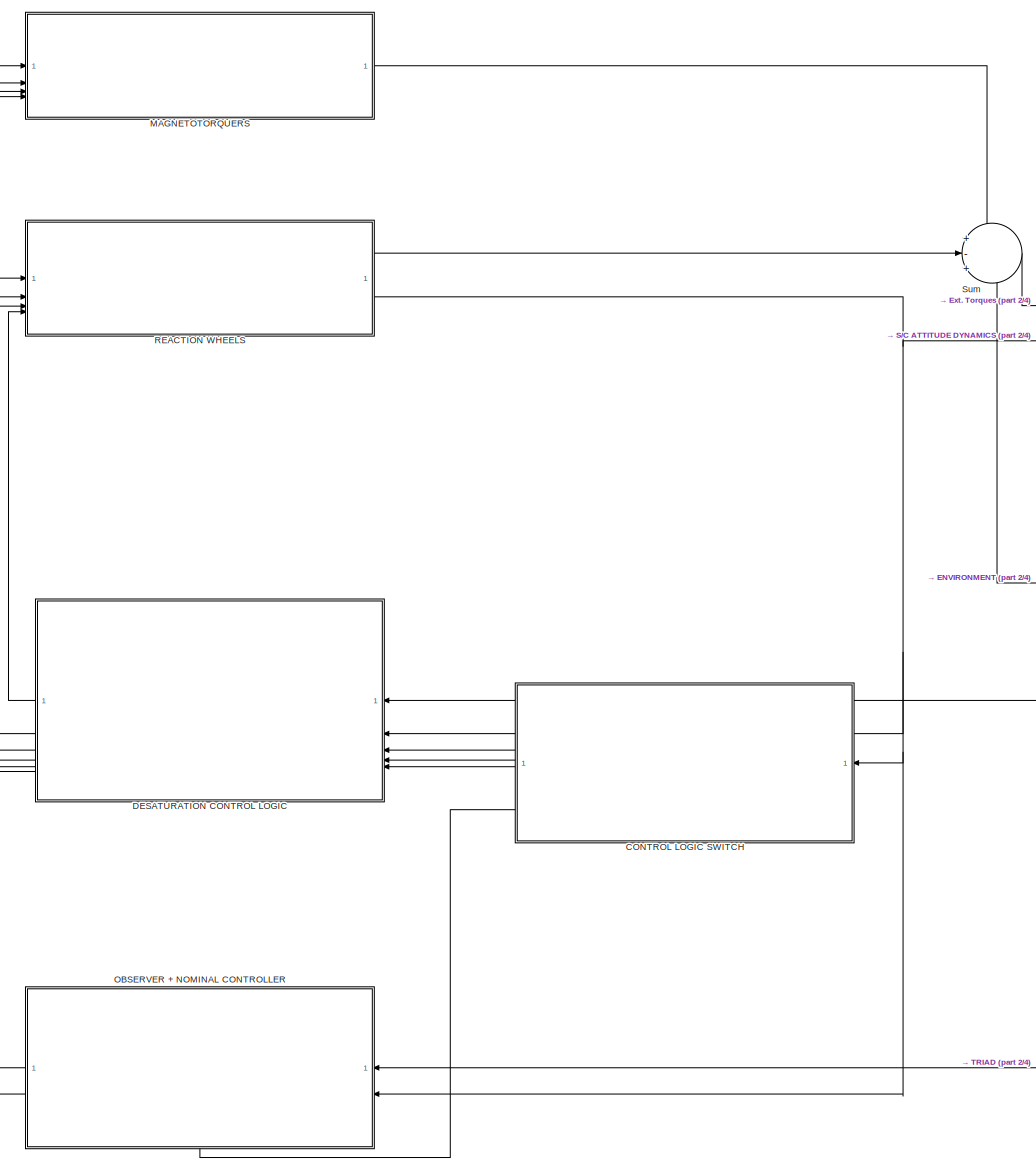
[diagram: root canvas - part 1/4, left side, full height]
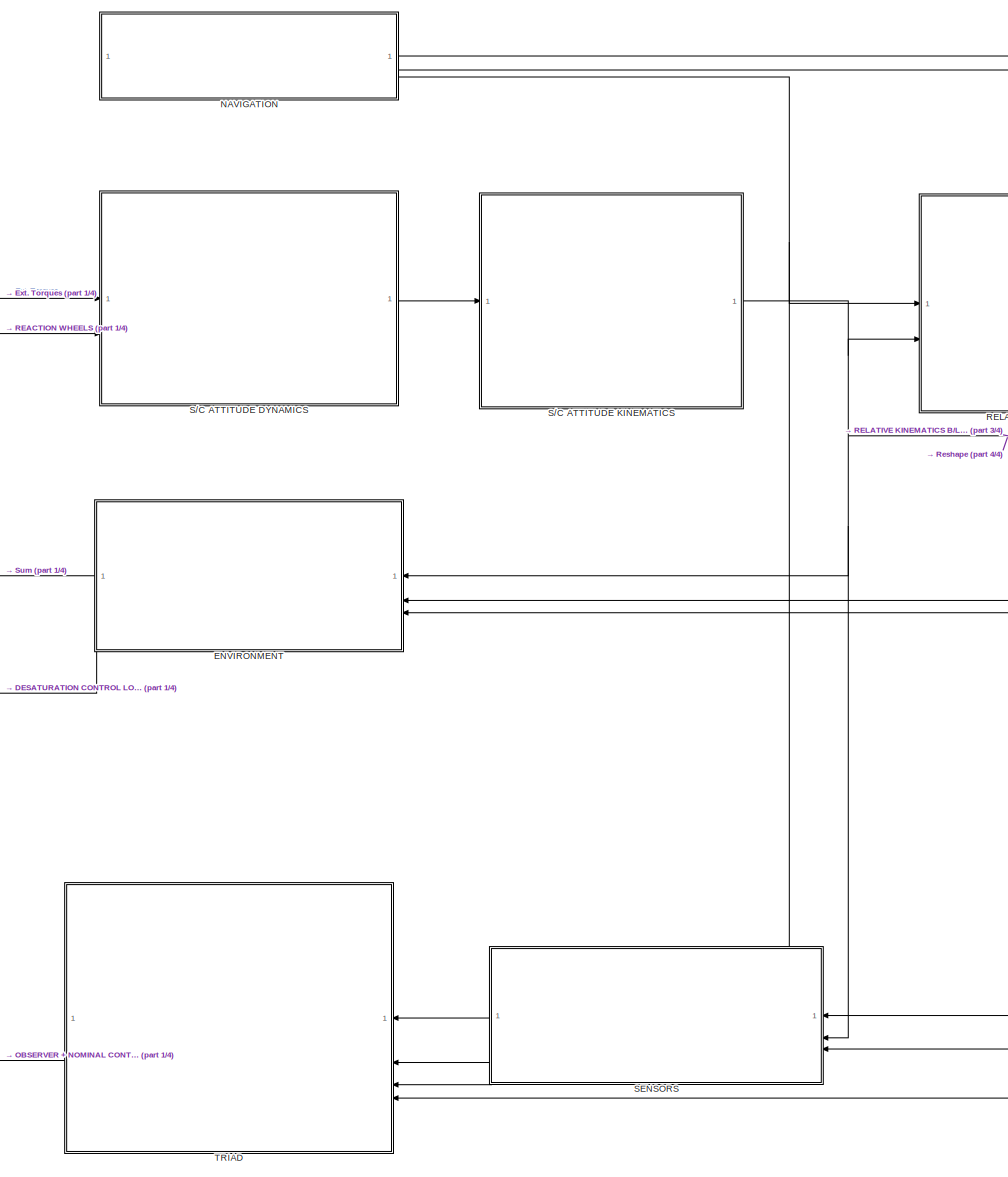
[diagram: root canvas - part 2/4, center side, full height]
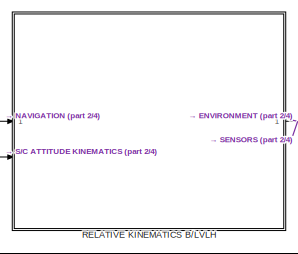
[diagram: root canvas - part 3/4, top right region]
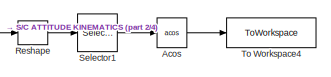
[diagram: root canvas - part 4/4, middle right region]
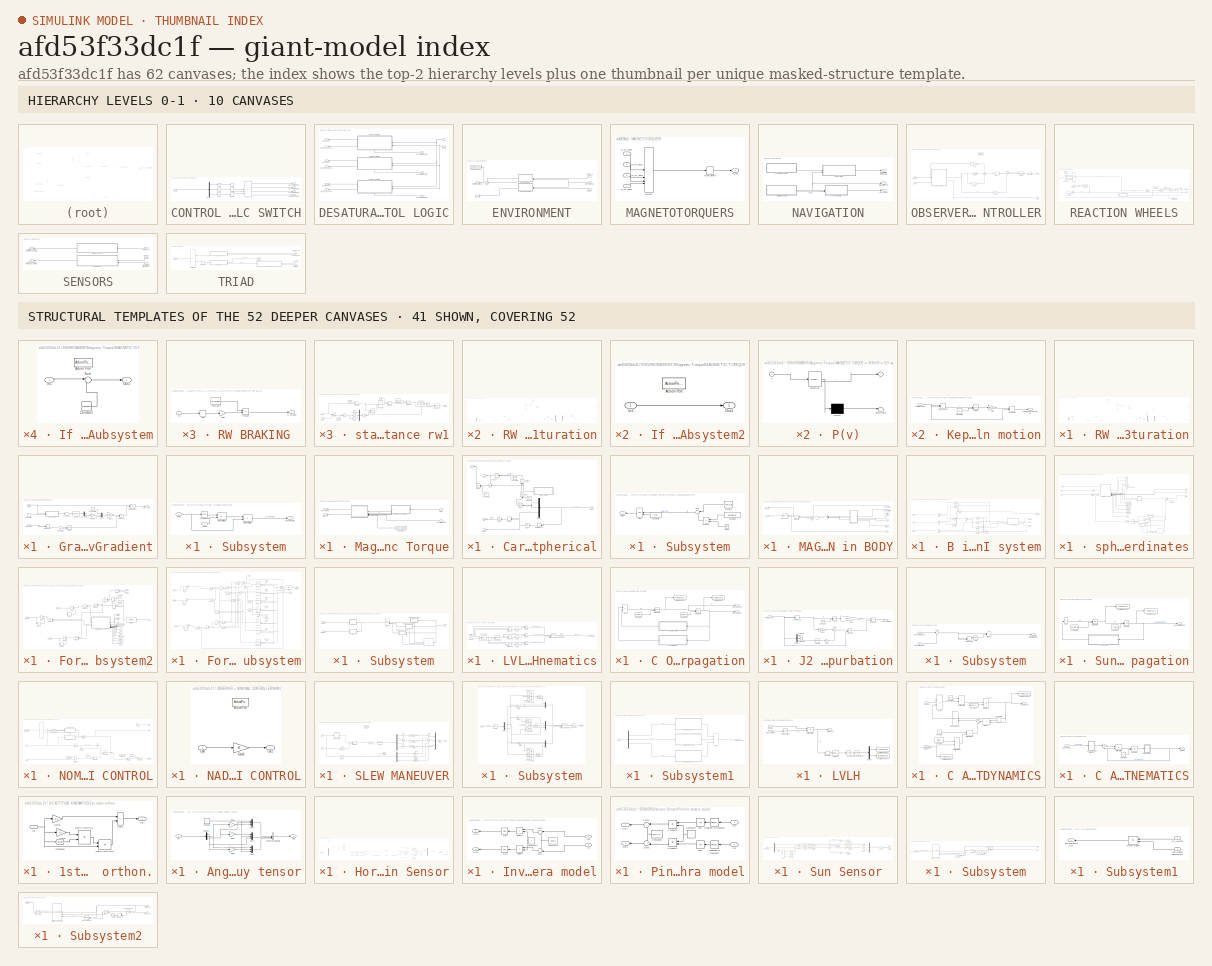
[diagram: thumbnail index - top-2 hierarchy levels (10 canvases) + 41 structural-template representatives of the remaining 52 canvases]
MODEL slx_afd53f33dc1f
KIND model
CONFIG AbsTol = auto
CONFIG EnableMultiTasking = off
CONFIG FixedStep = 0.1
CONFIG MaxStep = auto
CONFIG MinStep = auto
CONFIG RelTol = 1e-3
CONFIG SampleTimeConstraint = Unconstrained
CONFIG SolverName = ode4
CONFIG StartTime = 0.0
CONFIG StopTime = 50
BLOCK [Trigonometry] Acos
  Operator = acos
BLOCK [SubSystem] CONTROL LOGIC SWITCH
BLOCK [Abs] CONTROL LOGIC SWITCH/Abs
  SaturateOnIntegerOverflow = off
BLOCK [Abs] CONTROL LOGIC SWITCH/Abs1
  SaturateOnIntegerOverflow = off
BLOCK [Abs] CONTROL LOGIC SWITCH/Abs2
  SaturateOnIntegerOverflow = off
BLOCK [Outport] CONTROL LOGIC SWITCH/Activate Observer
  Port = 4
BLOCK [Demux] CONTROL LOGIC SWITCH/Demux
  Outputs = 3
BLOCK [Outport] CONTROL LOGIC SWITCH/Desaturation RW 1
BLOCK [Outport] CONTROL LOGIC SWITCH/Desaturation RW 2
  Port = 2
BLOCK [Outport] CONTROL LOGIC SWITCH/Desaturation RW 3
  Port = 3
BLOCK [If] CONTROL LOGIC SWITCH/If
  ElseIfExpressions = u2== 1,u3==1
  IfExpression = u1 == 1
  NumInputs = 3
BLOCK [Relay] CONTROL LOGIC SWITCH/Relay
  OffSwitchValue = 100
  OnSwitchValue = 500
BLOCK [Relay] CONTROL LOGIC SWITCH/Relay1
  OffSwitchValue = 100
  OnSwitchValue = 500
BLOCK [Relay] CONTROL LOGIC SWITCH/Relay2
  OffSwitchValue = 100
  OnSwitchValue = 500
BLOCK [Inport] CONTROL LOGIC SWITCH/om_rw
BLOCK [SubSystem] DESATURATION CONTROL LOGIC
  NameLocation = top
BLOCK [Inport] DESATURATION CONTROL LOGIC/B
  NameLocation = top
BLOCK [Inport] DESATURATION CONTROL LOGIC/Desaturation RW 1
  NameLocation = top
  Port = 3
BLOCK [Inport] DESATURATION CONTROL LOGIC/Desaturation RW 2
  NameLocation = top
  Port = 4
BLOCK [Inport] DESATURATION CONTROL LOGIC/Desaturation RW 3
  NameLocation = top
  Port = 5
BLOCK [Outport] DESATURATION CONTROL LOGIC/M_mt_des1
  NameLocation = top
  Port = 6
BLOCK [Outport] DESATURATION CONTROL LOGIC/M_mt_des2
  NameLocation = top
  Port = 5
BLOCK [Outport] DESATURATION CONTROL LOGIC/M_mt_des3
  NameLocation = top
  Port = 4
BLOCK [SubSystem] DESATURATION CONTROL LOGIC/RW 1 Desaturation
  NameLocation = top
BLOCK [ActionPort] DESATURATION CONTROL LOGIC/RW 1 Desaturation/Action Port
  ActionPortLabel = if(u1 == 1)
BLOCK [Inport] DESATURATION CONTROL LOGIC/RW 1 Desaturation/B
BLOCK [Constant] DESATURATION CONTROL LOGIC/RW 1 Desaturation/Constant1
  Value = [1/I_r;1/I_r;1/I_r]
BLOCK [Constant] DESATURATION CONTROL LOGIC/RW 1 Desaturation/Constant3
  Value = pinv_R_yz
BLOCK [Constant] DESATURATION CONTROL LOGIC/RW 1 Desaturation/Constant4
  Value = R_x
BLOCK [Reference] DESATURATION CONTROL LOGIC/RW 1 Desaturation/Cross Product1  REF=matrix_library/Cross Product
  LibrarySourceBlock = simulink/Matrix\nOperations/Cross Product
  SourceBlock = matrix_library/Cross Product
  SourceType = CrossProduct
BLOCK [Reference] DESATURATION CONTROL LOGIC/RW 1 Desaturation/Cross Product2  REF=matrix_library/Cross Product
  LibrarySourceBlock = simulink/Matrix\nOperations/Cross Product
  SourceBlock = matrix_library/Cross Product
  SourceType = CrossProduct
BLOCK [Demux] DESATURATION CONTROL LOGIC/RW 1 Desaturation/Demux
  Outputs = 3
BLOCK [Demux] DESATURATION CONTROL LOGIC/RW 1 Desaturation/Demux1
  Outputs = 2
BLOCK [Product] DESATURATION CONTROL LOGIC/RW 1 Desaturation/Divide
  Inputs = */
BLOCK [DotProduct] DESATURATION CONTROL LOGIC/RW 1 Desaturation/Dot Product
  OutDataTypeStr = Inherit: Inherit via internal rule
BLOCK [Gain] DESATURATION CONTROL LOGIC/RW 1 Desaturation/Gain
  Gain = -1
BLOCK [Outport] DESATURATION CONTROL LOGIC/RW 1 Desaturation/M_mt
BLOCK [Product] DESATURATION CONTROL LOGIC/RW 1 Desaturation/Matrix Multiply
  Multiplication = Matrix(*)
BLOCK [Product] DESATURATION CONTROL LOGIC/RW 1 Desaturation/Matrix Multiply1
  Multiplication = Matrix(*)
BLOCK [Mux] DESATURATION CONTROL LOGIC/RW 1 Desaturation/Mux
  DisplayOption = bar
  Inputs = 3
BLOCK [Product] DESATURATION CONTROL LOGIC/RW 1 Desaturation/Product
BLOCK [SubSystem] DESATURATION CONTROL LOGIC/RW 1 Desaturation/RW BRAKING
BLOCK [Constant] DESATURATION CONTROL LOGIC/RW 1 Desaturation/RW BRAKING/Constant8
  Value = M_brake
BLOCK [Gain] DESATURATION CONTROL LOGIC/RW 1 Desaturation/RW BRAKING/Gain1
  Gain = -1
BLOCK [Inport] DESATURATION CONTROL LOGIC/RW 1 Desaturation/RW BRAKING/In1
BLOCK [Outport] DESATURATION CONTROL LOGIC/RW 1 Desaturation/RW BRAKING/M_braking
BLOCK [Product] DESATURATION CONTROL LOGIC/RW 1 Desaturation/RW BRAKING/Product
BLOCK [Signum] DESATURATION CONTROL LOGIC/RW 1 Desaturation/RW BRAKING/Sign
BLOCK [Sum] DESATURATION CONTROL LOGIC/RW 1 Desaturation/Sum2
  Inputs = ++|
BLOCK [Terminator] DESATURATION CONTROL LOGIC/RW 1 Desaturation/Terminator
BLOCK [Terminator] DESATURATION CONTROL LOGIC/RW 1 Desaturation/Terminator1
BLOCK [Inport] DESATURATION CONTROL LOGIC/RW 1 Desaturation/om_rw
  Port = 2
BLOCK [Outport] DESATURATION CONTROL LOGIC/RW 1 Desaturation/om_rw_dot
  Port = 2
BLOCK [SubSystem] DESATURATION CONTROL LOGIC/RW 2 Desaturation
  NameLocation = top
BLOCK [ActionPort] DESATURATION CONTROL LOGIC/RW 2 Desaturation/Action Port
  ActionPortLabel = elseif(u2== 1)
BLOCK [Inport] DESATURATION CONTROL LOGIC/RW 2 Desaturation/B
BLOCK [Constant] DESATURATION CONTROL LOGIC/RW 2 Desaturation/Constant1
  Value = [1/I_r;1/I_r;1/I_r]
BLOCK [Constant] DESATURATION CONTROL LOGIC/RW 2 Desaturation/Constant3
  Value = pinv_R_xz
BLOCK [Constant] DESATURATION CONTROL LOGIC/RW 2 Desaturation/Constant4
  Value = R_y
BLOCK [Reference] DESATURATION CONTROL LOGIC/RW 2 Desaturation/Cross Product1  REF=matrix_library/Cross Product
  LibrarySourceBlock = simulink/Matrix\nOperations/Cross Product
  SourceBlock = matrix_library/Cross Product
  SourceType = CrossProduct
BLOCK [Reference] DESATURATION CONTROL LOGIC/RW 2 Desaturation/Cross Product2  REF=matrix_library/Cross Product
  LibrarySourceBlock = simulink/Matrix\nOperations/Cross Product
  SourceBlock = matrix_library/Cross Product
  SourceType = CrossProduct
BLOCK [Demux] DESATURATION CONTROL LOGIC/RW 2 Desaturation/Demux
  Outputs = 3
BLOCK [Demux] DESATURATION CONTROL LOGIC/RW 2 Desaturation/Demux1
  Outputs = 2
BLOCK [Product] DESATURATION CONTROL LOGIC/RW 2 Desaturation/Divide
  Inputs = */
BLOCK [DotProduct] DESATURATION CONTROL LOGIC/RW 2 Desaturation/Dot Product
  OutDataTypeStr = Inherit: Inherit via internal rule
BLOCK [Gain] DESATURATION CONTROL LOGIC/RW 2 Desaturation/Gain
  Gain = -1
BLOCK [Outport] DESATURATION CONTROL LOGIC/RW 2 Desaturation/M_mt
BLOCK [Product] DESATURATION CONTROL LOGIC/RW 2 Desaturation/Matrix Multiply
  Multiplication = Matrix(*)
BLOCK [Product] DESATURATION CONTROL LOGIC/RW 2 Desaturation/Matrix Multiply1
  Multiplication = Matrix(*)
BLOCK [Mux] DESATURATION CONTROL LOGIC/RW 2 Desaturation/Mux
  DisplayOption = bar
  Inputs = 3
BLOCK [Product] DESATURATION CONTROL LOGIC/RW 2 Desaturation/Product
BLOCK [SubSystem] DESATURATION CONTROL LOGIC/RW 2 Desaturation/RW BRAKING
BLOCK [Constant] DESATURATION CONTROL LOGIC/RW 2 Desaturation/RW BRAKING/Constant8
  Value = M_brake
BLOCK [Gain] DESATURATION CONTROL LOGIC/RW 2 Desaturation/RW BRAKING/Gain1
  Gain = -1
BLOCK [Inport] DESATURATION CONTROL LOGIC/RW 2 Desaturation/RW BRAKING/In1
BLOCK [Outport] DESATURATION CONTROL LOGIC/RW 2 Desaturation/RW BRAKING/M_braking
BLOCK [Product] DESATURATION CONTROL LOGIC/RW 2 Desaturation/RW BRAKING/Product
BLOCK [Signum] DESATURATION CONTROL LOGIC/RW 2 Desaturation/RW BRAKING/Sign
BLOCK [Sum] DESATURATION CONTROL LOGIC/RW 2 Desaturation/Sum2
  Inputs = ++|
BLOCK [Terminator] DESATURATION CONTROL LOGIC/RW 2 Desaturation/Terminator
BLOCK [Terminator] DESATURATION CONTROL LOGIC/RW 2 Desaturation/Terminator1
BLOCK [Inport] DESATURATION CONTROL LOGIC/RW 2 Desaturation/om_rw
  Port = 2
BLOCK [Outport] DESATURATION CONTROL LOGIC/RW 2 Desaturation/om_rw_dot
  Port = 2
BLOCK [SubSystem] DESATURATION CONTROL LOGIC/RW 3 Desaturation
  NameLocation = top
BLOCK [ActionPort] DESATURATION CONTROL LOGIC/RW 3 Desaturation/Action Port
  ActionPortLabel = elseif(u3==1)
BLOCK [Inport] DESATURATION CONTROL LOGIC/RW 3 Desaturation/B
BLOCK [Constant] DESATURATION CONTROL LOGIC/RW 3 Desaturation/Constant1
  Value = [1/I_r;1/I_r;1/I_r]
BLOCK [Constant] DESATURATION CONTROL LOGIC/RW 3 Desaturation/Constant3
  Value = pinv_R_xy
BLOCK [Constant] DESATURATION CONTROL LOGIC/RW 3 Desaturation/Constant4
  Value = R_z
BLOCK [Reference] DESATURATION CONTROL LOGIC/RW 3 Desaturation/Cross Product1  REF=matrix_library/Cross Product
  LibrarySourceBlock = simulink/Matrix\nOperations/Cross Product
  SourceBlock = matrix_library/Cross Product
  SourceType = CrossProduct
BLOCK [Reference] DESATURATION CONTROL LOGIC/RW 3 Desaturation/Cross Product2  REF=matrix_library/Cross Product
  LibrarySourceBlock = simulink/Matrix\nOperations/Cross Product
  SourceBlock = matrix_library/Cross Product
  SourceType = CrossProduct
BLOCK [Demux] DESATURATION CONTROL LOGIC/RW 3 Desaturation/Demux
  Outputs = 3
BLOCK [Demux] DESATURATION CONTROL LOGIC/RW 3 Desaturation/Demux1
  Outputs = 2
BLOCK [Product] DESATURATION CONTROL LOGIC/RW 3 Desaturation/Divide
  Inputs = */
BLOCK [DotProduct] DESATURATION CONTROL LOGIC/RW 3 Desaturation/Dot Product
  OutDataTypeStr = Inherit: Inherit via internal rule
BLOCK [Gain] DESATURATION CONTROL LOGIC/RW 3 Desaturation/Gain
  Gain = -1
BLOCK [Outport] DESATURATION CONTROL LOGIC/RW 3 Desaturation/M_mt
BLOCK [Product] DESATURATION CONTROL LOGIC/RW 3 Desaturation/Matrix Multiply
  Multiplication = Matrix(*)
BLOCK [Product] DESATURATION CONTROL LOGIC/RW 3 Desaturation/Matrix Multiply1
  Multiplication = Matrix(*)
BLOCK [Mux] DESATURATION CONTROL LOGIC/RW 3 Desaturation/Mux
  DisplayOption = bar
  Inputs = 3
BLOCK [Product] DESATURATION CONTROL LOGIC/RW 3 Desaturation/Product
BLOCK [SubSystem] DESATURATION CONTROL LOGIC/RW 3 Desaturation/RW BRAKING
BLOCK [Constant] DESATURATION CONTROL LOGIC/RW 3 Desaturation/RW BRAKING/Constant8
  Value = M_brake
BLOCK [Gain] DESATURATION CONTROL LOGIC/RW 3 Desaturation/RW BRAKING/Gain1
  Gain = -1
BLOCK [Inport] DESATURATION CONTROL LOGIC/RW 3 Desaturation/RW BRAKING/In1
BLOCK [Outport] DESATURATION CONTROL LOGIC/RW 3 Desaturation/RW BRAKING/M_braking
BLOCK [Product] DESATURATION CONTROL LOGIC/RW 3 Desaturation/RW BRAKING/Product
BLOCK [Signum] DESATURATION CONTROL LOGIC/RW 3 Desaturation/RW BRAKING/Sign
BLOCK [Scope] DESATURATION CONTROL LOGIC/RW 3 Desaturation/Scope
  Floating = off
  NumInputPorts = 1
  ScopeSpecificationString = Simulink.scopes.TimeScopeBlockCfg('CurrentConfiguration', extmgr.ConfigurationSet(extmgr.Configuration('Core','General UI',true),extmgr.Configuration('Core','Source UI',true),extmgr.Configuration('Sources','WiredSimulink',true,'DataLoggingVariableName','ScopeData2'),extmgr.Configuration('Visuals','Time Domain',true,'SerializedDisplays',{struct('MinYLimReal','-0.00014','MaxYLimReal','0.00024','YLab...<+1383ch>
BLOCK [Scope] DESATURATION CONTROL LOGIC/RW 3 Desaturation/Scope1
  Floating = off
  NumInputPorts = 1
  ScopeSpecificationString = Simulink.scopes.TimeScopeBlockCfg('CurrentConfiguration', extmgr.ConfigurationSet(extmgr.Configuration('Core','General UI',true),extmgr.Configuration('Core','Source UI',true),extmgr.Configuration('Sources','WiredSimulink',true,'DataLoggingVariableName','ScopeData3'),extmgr.Configuration('Visuals','Time Domain',true,'SerializedDisplays',{struct('MinYLimReal','-0.00022','MaxYLimReal','0.00021','YLab...<+1510ch>
BLOCK [Scope] DESATURATION CONTROL LOGIC/RW 3 Desaturation/Scope2
  Floating = off
  NumInputPorts = 1
  ScopeSpecificationString = Simulink.scopes.TimeScopeBlockCfg('CurrentConfiguration', extmgr.ConfigurationSet(extmgr.Configuration('Core','General UI',true),extmgr.Configuration('Core','Source UI',true),extmgr.Configuration('Sources','WiredSimulink',true,'DataLoggingVariableName','ScopeData4'),extmgr.Configuration('Visuals','Time Domain',true,'SerializedDisplays',{struct('MinYLimReal','-0.00012','MaxYLimReal','0.00012','YLab...<+1398ch>
BLOCK [Sum] DESATURATION CONTROL LOGIC/RW 3 Desaturation/Sum2
  Inputs = ++|
BLOCK [Terminator] DESATURATION CONTROL LOGIC/RW 3 Desaturation/Terminator
BLOCK [Terminator] DESATURATION CONTROL LOGIC/RW 3 Desaturation/Terminator1
BLOCK [Inport] DESATURATION CONTROL LOGIC/RW 3 Desaturation/om_rw
  Port = 2
BLOCK [Outport] DESATURATION CONTROL LOGIC/RW 3 Desaturation/om_rw_dot
  Port = 2
BLOCK [Inport] DESATURATION CONTROL LOGIC/om_rw
  NameLocation = top
  Port = 2
BLOCK [Outport] DESATURATION CONTROL LOGIC/om_rw_dot_des1
  NameLocation = top
  Port = 3
BLOCK [Outport] DESATURATION CONTROL LOGIC/om_rw_dot_des2
  NameLocation = top
  Port = 2
BLOCK [Outport] DESATURATION CONTROL LOGIC/om_rw_dot_des3
  NameLocation = top
BLOCK [SubSystem] ENVIRONMENT
BLOCK [Inport] ENVIRONMENT/Att_B\ECI
  NameLocation = top
BLOCK [Inport] ENVIRONMENT/Att_B\LVLH
  Port = 2
BLOCK [SubSystem] ENVIRONMENT/Gravity Gradient
  NameLocation = top
BLOCK [Inport] ENVIRONMENT/Gravity Gradient/Att_B\L
BLOCK [Constant] ENVIRONMENT/Gravity Gradient/Constant
  Value = -1.5
BLOCK [Constant] ENVIRONMENT/Gravity Gradient/Constant7
  Value = I
BLOCK [Constant] ENVIRONMENT/Gravity Gradient/Constant8
  Value = 0
BLOCK [Demux] ENVIRONMENT/Gravity Gradient/Demux
  Outputs = 2
BLOCK [DotProduct] ENVIRONMENT/Gravity Gradient/Dot Product
  OutDataTypeStr = Inherit: Inherit via internal rule
BLOCK [Outport] ENVIRONMENT/Gravity Gradient/GG_Torque
BLOCK [Gain] ENVIRONMENT/Gravity Gradient/Gain2
  Gain = 3*mu_E
BLOCK [Gain] ENVIRONMENT/Gravity Gradient/Gain3
  Gain = -1
BLOCK [Product] ENVIRONMENT/Gravity Gradient/Matrix Multiply5
  Multiplication = Matrix(*)
BLOCK [Mux] ENVIRONMENT/Gravity Gradient/Mux4
  DisplayOption = bar
  Inputs = 3
BLOCK [Math] ENVIRONMENT/Gravity Gradient/Power
  Operator = pow
BLOCK [Product] ENVIRONMENT/Gravity Gradient/Product
BLOCK [Reshape] ENVIRONMENT/Gravity Gradient/Reshape
BLOCK [Inport] ENVIRONMENT/Gravity Gradient/S//C Position
  Port = 2
BLOCK [Selector] ENVIRONMENT/Gravity Gradient/Selector
  IndexOptions = Index vector (dialog)
  Indices = [2,3]
  InputPortWidth = 9
  OutputSizes = 1
BLOCK [SubSystem] ENVIRONMENT/Gravity Gradient/Subsystem
BLOCK [Inport] ENVIRONMENT/Gravity Gradient/Subsystem/Att_B\L
BLOCK [Outport] ENVIRONMENT/Gravity Gradient/Subsystem/I LVLH FRAME
BLOCK [Inport] ENVIRONMENT/Gravity Gradient/Subsystem/I_Body
  Port = 2
BLOCK [Product] ENVIRONMENT/Gravity Gradient/Subsystem/Matrix Multiply3
  Multiplication = Matrix(*)
BLOCK [Product] ENVIRONMENT/Gravity Gradient/Subsystem/Matrix Multiply4
  Multiplication = Matrix(*)
BLOCK [Math] ENVIRONMENT/Gravity Gradient/Subsystem/Transpose2
  Operator = transpose
BLOCK [Outport] ENVIRONMENT/Mag_fld
  NameLocation = top
  Port = 2
BLOCK [SubSystem] ENVIRONMENT/Magnetic Torque
  NameLocation = top
BLOCK [SubSystem] ENVIRONMENT/Magnetic Torque/Cartesian 2 spherical
BLOCK [Trigonometry] ENVIRONMENT/Magnetic Torque/Cartesian 2 spherical/Asin
  NameLocation = top
  Operator = asin
BLOCK [Trigonometry] ENVIRONMENT/Magnetic Torque/Cartesian 2 spherical/Atan2
  NameLocation = top
  Operator = atan2
BLOCK [Constant] ENVIRONMENT/Magnetic Torque/Cartesian 2 spherical/Constant
  NameLocation = top
  Value = 2*pi
BLOCK [Constant] ENVIRONMENT/Magnetic Torque/Cartesian 2 spherical/Constant1
  NameLocation = top
  Value = 2*pi
BLOCK [Constant] ENVIRONMENT/Magnetic Torque/Cartesian 2 spherical/Constant2
  NameLocation = top
  Value = 2*pi
BLOCK [Demux] ENVIRONMENT/Magnetic Torque/Cartesian 2 spherical/Demux
  NameLocation = top
  Outputs = 3
BLOCK [Product] ENVIRONMENT/Magnetic Torque/Cartesian 2 spherical/Divide
  Inputs = */
  NameLocation = top
BLOCK [DotProduct] ENVIRONMENT/Magnetic Torque/Cartesian 2 spherical/Dot Product
  NameLocation = top
  OutDataTypeStr = Inherit: Inherit via internal rule
BLOCK [Outport] ENVIRONMENT/Magnetic Torque/Cartesian 2 spherical/LST
  NameLocation = top
BLOCK [Outport] ENVIRONMENT/Magnetic Torque/Cartesian 2 spherical/Long
  NameLocation = top
  Port = 2
BLOCK [Math] ENVIRONMENT/Magnetic Torque/Cartesian 2 spherical/Mod
  NameLocation = right
  Operator = mod
BLOCK [Math] ENVIRONMENT/Magnetic Torque/Cartesian 2 spherical/Mod1
  NameLocation = top
  Operator = mod
BLOCK [Math] ENVIRONMENT/Magnetic Torque/Cartesian 2 spherical/Mod2
  NameLocation = top
  Operator = mod
BLOCK [Sqrt] ENVIRONMENT/Magnetic Torque/Cartesian 2 spherical/Sqrt
  NameLocation = top
BLOCK [SubSystem] ENVIRONMENT/Magnetic Torque/Cartesian 2 spherical/Subsystem
  NameLocation = top
BLOCK [Clock] ENVIRONMENT/Magnetic Torque/Cartesian 2 spherical/Subsystem/Clock
  NameLocation = top
BLOCK [Constant] ENVIRONMENT/Magnetic Torque/Cartesian 2 spherical/Subsystem/Constant
  NameLocation = top
  Value = theta_G0
BLOCK [Constant] ENVIRONMENT/Magnetic Torque/Cartesian 2 spherical/Subsystem/Constant1
  NameLocation = top
  Value = omega_E
BLOCK [Constant] ENVIRONMENT/Magnetic Torque/Cartesian 2 spherical/Subsystem/Constant2
  NameLocation = top
  Value = 2*pi
BLOCK [Math] ENVIRONMENT/Magnetic Torque/Cartesian 2 spherical/Subsystem/Mod
  NameLocation = top
  Operator = mod
BLOCK [Outport] ENVIRONMENT/Magnetic Torque/Cartesian 2 spherical/Subsystem/Output
  NameLocation = top
BLOCK [Product] ENVIRONMENT/Magnetic Torque/Cartesian 2 spherical/Subsystem/Product
  NameLocation = top
BLOCK [Sum] ENVIRONMENT/Magnetic Torque/Cartesian 2 spherical/Subsystem/Sum
  Inputs = |++
  NameLocation = top
BLOCK [Sum] ENVIRONMENT/Magnetic Torque/Cartesian 2 spherical/Subtract
  IconShape = rectangular
  Inputs = +-
  NameLocation = right
BLOCK [Sum] ENVIRONMENT/Magnetic Torque/Cartesian 2 spherical/Sum
  Inputs = ++|
  NameLocation = top
BLOCK [Inport] ENVIRONMENT/Magnetic Torque/Cartesian 2 spherical/[km]
  NameLocation = top
BLOCK [Outport] ENVIRONMENT/Magnetic Torque/Cartesian 2 spherical/lat
  NameLocation = top
  Port = 4
BLOCK [Outport] ENVIRONMENT/Magnetic Torque/Cartesian 2 spherical/radius
  NameLocation = top
  Port = 3
BLOCK [Constant] ENVIRONMENT/Magnetic Torque/Constant1
  NameLocation = top
  Value = m_sc_body
BLOCK [SubSystem] ENVIRONMENT/Magnetic Torque/MAGNETIC TORQUE in BODY
  NameLocation = top
BLOCK [Concatenate] ENVIRONMENT/Magnetic Torque/MAGNETIC TORQUE in BODY/B
  NameLocation = top
  NumInputs = 3
BLOCK [SubSystem] ENVIRONMENT/Magnetic Torque/MAGNETIC TORQUE in BODY/B in ECI system
  NameLocation = top
BLOCK [Product] ENVIRONMENT/Magnetic Torque/MAGNETIC TORQUE in BODY/B in ECI system/Bphi cos
  NameLocation = top
BLOCK [Product] ENVIRONMENT/Magnetic Torque/MAGNETIC TORQUE in BODY/B in ECI system/Bphi sin
  NameLocation = top
BLOCK [Product] ENVIRONMENT/Magnetic Torque/MAGNETIC TORQUE in BODY/B in ECI system/Br cos
  NameLocation = top
BLOCK [Product] ENVIRONMENT/Magnetic Torque/MAGNETIC TORQUE in BODY/B in ECI system/Br sin
  NameLocation = top
BLOCK [Product] ENVIRONMENT/Magnetic Torque/MAGNETIC TORQUE in BODY/B in ECI system/Btheta cos
  NameLocation = top
BLOCK [Product] ENVIRONMENT/Magnetic Torque/MAGNETIC TORQUE in BODY/B in ECI system/Btheta sin
  NameLocation = top
BLOCK [Outport] ENVIRONMENT/Magnetic Torque/MAGNETIC TORQUE in BODY/B in ECI system/Out1
BLOCK [Outport] ENVIRONMENT/Magnetic Torque/MAGNETIC TORQUE in BODY/B in ECI system/Out2
  Port = 2
BLOCK [Outport] ENVIRONMENT/Magnetic Torque/MAGNETIC TORQUE in BODY/B in ECI system/Out3
  Port = 3
BLOCK [Product] ENVIRONMENT/Magnetic Torque/MAGNETIC TORQUE in BODY/B in ECI system/Product
  NameLocation = top
BLOCK [Product] ENVIRONMENT/Magnetic Torque/MAGNETIC TORQUE in BODY/B in ECI system/Product1
  NameLocation = top
BLOCK [Trigonometry] ENVIRONMENT/Magnetic Torque/MAGNETIC TORQUE in BODY/B in ECI system/SinCos
  NameLocation = top
  Operator = sincos
BLOCK [Trigonometry] ENVIRONMENT/Magnetic Torque/MAGNETIC TORQUE in BODY/B in ECI system/SinCos1
  NameLocation = top
  Operator = sincos
BLOCK [Sum] ENVIRONMENT/Magnetic Torque/MAGNETIC TORQUE in BODY/B in ECI system/Sum
  IconShape = rectangular
  Inputs = |++
  NameLocation = top
BLOCK [Sum] ENVIRONMENT/Magnetic Torque/MAGNETIC TORQUE in BODY/B in ECI system/Sum1
  IconShape = rectangular
  Inputs = |-+
  NameLocation = top
BLOCK [Sum] ENVIRONMENT/Magnetic Torque/MAGNETIC TORQUE in BODY/B in ECI system/Sum2
  IconShape = rectangular
  Inputs = |++
  NameLocation = top
BLOCK [Sum] ENVIRONMENT/Magnetic Torque/MAGNETIC TORQUE in BODY/B in ECI system/Sum3
  IconShape = rectangular
  Inputs = |++
  NameLocation = top
BLOCK [Inport] ENVIRONMENT/Magnetic Torque/MAGNETIC TORQUE in BODY/B in ECI system/latitude
  Port = 4
BLOCK [Inport] ENVIRONMENT/Magnetic Torque/MAGNETIC TORQUE in BODY/B in ECI system/local siderial time
BLOCK [Inport] ENVIRONMENT/Magnetic Torque/MAGNETIC TORQUE in BODY/B in ECI system/longitude
  Port = 2
BLOCK [Inport] ENVIRONMENT/Magnetic Torque/MAGNETIC TORQUE in BODY/B in ECI system/r
  Port = 3
BLOCK [SubSystem] ENVIRONMENT/Magnetic Torque/MAGNETIC TORQUE in BODY/B in ECI system/spherical coordinates
  NameLocation = top
BLOCK [Constant] ENVIRONMENT/Magnetic Torque/MAGNETIC TORQUE in BODY/B in ECI system/spherical coordinates/ (nxm)
  NameLocation = top
  Value = g_nm
BLOCK [Constant] ENVIRONMENT/Magnetic Torque/MAGNETIC TORQUE in BODY/B in ECI system/spherical coordinates/(nxm)
  NameLocation = top
  Value = h_nm
BLOCK [Outport] ENVIRONMENT/Magnetic Torque/MAGNETIC TORQUE in BODY/B in ECI system/spherical coordinates/B_p
  Port = 3
BLOCK [Outport] ENVIRONMENT/Magnetic Torque/MAGNETIC TORQUE in BODY/B in ECI system/spherical coordinates/B_r
BLOCK [Outport] ENVIRONMENT/Magnetic Torque/MAGNETIC TORQUE in BODY/B in ECI system/spherical coordinates/B_t
  Port = 2
BLOCK [Constant] ENVIRONMENT/Magnetic Torque/MAGNETIC TORQUE in BODY/B in ECI system/spherical coordinates/Constant11
  NameLocation = top
  Value = pi/2
BLOCK [Constant] ENVIRONMENT/Magnetic Torque/MAGNETIC TORQUE in BODY/B in ECI system/spherical coordinates/Constant12
  NameLocation = top
  Value = smith_norm
BLOCK [Constant] ENVIRONMENT/Magnetic Torque/MAGNETIC TORQUE in BODY/B in ECI system/spherical coordinates/Constant13
  NameLocation = top
  Value = correct_h
BLOCK [Constant] ENVIRONMENT/Magnetic Torque/MAGNETIC TORQUE in BODY/B in ECI system/spherical coordinates/Constant14
  NameLocation = top
  Value = correct_g
BLOCK [Product] ENVIRONMENT/Magnetic Torque/MAGNETIC TORQUE in BODY/B in ECI system/spherical coordinates/Divide
  Inputs = */
  NameLocation = top
BLOCK [Constant] ENVIRONMENT/Magnetic Torque/MAGNETIC TORQUE in BODY/B in ECI system/spherical coordinates/Earth's Radius [km]
  NameLocation = top
  Value = 6371.2
BLOCK [SubSystem] ENVIRONMENT/Magnetic Torque/MAGNETIC TORQUE in BODY/B in ECI system/spherical coordinates/For Iterator Subsystem2
  NameLocation = top
  TreatAsAtomicUnit = on
BLOCK [Outport] ENVIRONMENT/Magnetic Torque/MAGNETIC TORQUE in BODY/B in ECI system/spherical coordinates/For Iterator Subsystem2/B_phi
  NameLocation = top
  Port = 3
BLOCK [Outport] ENVIRONMENT/Magnetic Torque/MAGNETIC TORQUE in BODY/B in ECI system/spherical coordinates/For Iterator Subsystem2/B_r
  NameLocation = top
BLOCK [Outport] ENVIRONMENT/Magnetic Torque/MAGNETIC TORQUE in BODY/B in ECI system/spherical coordinates/For Iterator Subsystem2/B_theta
  NameLocation = top
  Port = 2
BLOCK [Constant] ENVIRONMENT/Magnetic Torque/MAGNETIC TORQUE in BODY/B in ECI system/spherical coordinates/For Iterator Subsystem2/Constant
  NameLocation = top
BLOCK [Constant] ENVIRONMENT/Magnetic Torque/MAGNETIC TORQUE in BODY/B in ECI system/spherical coordinates/For Iterator Subsystem2/Constant1
  NameLocation = top
  Value = 2
BLOCK [Delay] ENVIRONMENT/Magnetic Torque/MAGNETIC TORQUE in BODY/B in ECI system/spherical coordinates/For Iterator Subsystem2/Delay
  DelayLength = 1
  InitialCondition = 0
  InputPortMap = u0
BLOCK [Delay] ENVIRONMENT/Magnetic Torque/MAGNETIC TORQUE in BODY/B in ECI system/spherical coordinates/For Iterator Subsystem2/Delay1
  DelayLength = 1
  InitialCondition = 0
  InputPortMap = u0
BLOCK [Delay] ENVIRONMENT/Magnetic Torque/MAGNETIC TORQUE in BODY/B in ECI system/spherical coordinates/For Iterator Subsystem2/Delay2
  DelayLength = 1
  InitialCondition = 0
  InputPortMap = u0
BLOCK [Product] ENVIRONMENT/Magnetic Torque/MAGNETIC TORQUE in BODY/B in ECI system/spherical coordinates/For Iterator Subsystem2/Divide
  Inputs = */
  NameLocation = top
BLOCK [ForIterator] ENVIRONMENT/Magnetic Torque/MAGNETIC TORQUE in BODY/B in ECI system/spherical coordinates/For Iterator Subsystem2/For Iterator
  IterationSource = external
  NameLocation = top
  ResetStates = reset
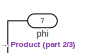
[diagram: ENVIRONMENT/Magnetic Torque/MAGNETIC TORQUE in BODY/B in ECI system/spherical coordinates/For Iterator Subsystem2/For Iterator Subsystem - part 1/3, top center region]
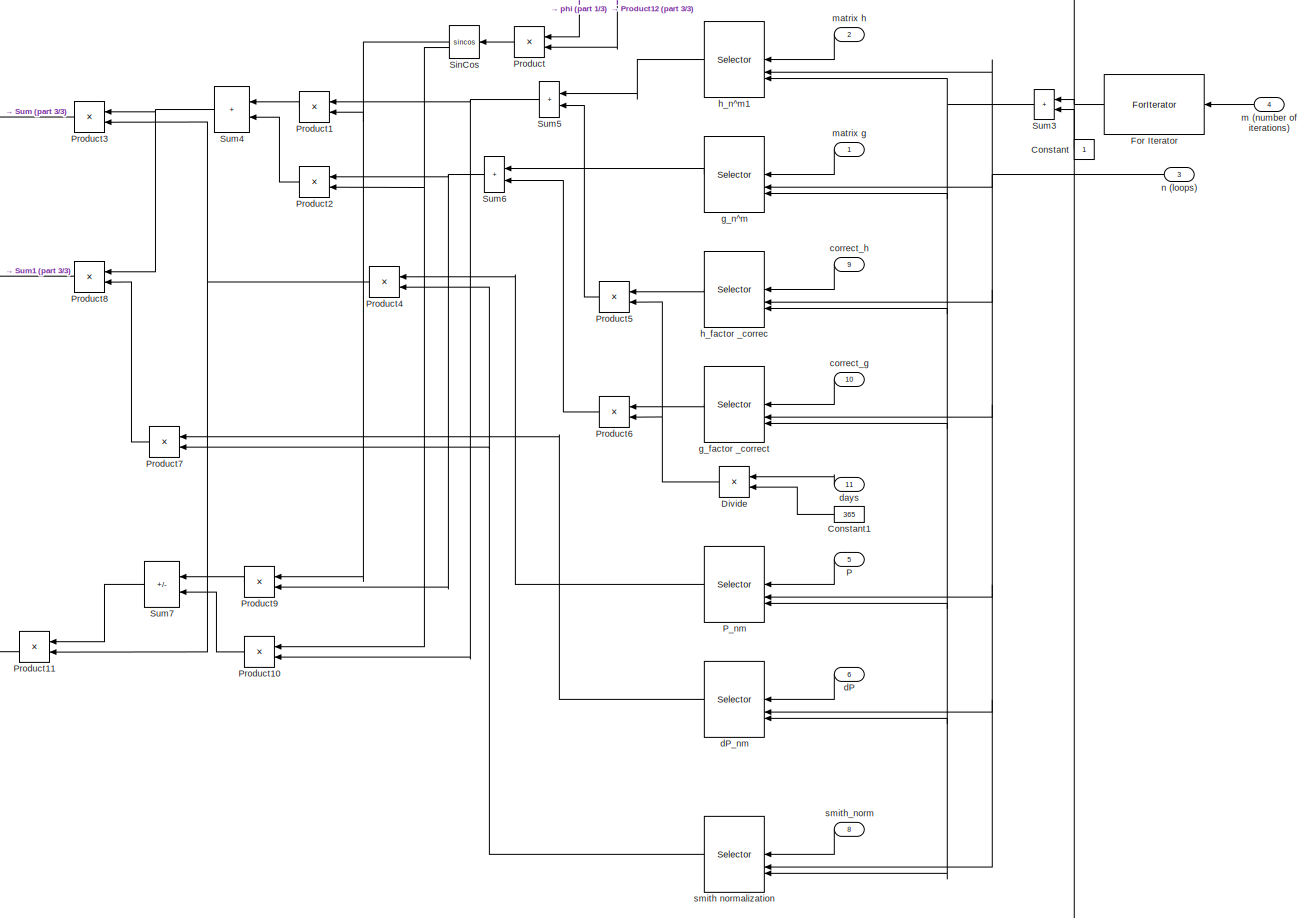
[diagram: ENVIRONMENT/Magnetic Torque/MAGNETIC TORQUE in BODY/B in ECI system/spherical coordinates/For Iterator Subsystem2/For Iterator Subsystem - part 2/3, most of the canvas]
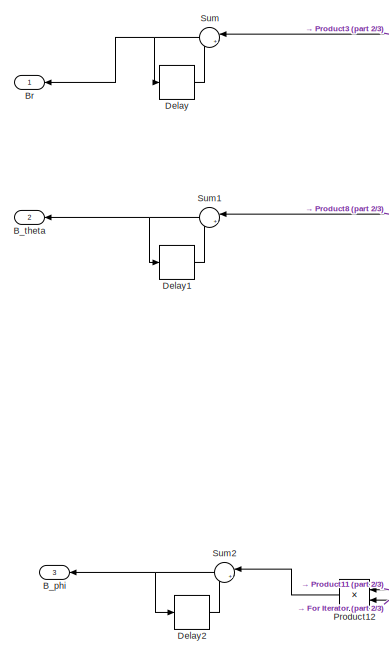
[diagram: ENVIRONMENT/Magnetic Torque/MAGNETIC TORQUE in BODY/B in ECI system/spherical coordinates/For Iterator Subsystem2/For Iterator Subsystem - part 3/3, middle left region]
BLOCK [SubSystem] ENVIRONMENT/Magnetic Torque/MAGNETIC TORQUE in BODY/B in ECI system/spherical coordinates/For Iterator Subsystem2/For Iterator Subsystem
  NameLocation = top
  TreatAsAtomicUnit = on
BLOCK [Outport] ENVIRONMENT/Magnetic Torque/MAGNETIC TORQUE in BODY/B in ECI system/spherical coordinates/For Iterator Subsystem2/For Iterator Subsystem/B_phi
  NameLocation = top
  Port = 3
BLOCK [Outport] ENVIRONMENT/Magnetic Torque/MAGNETIC TORQUE in BODY/B in ECI system/spherical coordinates/For Iterator Subsystem2/For Iterator Subsystem/B_theta
  NameLocation = top
  Port = 2
BLOCK [Outport] ENVIRONMENT/Magnetic Torque/MAGNETIC TORQUE in BODY/B in ECI system/spherical coordinates/For Iterator Subsystem2/For Iterator Subsystem/Br
  NameLocation = top
BLOCK [Constant] ENVIRONMENT/Magnetic Torque/MAGNETIC TORQUE in BODY/B in ECI system/spherical coordinates/For Iterator Subsystem2/For Iterator Subsystem/Constant
  NameLocation = top
BLOCK [Constant] ENVIRONMENT/Magnetic Torque/MAGNETIC TORQUE in BODY/B in ECI system/spherical coordinates/For Iterator Subsystem2/For Iterator Subsystem/Constant1
  NameLocation = top
  Value = 365
BLOCK [Delay] ENVIRONMENT/Magnetic Torque/MAGNETIC TORQUE in BODY/B in ECI system/spherical coordinates/For Iterator Subsystem2/For Iterator Subsystem/Delay
  DelayLength = 1
  InitialCondition = 0
  InputPortMap = u0
BLOCK [Delay] ENVIRONMENT/Magnetic Torque/MAGNETIC TORQUE in BODY/B in ECI system/spherical coordinates/For Iterator Subsystem2/For Iterator Subsystem/Delay1
  DelayLength = 1
  InitialCondition = 0
  InputPortMap = u0
BLOCK [Delay] ENVIRONMENT/Magnetic Torque/MAGNETIC TORQUE in BODY/B in ECI system/spherical coordinates/For Iterator Subsystem2/For Iterator Subsystem/Delay2
  DelayLength = 1
  InitialCondition = 0
  InputPortMap = u0
BLOCK [Product] ENVIRONMENT/Magnetic Torque/MAGNETIC TORQUE in BODY/B in ECI system/spherical coordinates/For Iterator Subsystem2/For Iterator Subsystem/Divide
  Inputs = */
  NameLocation = top
BLOCK [ForIterator] ENVIRONMENT/Magnetic Torque/MAGNETIC TORQUE in BODY/B in ECI system/spherical coordinates/For Iterator Subsystem2/For Iterator Subsystem/For Iterator
  IndexMode = Zero-based
  IterationSource = external
  NameLocation = top
  ResetStates = reset
BLOCK [Inport] ENVIRONMENT/Magnetic Torque/MAGNETIC TORQUE in BODY/B in ECI system/spherical coordinates/For Iterator Subsystem2/For Iterator Subsystem/P
  NameLocation = top
  Port = 5
BLOCK [Selector] ENVIRONMENT/Magnetic Torque/MAGNETIC TORQUE in BODY/B in ECI system/spherical coordinates/For Iterator Subsystem2/For Iterator Subsystem/P_nm
  IndexOptions = Starting index (port),Starting index (port)
  Indices = [1 3],1
  InputPortWidth = 6
  NameLocation = top
  NumberOfDimensions = 2
  OutputSizes = 1,1
BLOCK [Product] ENVIRONMENT/Magnetic Torque/MAGNETIC TORQUE in BODY/B in ECI system/spherical coordinates/For Iterator Subsystem2/For Iterator Subsystem/Product
  NameLocation = top
BLOCK [Product] ENVIRONMENT/Magnetic Torque/MAGNETIC TORQUE in BODY/B in ECI system/spherical coordinates/For Iterator Subsystem2/For Iterator Subsystem/Product1
  NameLocation = top
BLOCK [Product] ENVIRONMENT/Magnetic Torque/MAGNETIC TORQUE in BODY/B in ECI system/spherical coordinates/For Iterator Subsystem2/For Iterator Subsystem/Product10
  NameLocation = top
BLOCK [Product] ENVIRONMENT/Magnetic Torque/MAGNETIC TORQUE in BODY/B in ECI system/spherical coordinates/For Iterator Subsystem2/For Iterator Subsystem/Product11
  NameLocation = top
BLOCK [Product] ENVIRONMENT/Magnetic Torque/MAGNETIC TORQUE in BODY/B in ECI system/spherical coordinates/For Iterator Subsystem2/For Iterator Subsystem/Product12
  NameLocation = top
BLOCK [Product] ENVIRONMENT/Magnetic Torque/MAGNETIC TORQUE in BODY/B in ECI system/spherical coordinates/For Iterator Subsystem2/For Iterator Subsystem/Product2
  NameLocation = top
BLOCK [Product] ENVIRONMENT/Magnetic Torque/MAGNETIC TORQUE in BODY/B in ECI system/spherical coordinates/For Iterator Subsystem2/For Iterator Subsystem/Product3
  NameLocation = top
BLOCK [Product] ENVIRONMENT/Magnetic Torque/MAGNETIC TORQUE in BODY/B in ECI system/spherical coordinates/For Iterator Subsystem2/For Iterator Subsystem/Product4
  NameLocation = top
BLOCK [Product] ENVIRONMENT/Magnetic Torque/MAGNETIC TORQUE in BODY/B in ECI system/spherical coordinates/For Iterator Subsystem2/For Iterator Subsystem/Product5
  NameLocation = top
BLOCK [Product] ENVIRONMENT/Magnetic Torque/MAGNETIC TORQUE in BODY/B in ECI system/spherical coordinates/For Iterator Subsystem2/For Iterator Subsystem/Product6
  NameLocation = top
BLOCK [Product] ENVIRONMENT/Magnetic Torque/MAGNETIC TORQUE in BODY/B in ECI system/spherical coordinates/For Iterator Subsystem2/For Iterator Subsystem/Product7
  NameLocation = top
BLOCK [Product] ENVIRONMENT/Magnetic Torque/MAGNETIC TORQUE in BODY/B in ECI system/spherical coordinates/For Iterator Subsystem2/For Iterator Subsystem/Product8
  NameLocation = top
BLOCK [Product] ENVIRONMENT/Magnetic Torque/MAGNETIC TORQUE in BODY/B in ECI system/spherical coordinates/For Iterator Subsystem2/For Iterator Subsystem/Product9
  NameLocation = top
BLOCK [Trigonometry] ENVIRONMENT/Magnetic Torque/MAGNETIC TORQUE in BODY/B in ECI system/spherical coordinates/For Iterator Subsystem2/For Iterator Subsystem/SinCos
  NameLocation = top
  Operator = sincos
BLOCK [Sum] ENVIRONMENT/Magnetic Torque/MAGNETIC TORQUE in BODY/B in ECI system/spherical coordinates/For Iterator Subsystem2/For Iterator Subsystem/Sum
  Inputs = |++
  NameLocation = top
BLOCK [Sum] ENVIRONMENT/Magnetic Torque/MAGNETIC TORQUE in BODY/B in ECI system/spherical coordinates/For Iterator Subsystem2/For Iterator Subsystem/Sum1
  Inputs = |++
  NameLocation = top
BLOCK [Sum] ENVIRONMENT/Magnetic Torque/MAGNETIC TORQUE in BODY/B in ECI system/spherical coordinates/For Iterator Subsystem2/For Iterator Subsystem/Sum2
  Inputs = |++
  NameLocation = top
BLOCK [Sum] ENVIRONMENT/Magnetic Torque/MAGNETIC TORQUE in BODY/B in ECI system/spherical coordinates/For Iterator Subsystem2/For Iterator Subsystem/Sum3
  IconShape = rectangular
  Inputs = |++
  NameLocation = top
BLOCK [Sum] ENVIRONMENT/Magnetic Torque/MAGNETIC TORQUE in BODY/B in ECI system/spherical coordinates/For Iterator Subsystem2/For Iterator Subsystem/Sum4
  IconShape = rectangular
  Inputs = |++
  NameLocation = top
BLOCK [Sum] ENVIRONMENT/Magnetic Torque/MAGNETIC TORQUE in BODY/B in ECI system/spherical coordinates/For Iterator Subsystem2/For Iterator Subsystem/Sum5
  IconShape = rectangular
  Inputs = |++
  NameLocation = top
BLOCK [Sum] ENVIRONMENT/Magnetic Torque/MAGNETIC TORQUE in BODY/B in ECI system/spherical coordinates/For Iterator Subsystem2/For Iterator Subsystem/Sum6
  IconShape = rectangular
  Inputs = |++
  NameLocation = top
BLOCK [Sum] ENVIRONMENT/Magnetic Torque/MAGNETIC TORQUE in BODY/B in ECI system/spherical coordinates/For Iterator Subsystem2/For Iterator Subsystem/Sum7
  IconShape = rectangular
  Inputs = |-+
  NameLocation = top
BLOCK [Inport] ENVIRONMENT/Magnetic Torque/MAGNETIC TORQUE in BODY/B in ECI system/spherical coordinates/For Iterator Subsystem2/For Iterator Subsystem/correct_g
  NameLocation = top
  Port = 10
BLOCK [Inport] ENVIRONMENT/Magnetic Torque/MAGNETIC TORQUE in BODY/B in ECI system/spherical coordinates/For Iterator Subsystem2/For Iterator Subsystem/correct_h 
  NameLocation = top
  Port = 9
BLOCK [Inport] ENVIRONMENT/Magnetic Torque/MAGNETIC TORQUE in BODY/B in ECI system/spherical coordinates/For Iterator Subsystem2/For Iterator Subsystem/dP
  NameLocation = top
  Port = 6
BLOCK [Selector] ENVIRONMENT/Magnetic Torque/MAGNETIC TORQUE in BODY/B in ECI system/spherical coordinates/For Iterator Subsystem2/For Iterator Subsystem/dP_nm
  IndexOptions = Starting index (port),Starting index (port)
  Indices = [1 3],1
  InputPortWidth = 6
  NameLocation = top
  NumberOfDimensions = 2
  OutputSizes = 1,1
BLOCK [Inport] ENVIRONMENT/Magnetic Torque/MAGNETIC TORQUE in BODY/B in ECI system/spherical coordinates/For Iterator Subsystem2/For Iterator Subsystem/days
  NameLocation = top
  Port = 11
BLOCK [Selector] ENVIRONMENT/Magnetic Torque/MAGNETIC TORQUE in BODY/B in ECI system/spherical coordinates/For Iterator Subsystem2/For Iterator Subsystem/g_factor _correct
  IndexOptions = Starting index (port),Starting index (port)
  Indices = [1 3],1
  InputPortWidth = 6
  NameLocation = top
  NumberOfDimensions = 2
  OutputSizes = 1,1
BLOCK [Selector] ENVIRONMENT/Magnetic Torque/MAGNETIC TORQUE in BODY/B in ECI system/spherical coordinates/For Iterator Subsystem2/For Iterator Subsystem/g_n^m
  IndexOptions = Starting index (port),Starting index (port)
  Indices = [1 3],1
  InputPortWidth = 6
  NameLocation = top
  NumberOfDimensions = 2
  OutputSizes = 1,1
BLOCK [Selector] ENVIRONMENT/Magnetic Torque/MAGNETIC TORQUE in BODY/B in ECI system/spherical coordinates/For Iterator Subsystem2/For Iterator Subsystem/h_factor _correc
  IndexOptions = Starting index (port),Starting index (port)
  Indices = [1 3],1
  InputPortWidth = 6
  NameLocation = top
  NumberOfDimensions = 2
  OutputSizes = 1,1
BLOCK [Selector] ENVIRONMENT/Magnetic Torque/MAGNETIC TORQUE in BODY/B in ECI system/spherical coordinates/For Iterator Subsystem2/For Iterator Subsystem/h_n^m1
  IndexOptions = Starting index (port),Starting index (port)
  Indices = [1 3],1
  InputPortWidth = 6
  NameLocation = top
  NumberOfDimensions = 2
  OutputSizes = 1,1
BLOCK [Inport] ENVIRONMENT/Magnetic Torque/MAGNETIC TORQUE in BODY/B in ECI system/spherical coordinates/For Iterator Subsystem2/For Iterator Subsystem/m (number of iterations)
  NameLocation = top
  Port = 4
BLOCK [Inport] ENVIRONMENT/Magnetic Torque/MAGNETIC TORQUE in BODY/B in ECI system/spherical coordinates/For Iterator Subsystem2/For Iterator Subsystem/matrix g
  NameLocation = top
BLOCK [Inport] ENVIRONMENT/Magnetic Torque/MAGNETIC TORQUE in BODY/B in ECI system/spherical coordinates/For Iterator Subsystem2/For Iterator Subsystem/matrix h
  NameLocation = top
  Port = 2
BLOCK [Inport] ENVIRONMENT/Magnetic Torque/MAGNETIC TORQUE in BODY/B in ECI system/spherical coordinates/For Iterator Subsystem2/For Iterator Subsystem/n (loops)
  NameLocation = top
  Port = 3
BLOCK [Inport] ENVIRONMENT/Magnetic Torque/MAGNETIC TORQUE in BODY/B in ECI system/spherical coordinates/For Iterator Subsystem2/For Iterator Subsystem/phi
  NameLocation = top
  Port = 7
BLOCK [Selector] ENVIRONMENT/Magnetic Torque/MAGNETIC TORQUE in BODY/B in ECI system/spherical coordinates/For Iterator Subsystem2/For Iterator Subsystem/smith normalization
  IndexOptions = Starting index (port),Starting index (port)
  Indices = [1 3],1
  InputPortWidth = 6
  NameLocation = top
  NumberOfDimensions = 2
  OutputSizes = 1,1
BLOCK [Inport] ENVIRONMENT/Magnetic Torque/MAGNETIC TORQUE in BODY/B in ECI system/spherical coordinates/For Iterator Subsystem2/For Iterator Subsystem/smith_norm
  NameLocation = top
  Port = 8
BLOCK [Inport] ENVIRONMENT/Magnetic Torque/MAGNETIC TORQUE in BODY/B in ECI system/spherical coordinates/For Iterator Subsystem2/P
  NameLocation = top
  Port = 5
BLOCK [Math] ENVIRONMENT/Magnetic Torque/MAGNETIC TORQUE in BODY/B in ECI system/spherical coordinates/For Iterator Subsystem2/Power
  NameLocation = top
  Operator = pow
  OutputSignalType = real
BLOCK [Product] ENVIRONMENT/Magnetic Torque/MAGNETIC TORQUE in BODY/B in ECI system/spherical coordinates/For Iterator Subsystem2/Product
  NameLocation = top
BLOCK [Product] ENVIRONMENT/Magnetic Torque/MAGNETIC TORQUE in BODY/B in ECI system/spherical coordinates/For Iterator Subsystem2/Product1
  NameLocation = top
BLOCK [Product] ENVIRONMENT/Magnetic Torque/MAGNETIC TORQUE in BODY/B in ECI system/spherical coordinates/For Iterator Subsystem2/Product2
  NameLocation = top
BLOCK [Product] ENVIRONMENT/Magnetic Torque/MAGNETIC TORQUE in BODY/B in ECI system/spherical coordinates/For Iterator Subsystem2/Product3
  NameLocation = top
BLOCK [Inport] ENVIRONMENT/Magnetic Torque/MAGNETIC TORQUE in BODY/B in ECI system/spherical coordinates/For Iterator Subsystem2/R
  NameLocation = top
  Port = 9
BLOCK [Sum] ENVIRONMENT/Magnetic Torque/MAGNETIC TORQUE in BODY/B in ECI system/spherical coordinates/For Iterator Subsystem2/Sum
  IconShape = rectangular
  Inputs = |++
  NameLocation = top
BLOCK [Sum] ENVIRONMENT/Magnetic Torque/MAGNETIC TORQUE in BODY/B in ECI system/spherical coordinates/For Iterator Subsystem2/Sum1
  IconShape = rectangular
  Inputs = |++
  NameLocation = top
BLOCK [Sum] ENVIRONMENT/Magnetic Torque/MAGNETIC TORQUE in BODY/B in ECI system/spherical coordinates/For Iterator Subsystem2/Sum2
  IconShape = rectangular
  Inputs = |++
  NameLocation = top
BLOCK [Sum] ENVIRONMENT/Magnetic Torque/MAGNETIC TORQUE in BODY/B in ECI system/spherical coordinates/For Iterator Subsystem2/Sum3
  IconShape = rectangular
  Inputs = |++
  NameLocation = top
  OutDataTypeStr = double
BLOCK [Sum] ENVIRONMENT/Magnetic Torque/MAGNETIC TORQUE in BODY/B in ECI system/spherical coordinates/For Iterator Subsystem2/Sum4
  IconShape = rectangular
  Inputs = |++
  NameLocation = top
  OutDataTypeStr = double
BLOCK [Inport] ENVIRONMENT/Magnetic Torque/MAGNETIC TORQUE in BODY/B in ECI system/spherical coordinates/For Iterator Subsystem2/correct_g
  NameLocation = top
  Port = 12
BLOCK [Inport] ENVIRONMENT/Magnetic Torque/MAGNETIC TORQUE in BODY/B in ECI system/spherical coordinates/For Iterator Subsystem2/correct_h 
  NameLocation = top
  Port = 11
BLOCK [Inport] ENVIRONMENT/Magnetic Torque/MAGNETIC TORQUE in BODY/B in ECI system/spherical coordinates/For Iterator Subsystem2/dP
  NameLocation = top
  Port = 6
BLOCK [Inport] ENVIRONMENT/Magnetic Torque/MAGNETIC TORQUE in BODY/B in ECI system/spherical coordinates/For Iterator Subsystem2/days
  NameLocation = top
  Port = 13
BLOCK [Inport] ENVIRONMENT/Magnetic Torque/MAGNETIC TORQUE in BODY/B in ECI system/spherical coordinates/For Iterator Subsystem2/m_ max value
  NameLocation = top
  Port = 4
BLOCK [Inport] ENVIRONMENT/Magnetic Torque/MAGNETIC TORQUE in BODY/B in ECI system/spherical coordinates/For Iterator Subsystem2/matrix g
  NameLocation = top
BLOCK [Inport] ENVIRONMENT/Magnetic Torque/MAGNETIC TORQUE in BODY/B in ECI system/spherical coordinates/For Iterator Subsystem2/matrix h
  NameLocation = top
  Port = 2
BLOCK [Inport] ENVIRONMENT/Magnetic Torque/MAGNETIC TORQUE in BODY/B in ECI system/spherical coordinates/For Iterator Subsystem2/n
  NameLocation = top
  Port = 3
BLOCK [Inport] ENVIRONMENT/Magnetic Torque/MAGNETIC TORQUE in BODY/B in ECI system/spherical coordinates/For Iterator Subsystem2/phi
  NameLocation = top
  Port = 7
BLOCK [Inport] ENVIRONMENT/Magnetic Torque/MAGNETIC TORQUE in BODY/B in ECI system/spherical coordinates/For Iterator Subsystem2/r
  NameLocation = top
  Port = 8
BLOCK [Inport] ENVIRONMENT/Magnetic Torque/MAGNETIC TORQUE in BODY/B in ECI system/spherical coordinates/For Iterator Subsystem2/smith_norm
  NameLocation = top
  Port = 10
BLOCK [Gain] ENVIRONMENT/Magnetic Torque/MAGNETIC TORQUE in BODY/B in ECI system/spherical coordinates/Gain
  Gain = -1
  NameLocation = top
BLOCK [Gain] ENVIRONMENT/Magnetic Torque/MAGNETIC TORQUE in BODY/B in ECI system/spherical coordinates/Gain1
  Gain = -1
  NameLocation = top
BLOCK [If] ENVIRONMENT/Magnetic Torque/MAGNETIC TORQUE in BODY/B in ECI system/spherical coordinates/If
  ElseIfExpressions = u1==pi
  IfExpression = u1 ==0
  NameLocation = top
BLOCK [SubSystem] ENVIRONMENT/Magnetic Torque/MAGNETIC TORQUE in BODY/B in ECI system/spherical coordinates/If Action Subsystem
  NameLocation = top
  TreatAsAtomicUnit = on
BLOCK [ActionPort] ENVIRONMENT/Magnetic Torque/MAGNETIC TORQUE in BODY/B in ECI system/spherical coordinates/If Action Subsystem/Action Port
  ActionPortLabel = if(u1 ==0)
BLOCK [Constant] ENVIRONMENT/Magnetic Torque/MAGNETIC TORQUE in BODY/B in ECI system/spherical coordinates/If Action Subsystem/Constant
  Value = 0.0000001
BLOCK [Inport] ENVIRONMENT/Magnetic Torque/MAGNETIC TORQUE in BODY/B in ECI system/spherical coordinates/If Action Subsystem/In1
BLOCK [Outport] ENVIRONMENT/Magnetic Torque/MAGNETIC TORQUE in BODY/B in ECI system/spherical coordinates/If Action Subsystem/Out1
BLOCK [Sum] ENVIRONMENT/Magnetic Torque/MAGNETIC TORQUE in BODY/B in ECI system/spherical coordinates/If Action Subsystem/Sum
  Inputs = |++
BLOCK [SubSystem] ENVIRONMENT/Magnetic Torque/MAGNETIC TORQUE in BODY/B in ECI system/spherical coordinates/If Action Subsystem1
  NameLocation = top
  TreatAsAtomicUnit = on
BLOCK [ActionPort] ENVIRONMENT/Magnetic Torque/MAGNETIC TORQUE in BODY/B in ECI system/spherical coordinates/If Action Subsystem1/Action Port
  ActionPortLabel = elseif(u1==pi)
BLOCK [Constant] ENVIRONMENT/Magnetic Torque/MAGNETIC TORQUE in BODY/B in ECI system/spherical coordinates/If Action Subsystem1/Constant
  Value = 0.0000001
BLOCK [Inport] ENVIRONMENT/Magnetic Torque/MAGNETIC TORQUE in BODY/B in ECI system/spherical coordinates/If Action Subsystem1/In1
BLOCK [Outport] ENVIRONMENT/Magnetic Torque/MAGNETIC TORQUE in BODY/B in ECI system/spherical coordinates/If Action Subsystem1/Out1
BLOCK [Sum] ENVIRONMENT/Magnetic Torque/MAGNETIC TORQUE in BODY/B in ECI system/spherical coordinates/If Action Subsystem1/Sum
  Inputs = |++
BLOCK [SubSystem] ENVIRONMENT/Magnetic Torque/MAGNETIC TORQUE in BODY/B in ECI system/spherical coordinates/If Action Subsystem2
  NameLocation = top
  TreatAsAtomicUnit = on
BLOCK [ActionPort] ENVIRONMENT/Magnetic Torque/MAGNETIC TORQUE in BODY/B in ECI system/spherical coordinates/If Action Subsystem2/Action Port
  ActionPortLabel = else
BLOCK [Inport] ENVIRONMENT/Magnetic Torque/MAGNETIC TORQUE in BODY/B in ECI system/spherical coordinates/If Action Subsystem2/In1
BLOCK [Outport] ENVIRONMENT/Magnetic Torque/MAGNETIC TORQUE in BODY/B in ECI system/spherical coordinates/If Action Subsystem2/Out1
BLOCK [Merge] ENVIRONMENT/Magnetic Torque/MAGNETIC TORQUE in BODY/B in ECI system/spherical coordinates/Merge
  Inputs = 3
  NameLocation = top
BLOCK [Trigonometry] ENVIRONMENT/Magnetic Torque/MAGNETIC TORQUE in BODY/B in ECI system/spherical coordinates/Sin
  NameLocation = top
BLOCK [SubSystem] ENVIRONMENT/Magnetic Torque/MAGNETIC TORQUE in BODY/B in ECI system/spherical coordinates/Subsystem
  NameLocation = top
BLOCK [If] ENVIRONMENT/Magnetic Torque/MAGNETIC TORQUE in BODY/B in ECI system/spherical coordinates/Subsystem/If
  ElseIfExpressions = u1==pi
  IfExpression = u1 ==0
  NameLocation = top
BLOCK [SubSystem] ENVIRONMENT/Magnetic Torque/MAGNETIC TORQUE in BODY/B in ECI system/spherical coordinates/Subsystem/If Action Subsystem
  NameLocation = top
  TreatAsAtomicUnit = on
BLOCK [ActionPort] ENVIRONMENT/Magnetic Torque/MAGNETIC TORQUE in BODY/B in ECI system/spherical coordinates/Subsystem/If Action Subsystem/Action Port
  ActionPortLabel = if(u1 ==0)
BLOCK [Constant] ENVIRONMENT/Magnetic Torque/MAGNETIC TORQUE in BODY/B in ECI system/spherical coordinates/Subsystem/If Action Subsystem/Constant
  Value = 0.0000001
BLOCK [Inport] ENVIRONMENT/Magnetic Torque/MAGNETIC TORQUE in BODY/B in ECI system/spherical coordinates/Subsystem/If Action Subsystem/In1
BLOCK [Outport] ENVIRONMENT/Magnetic Torque/MAGNETIC TORQUE in BODY/B in ECI system/spherical coordinates/Subsystem/If Action Subsystem/Out1
BLOCK [Sum] ENVIRONMENT/Magnetic Torque/MAGNETIC TORQUE in BODY/B in ECI system/spherical coordinates/Subsystem/If Action Subsystem/Sum
  Inputs = |++
BLOCK [SubSystem] ENVIRONMENT/Magnetic Torque/MAGNETIC TORQUE in BODY/B in ECI system/spherical coordinates/Subsystem/If Action Subsystem1
  NameLocation = top
  TreatAsAtomicUnit = on
BLOCK [ActionPort] ENVIRONMENT/Magnetic Torque/MAGNETIC TORQUE in BODY/B in ECI system/spherical coordinates/Subsystem/If Action Subsystem1/Action Port
  ActionPortLabel = elseif(u1==pi)
BLOCK [Constant] ENVIRONMENT/Magnetic Torque/MAGNETIC TORQUE in BODY/B in ECI system/spherical coordinates/Subsystem/If Action Subsystem1/Constant
  Value = 0.0000001
BLOCK [Inport] ENVIRONMENT/Magnetic Torque/MAGNETIC TORQUE in BODY/B in ECI system/spherical coordinates/Subsystem/If Action Subsystem1/In1
BLOCK [Outport] ENVIRONMENT/Magnetic Torque/MAGNETIC TORQUE in BODY/B in ECI system/spherical coordinates/Subsystem/If Action Subsystem1/Out1
BLOCK [Sum] ENVIRONMENT/Magnetic Torque/MAGNETIC TORQUE in BODY/B in ECI system/spherical coordinates/Subsystem/If Action Subsystem1/Sum
  Inputs = |++
BLOCK [SubSystem] ENVIRONMENT/Magnetic Torque/MAGNETIC TORQUE in BODY/B in ECI system/spherical coordinates/Subsystem/If Action Subsystem2
  NameLocation = top
  TreatAsAtomicUnit = on
BLOCK [ActionPort] ENVIRONMENT/Magnetic Torque/MAGNETIC TORQUE in BODY/B in ECI system/spherical coordinates/Subsystem/If Action Subsystem2/Action Port
  ActionPortLabel = else
BLOCK [Inport] ENVIRONMENT/Magnetic Torque/MAGNETIC TORQUE in BODY/B in ECI system/spherical coordinates/Subsystem/If Action Subsystem2/In1
BLOCK [Outport] ENVIRONMENT/Magnetic Torque/MAGNETIC TORQUE in BODY/B in ECI system/spherical coordinates/Subsystem/If Action Subsystem2/Out1
BLOCK [Inport] ENVIRONMENT/Magnetic Torque/MAGNETIC TORQUE in BODY/B in ECI system/spherical coordinates/Subsystem/In1
BLOCK [Merge] ENVIRONMENT/Magnetic Torque/MAGNETIC TORQUE in BODY/B in ECI system/spherical coordinates/Subsystem/Merge
  Inputs = 3
  NameLocation = top
BLOCK [Outport] ENVIRONMENT/Magnetic Torque/MAGNETIC TORQUE in BODY/B in ECI system/spherical coordinates/Subsystem/P(theta)
BLOCK [SubSystem] ENVIRONMENT/Magnetic Torque/MAGNETIC TORQUE in BODY/B in ECI system/spherical coordinates/Subsystem/P(v)
  ErrorFcn = Stateflow.Translate.translate
  NameLocation = top
  PermitHierarchicalResolution = ExplicitOnly
  SFBlockType = MATLAB Function
  TreatAsAtomicUnit = on
BLOCK [Demux] ENVIRONMENT/Magnetic Torque/MAGNETIC TORQUE in BODY/B in ECI system/spherical coordinates/Subsystem/P(v)/ Demux 
  Outputs = 1
BLOCK [S-Function] ENVIRONMENT/Magnetic Torque/MAGNETIC TORQUE in BODY/B in ECI system/spherical coordinates/Subsystem/P(v)/ SFunction 
  EnableBusSupport = on
  FunctionName = sf_sfun
  PortCounts = [1 2]
  SFcnIsStateOwnerBlock = off
  SFunctionDeploymentMode = off
  Tag = Stateflow S-Function 2
BLOCK [Terminator] ENVIRONMENT/Magnetic Torque/MAGNETIC TORQUE in BODY/B in ECI system/spherical coordinates/Subsystem/P(v)/ Terminator 
BLOCK [Inport] ENVIRONMENT/Magnetic Torque/MAGNETIC TORQUE in BODY/B in ECI system/spherical coordinates/Subsystem/P(v)/u
BLOCK [Outport] ENVIRONMENT/Magnetic Torque/MAGNETIC TORQUE in BODY/B in ECI system/spherical coordinates/Subsystem/P(v)/y
BLOCK [Outport] ENVIRONMENT/Magnetic Torque/MAGNETIC TORQUE in BODY/B in ECI system/spherical coordinates/Subsystem/dP(theta)
  Port = 2
BLOCK [SubSystem] ENVIRONMENT/Magnetic Torque/MAGNETIC TORQUE in BODY/B in ECI system/spherical coordinates/Subsystem/dP(v)
  ErrorFcn = Stateflow.Translate.translate
  NameLocation = top
  PermitHierarchicalResolution = ExplicitOnly
  SFBlockType = MATLAB Function
  TreatAsAtomicUnit = on
BLOCK [Demux] ENVIRONMENT/Magnetic Torque/MAGNETIC TORQUE in BODY/B in ECI system/spherical coordinates/Subsystem/dP(v)/ Demux 
  Outputs = 1
BLOCK [S-Function] ENVIRONMENT/Magnetic Torque/MAGNETIC TORQUE in BODY/B in ECI system/spherical coordinates/Subsystem/dP(v)/ SFunction 
  EnableBusSupport = on
  FunctionName = sf_sfun
  PortCounts = [1 2]
  SFcnIsStateOwnerBlock = off
  SFunctionDeploymentMode = off
  Tag = Stateflow S-Function 1
BLOCK [Terminator] ENVIRONMENT/Magnetic Torque/MAGNETIC TORQUE in BODY/B in ECI system/spherical coordinates/Subsystem/dP(v)/ Terminator 
BLOCK [Inport] ENVIRONMENT/Magnetic Torque/MAGNETIC TORQUE in BODY/B in ECI system/spherical coordinates/Subsystem/dP(v)/u
BLOCK [Outport] ENVIRONMENT/Magnetic Torque/MAGNETIC TORQUE in BODY/B in ECI system/spherical coordinates/Subsystem/dP(v)/y
BLOCK [Sum] ENVIRONMENT/Magnetic Torque/MAGNETIC TORQUE in BODY/B in ECI system/spherical coordinates/Sum
  IconShape = rectangular
  Inputs = |-+
  NameLocation = top
BLOCK [Constant] ENVIRONMENT/Magnetic Torque/MAGNETIC TORQUE in BODY/B in ECI system/spherical coordinates/days
  NameLocation = top
  Value = 1451
BLOCK [Inport] ENVIRONMENT/Magnetic Torque/MAGNETIC TORQUE in BODY/B in ECI system/spherical coordinates/latitude
  Port = 3
BLOCK [Inport] ENVIRONMENT/Magnetic Torque/MAGNETIC TORQUE in BODY/B in ECI system/spherical coordinates/longitude
BLOCK [Constant] ENVIRONMENT/Magnetic Torque/MAGNETIC TORQUE in BODY/B in ECI system/spherical coordinates/m_max value (n+1)
  NameLocation = top
  Value = 5
BLOCK [Constant] ENVIRONMENT/Magnetic Torque/MAGNETIC TORQUE in BODY/B in ECI system/spherical coordinates/n_max value
  NameLocation = top
  OutDataTypeStr = int32
  Value = 4
BLOCK [Inport] ENVIRONMENT/Magnetic Torque/MAGNETIC TORQUE in BODY/B in ECI system/spherical coordinates/r
  Port = 2
BLOCK [Reference] ENVIRONMENT/Magnetic Torque/MAGNETIC TORQUE in BODY/Cross Product  REF=matrix_library/Cross Product
  LibrarySourceBlock = simulink/Matrix\nOperations/Cross Product
  NameLocation = top
  SourceBlock = matrix_library/Cross Product
  SourceType = CrossProduct
BLOCK [Gain] ENVIRONMENT/Magnetic Torque/MAGNETIC TORQUE in BODY/Gain
  Gain = 1e-9
  NameLocation = top
BLOCK [Outport] ENVIRONMENT/Magnetic Torque/MAGNETIC TORQUE in BODY/M
BLOCK [Outport] ENVIRONMENT/Magnetic Torque/MAGNETIC TORQUE in BODY/Mag_fld
  NameLocation = top
  Port = 2
BLOCK [Product] ENVIRONMENT/Magnetic Torque/MAGNETIC TORQUE in BODY/Matrix Multiply
  Multiplication = Matrix(*)
  NameLocation = top
BLOCK [Inport] ENVIRONMENT/Magnetic Torque/MAGNETIC TORQUE in BODY/True_Att_B\N
  NameLocation = top
  Port = 5
BLOCK [Inport] ENVIRONMENT/Magnetic Torque/MAGNETIC TORQUE in BODY/a
  Port = 6
BLOCK [Inport] ENVIRONMENT/Magnetic Torque/MAGNETIC TORQUE in BODY/latitude
  Port = 4
BLOCK [Inport] ENVIRONMENT/Magnetic Torque/MAGNETIC TORQUE in BODY/local siderial time
BLOCK [Inport] ENVIRONMENT/Magnetic Torque/MAGNETIC TORQUE in BODY/longitude
  Port = 2
BLOCK [Inport] ENVIRONMENT/Magnetic Torque/MAGNETIC TORQUE in BODY/r
  Port = 3
BLOCK [Outport] ENVIRONMENT/Magnetic Torque/MF_Torque
  NameLocation = top
BLOCK [Outport] ENVIRONMENT/Magnetic Torque/Mag_fld
  NameLocation = top
  Port = 2
BLOCK [Inport] ENVIRONMENT/Magnetic Torque/True Attitude B\N
  Port = 2
BLOCK [Inport] ENVIRONMENT/Magnetic Torque/[km]
  NameLocation = top
BLOCK [Outport] ENVIRONMENT/Perturbing torques
  NameLocation = top
BLOCK [Inport] ENVIRONMENT/S//C Position ECI
  NameLocation = top
  Port = 3
BLOCK [Sum] ENVIRONMENT/Sum
  Inputs = +|+
  NameLocation = top
BLOCK [ToWorkspace] ENVIRONMENT/To Workspace1
  FixptAsFi = on
  MaxDataPoints = inf
  NameLocation = top
  SampleTime = -1
  VariableName = ext_perturbations
BLOCK [SubSystem] MAGNETOTORQUERS
BLOCK [Outport] MAGNETOTORQUERS/M_mt
BLOCK [Inport] MAGNETOTORQUERS/M_mt_des1
  Port = 2
BLOCK [Inport] MAGNETOTORQUERS/M_mt_des2
  Port = 3
BLOCK [Inport] MAGNETOTORQUERS/M_mt_des3
  Port = 4
BLOCK [Inport] MAGNETOTORQUERS/M_mt_none
BLOCK [Merge] MAGNETOTORQUERS/Merge1
  Inputs = 4
BLOCK [RateLimiter] MAGNETOTORQUERS/Rate Limiter
  FallingSlewLimit = -0.001
  RisingSlewLimit = 0.001
BLOCK [SubSystem] NAVIGATION
BLOCK [Outport] NAVIGATION/Att_LVLH\ECI
  Port = 3
BLOCK [SubSystem] NAVIGATION/LVLH Kinematics
BLOCK [Outport] NAVIGATION/LVLH Kinematics/Att_LVLH\ECI
BLOCK [Reference] NAVIGATION/LVLH Kinematics/Cross Product  REF=matrix_library/Cross Product
  LibrarySourceBlock = simulink/Matrix\nOperations/Cross Product
  SourceBlock = matrix_library/Cross Product
  SourceType = CrossProduct
BLOCK [Reference] NAVIGATION/LVLH Kinematics/Cross Product1  REF=matrix_library/Cross Product
  LibrarySourceBlock = simulink/Matrix\nOperations/Cross Product
  SourceBlock = matrix_library/Cross Product
  SourceType = CrossProduct
BLOCK [Product] NAVIGATION/LVLH Kinematics/Divide
  Inputs = */
BLOCK [Product] NAVIGATION/LVLH Kinematics/Divide1
  Inputs = */
BLOCK [Product] NAVIGATION/LVLH Kinematics/Divide2
  Inputs = */
BLOCK [DotProduct] NAVIGATION/LVLH Kinematics/Dot Product
  OutDataTypeStr = Inherit: Inherit via internal rule
BLOCK [DotProduct] NAVIGATION/LVLH Kinematics/Dot Product1
  OutDataTypeStr = Inherit: Inherit via internal rule
BLOCK [DotProduct] NAVIGATION/LVLH Kinematics/Dot Product2
  OutDataTypeStr = Inherit: Inherit via internal rule
BLOCK [Concatenate] NAVIGATION/LVLH Kinematics/Matrix Concatenate
  ConcatenateDimension = 2
  Mode = Multidimensional array
  NumInputs = 3
BLOCK [Sqrt] NAVIGATION/LVLH Kinematics/Sqrt
BLOCK [Sqrt] NAVIGATION/LVLH Kinematics/Sqrt1
BLOCK [Sqrt] NAVIGATION/LVLH Kinematics/Sqrt2
BLOCK [Math] NAVIGATION/LVLH Kinematics/Transpose
  Operator = transpose
BLOCK [Inport] NAVIGATION/LVLH Kinematics/position
BLOCK [Inport] NAVIGATION/LVLH Kinematics/velocity
  Port = 2
BLOCK [SubSystem] NAVIGATION/S//C Orbit propagation
BLOCK [Constant] NAVIGATION/S//C Orbit propagation/Constant5
  Value = vv_Esc_0
BLOCK [Constant] NAVIGATION/S//C Orbit propagation/Constant6
  Value = rr_Esc_0
BLOCK [Integrator] NAVIGATION/S//C Orbit propagation/Integrator2
  InitialConditionSource = external
BLOCK [Integrator] NAVIGATION/S//C Orbit propagation/Integrator3
  InitialConditionSource = external
BLOCK [SubSystem] NAVIGATION/S//C Orbit propagation/J2 perturbation
  NameLocation = top
BLOCK [Constant] NAVIGATION/S//C Orbit propagation/J2 perturbation/Constant7
  Value = -3.5
BLOCK [Demux] NAVIGATION/S//C Orbit propagation/J2 perturbation/Demux
  Outputs = 3
BLOCK [DotProduct] NAVIGATION/S//C Orbit propagation/J2 perturbation/Dot Product1
  OutDataTypeStr = Inherit: Inherit via internal rule
BLOCK [Gain] NAVIGATION/S//C Orbit propagation/J2 perturbation/Gain1
  Gain = [1;1;3]
BLOCK [Gain] NAVIGATION/S//C Orbit propagation/J2 perturbation/Gain2
  Gain = 1.5*J2*mu_E*R_E_eqtr^2
BLOCK [Gain] NAVIGATION/S//C Orbit propagation/J2 perturbation/Gain3
  Gain = 5
BLOCK [Outport] NAVIGATION/S//C Orbit propagation/J2 perturbation/J2 acceleration
BLOCK [Inport] NAVIGATION/S//C Orbit propagation/J2 perturbation/Position vector
BLOCK [Math] NAVIGATION/S//C Orbit propagation/J2 perturbation/Power2
  Operator = pow
BLOCK [Math] NAVIGATION/S//C Orbit propagation/J2 perturbation/Power3
  Operator = square
BLOCK [Product] NAVIGATION/S//C Orbit propagation/J2 perturbation/Product2
BLOCK [Product] NAVIGATION/S//C Orbit propagation/J2 perturbation/Product4
BLOCK [Sum] NAVIGATION/S//C Orbit propagation/J2 perturbation/Sum1
  Inputs = |-+
BLOCK [Terminator] NAVIGATION/S//C Orbit propagation/J2 perturbation/Terminator
BLOCK [Terminator] NAVIGATION/S//C Orbit propagation/J2 perturbation/Terminator1
BLOCK [SubSystem] NAVIGATION/S//C Orbit propagation/Keplerian motion
  NameLocation = top
BLOCK [Constant] NAVIGATION/S//C Orbit propagation/Keplerian motion/Constant
  Value = -1.5
BLOCK [DotProduct] NAVIGATION/S//C Orbit propagation/Keplerian motion/Dot Product2
  OutDataTypeStr = Inherit: Inherit via internal rule
BLOCK [Gain] NAVIGATION/S//C Orbit propagation/Keplerian motion/Gain1
  Gain = mu_E
BLOCK [Outport] NAVIGATION/S//C Orbit propagation/Keplerian motion/Keplerian acceleration
BLOCK [Inport] NAVIGATION/S//C Orbit propagation/Keplerian motion/Position vector
BLOCK [Math] NAVIGATION/S//C Orbit propagation/Keplerian motion/Power
  Operator = pow
BLOCK [Product] NAVIGATION/S//C Orbit propagation/Keplerian motion/Product1
BLOCK [Outport] NAVIGATION/S//C Orbit propagation/S//C Posiion ECI
BLOCK [Outport] NAVIGATION/S//C Orbit propagation/S//C Velocity ECI
  Port = 2
BLOCK [Sum] NAVIGATION/S//C Orbit propagation/Sum
  IconShape = rectangular
  Inputs = |+-
BLOCK [ToWorkspace] NAVIGATION/S//C Orbit propagation/To Workspace
  FixptAsFi = on
  MaxDataPoints = inf
  SampleTime = -1
  VariableName = RR_Esc
BLOCK [ToWorkspace] NAVIGATION/S//C Orbit propagation/To Workspace1
  FixptAsFi = on
  MaxDataPoints = inf
  SampleTime = -1
  VariableName = VV_Esc
BLOCK [Outport] NAVIGATION/S//C position ECI
  NameLocation = top
  Port = 2
BLOCK [SubSystem] NAVIGATION/Subsystem
BLOCK [Product] NAVIGATION/Subsystem/Divide2
  Inputs = */
BLOCK [DotProduct] NAVIGATION/Subsystem/Dot Product2
  OutDataTypeStr = Inherit: Inherit via internal rule
BLOCK [Inport] NAVIGATION/Subsystem/S//C position in ECI
  Port = 2
BLOCK [Sqrt] NAVIGATION/Subsystem/Sqrt2
BLOCK [Sum] NAVIGATION/Subsystem/Sum1
  Inputs = |+-
BLOCK [Inport] NAVIGATION/Subsystem/Sun position in ECI
BLOCK [Outport] NAVIGATION/Subsystem/Sun relative direction in ECI
BLOCK [SubSystem] NAVIGATION/Sun orbit propagation
BLOCK [Constant] NAVIGATION/Sun orbit propagation/Constant5
  Value = vv_ES_0
BLOCK [Constant] NAVIGATION/Sun orbit propagation/Constant6
  Value = rr_ES_0
BLOCK [Integrator] NAVIGATION/Sun orbit propagation/Integrator2
  InitialConditionSource = external
BLOCK [Integrator] NAVIGATION/Sun orbit propagation/Integrator3
  InitialConditionSource = external
BLOCK [SubSystem] NAVIGATION/Sun orbit propagation/Keplerian motion
  NameLocation = top
BLOCK [Constant] NAVIGATION/Sun orbit propagation/Keplerian motion/Constant4
  Value = -1.5
BLOCK [DotProduct] NAVIGATION/Sun orbit propagation/Keplerian motion/Dot Product2
  OutDataTypeStr = Inherit: Inherit via internal rule
BLOCK [Gain] NAVIGATION/Sun orbit propagation/Keplerian motion/Gain
  Gain = mu_S
BLOCK [Outport] NAVIGATION/Sun orbit propagation/Keplerian motion/Keplerian acceleration
BLOCK [Inport] NAVIGATION/Sun orbit propagation/Keplerian motion/Position vector
BLOCK [Math] NAVIGATION/Sun orbit propagation/Keplerian motion/Power
  Operator = pow
BLOCK [Product] NAVIGATION/Sun orbit propagation/Keplerian motion/Product1
BLOCK [Sum] NAVIGATION/Sun orbit propagation/Sum2
  IconShape = rectangular
  Inputs = |+-
BLOCK [Outport] NAVIGATION/Sun orbit propagation/Sun position in ECI
BLOCK [ToWorkspace] NAVIGATION/Sun orbit propagation/To Workspace
  FixptAsFi = on
  MaxDataPoints = inf
  SampleTime = -1
  VariableName = RR_ES
BLOCK [ToWorkspace] NAVIGATION/Sun orbit propagation/To Workspace1
  FixptAsFi = on
  MaxDataPoints = inf
  SampleTime = -1
  VariableName = VV_ES
BLOCK [Outport] NAVIGATION/Sun relative direction ECI
BLOCK [SubSystem] OBSERVER + NOMINAL CONTROLLER
  NameLocation = top
  TreatAsAtomicUnit = on
BLOCK [Inport] OBSERVER + NOMINAL CONTROLLER/A_TRIAD
BLOCK [ActionPort] OBSERVER + NOMINAL CONTROLLER/Action Port
  ActionPortLabel = else
BLOCK [Gain] OBSERVER + NOMINAL CONTROLLER/Gain
  Gain = A
  Multiplication = Matrix(K*u) (u vector)
BLOCK [Gain] OBSERVER + NOMINAL CONTROLLER/Gain1
  Gain = B
  Multiplication = Matrix(K*u) (u vector)
BLOCK [Gain] OBSERVER + NOMINAL CONTROLLER/Gain2
  Gain = C
  Multiplication = Matrix(K*u) (u vector)
BLOCK [Gain] OBSERVER + NOMINAL CONTROLLER/Gain3
  Gain = L
  Multiplication = Matrix(K*u) (u vector)
  NameLocation = top
BLOCK [Integrator] OBSERVER + NOMINAL CONTROLLER/Integrator
  NameLocation = top
BLOCK [Outport] OBSERVER + NOMINAL CONTROLLER/M_mt
  NameLocation = top
  Port = 2
BLOCK [SubSystem] OBSERVER + NOMINAL CONTROLLER/NOMINAL CONTROL
  NameLocation = top
BLOCK [Constant] OBSERVER + NOMINAL CONTROLLER/NOMINAL CONTROL/Constant
  Value = R
BLOCK [Constant] OBSERVER + NOMINAL CONTROLLER/NOMINAL CONTROL/Constant1
  Value = [0;0;0]
BLOCK [Constant] OBSERVER + NOMINAL CONTROLLER/NOMINAL CONTROL/Constant2
  Value = inv_R
BLOCK [Constant] OBSERVER + NOMINAL CONTROLLER/NOMINAL CONTROL/Constant3
  Value = [1/I_r;1/I_r;1/I_r]
BLOCK [Constant] OBSERVER + NOMINAL CONTROLLER/NOMINAL CONTROL/Constant4
  Value = [I_r;I_r;I_r]
BLOCK [Constant] OBSERVER + NOMINAL CONTROLLER/NOMINAL CONTROL/Constant5
  Value = maneuver
BLOCK [Constant] OBSERVER + NOMINAL CONTROLLER/NOMINAL CONTROL/Constant6
  Value = [0;0;n]
BLOCK [Constant] OBSERVER + NOMINAL CONTROLLER/NOMINAL CONTROL/Constant7
  Value = A_slew_B_LVLH
BLOCK [Reference] OBSERVER + NOMINAL CONTROLLER/NOMINAL CONTROL/Cross Product  REF=matrix_library/Cross Product
  LibrarySourceBlock = simulink/Matrix\nOperations/Cross Product
  SourceBlock = matrix_library/Cross Product
  SourceType = CrossProduct
BLOCK [If] OBSERVER + NOMINAL CONTROLLER/NOMINAL CONTROL/If
  IfExpression = u1 == 3
BLOCK [Outport] OBSERVER + NOMINAL CONTROLLER/NOMINAL CONTROL/M_mt
  Port = 3
BLOCK [Product] OBSERVER + NOMINAL CONTROLLER/NOMINAL CONTROL/Matrix Multiply1
  Multiplication = Matrix(*)
BLOCK [Product] OBSERVER + NOMINAL CONTROLLER/NOMINAL CONTROL/Matrix Multiply3
BLOCK [Product] OBSERVER + NOMINAL CONTROLLER/NOMINAL CONTROL/Matrix Multiply6
  Multiplication = Matrix(*)
BLOCK [Merge] OBSERVER + NOMINAL CONTROLLER/NOMINAL CONTROL/Merge
BLOCK [SubSystem] OBSERVER + NOMINAL CONTROLLER/NOMINAL CONTROL/NADIR POINTING CONTROL
  TreatAsAtomicUnit = on
BLOCK [ActionPort] OBSERVER + NOMINAL CONTROLLER/NOMINAL CONTROL/NADIR POINTING CONTROL/Action Port
  ActionPortLabel = else
BLOCK [Gain] OBSERVER + NOMINAL CONTROLLER/NOMINAL CONTROL/NADIR POINTING CONTROL/Gain4
  Gain = K
  Multiplication = Matrix(K*u) (u vector)
BLOCK [Outport] OBSERVER + NOMINAL CONTROLLER/NOMINAL CONTROL/NADIR POINTING CONTROL/Out1
BLOCK [Inport] OBSERVER + NOMINAL CONTROLLER/NOMINAL CONTROL/NADIR POINTING CONTROL/x_hat
BLOCK [Product] OBSERVER + NOMINAL CONTROLLER/NOMINAL CONTROL/Product
BLOCK [SubSystem] OBSERVER + NOMINAL CONTROLLER/NOMINAL CONTROL/SLEW MANEUVER
  TreatAsAtomicUnit = on
BLOCK [Inport] OBSERVER + NOMINAL CONTROLLER/NOMINAL CONTROL/SLEW MANEUVER/A_ref
  Port = 2
BLOCK [ActionPort] OBSERVER + NOMINAL CONTROLLER/NOMINAL CONTROL/SLEW MANEUVER/Action Port
  ActionPortLabel = if(u1 == 3)
BLOCK [Demux] OBSERVER + NOMINAL CONTROLLER/NOMINAL CONTROL/SLEW MANEUVER/Demux
  Outputs = 6
BLOCK [Demux] OBSERVER + NOMINAL CONTROLLER/NOMINAL CONTROL/SLEW MANEUVER/Demux1
  Outputs = 3
BLOCK [Gain] OBSERVER + NOMINAL CONTROLLER/NOMINAL CONTROL/SLEW MANEUVER/Gain
  Gain = 0.5*K(1,4)
BLOCK [Gain] OBSERVER + NOMINAL CONTROLLER/NOMINAL CONTROL/SLEW MANEUVER/Gain1
  Gain = 0.5*K(2,5)
BLOCK [Gain] OBSERVER + NOMINAL CONTROLLER/NOMINAL CONTROL/SLEW MANEUVER/Gain2
  Gain = 0.5*K(3,6)
BLOCK [Gain] OBSERVER + NOMINAL CONTROLLER/NOMINAL CONTROL/SLEW MANEUVER/Gain3
  Gain = K(1,1)
BLOCK [Gain] OBSERVER + NOMINAL CONTROLLER/NOMINAL CONTROL/SLEW MANEUVER/Gain4
  Gain = K(2,2)
BLOCK [Gain] OBSERVER + NOMINAL CONTROLLER/NOMINAL CONTROL/SLEW MANEUVER/Gain5
  Gain = K(3,3)
BLOCK [Gain] OBSERVER + NOMINAL CONTROLLER/NOMINAL CONTROL/SLEW MANEUVER/Gain6
BLOCK [Product] OBSERVER + NOMINAL CONTROLLER/NOMINAL CONTROL/SLEW MANEUVER/Matrix Multiply
  Multiplication = Matrix(*)
BLOCK [Mux] OBSERVER + NOMINAL CONTROLLER/NOMINAL CONTROL/SLEW MANEUVER/Mux
  DisplayOption = bar
  Inputs = 3
BLOCK [Reshape] OBSERVER + NOMINAL CONTROLLER/NOMINAL CONTROL/SLEW MANEUVER/Reshape1
BLOCK [Scope] OBSERVER + NOMINAL CONTROLLER/NOMINAL CONTROL/SLEW MANEUVER/Scope2
  Floating = off
  NumInputPorts = 1
  ScopeSpecificationString = Simulink.scopes.TimeScopeBlockCfg('CurrentConfiguration', extmgr.ConfigurationSet(extmgr.Configuration('Core','General UI',true),extmgr.Configuration('Core','Source UI',true),extmgr.Configuration('Sources','WiredSimulink',true,'DataLoggingVariableName','ScopeData2'),extmgr.Configuration('Visuals','Time Domain',true),extmgr.Configuration('Tools','Plot Navigation',true),extmgr.Configuration('Tools',...<+40ch>
BLOCK [Selector] OBSERVER + NOMINAL CONTROLLER/NOMINAL CONTROL/SLEW MANEUVER/Selector
  IndexOptions = Index vector (dialog)
  Indices = [1 2 3]
  InputPortWidth = 6
  OutputSizes = 1
BLOCK [Selector] OBSERVER + NOMINAL CONTROLLER/NOMINAL CONTROL/SLEW MANEUVER/Selector1
  IndexOptions = Index vector (dialog)
  Indices = [8 6 3 7 4 2]
  InputPortWidth = 9
  OutputSizes = 1
BLOCK [SubSystem] OBSERVER + NOMINAL CONTROLLER/NOMINAL CONTROL/SLEW MANEUVER/Subsystem
BLOCK [Constant] OBSERVER + NOMINAL CONTROLLER/NOMINAL CONTROL/SLEW MANEUVER/Subsystem/Constant
BLOCK [Constant] OBSERVER + NOMINAL CONTROLLER/NOMINAL CONTROL/SLEW MANEUVER/Subsystem/Constant1
BLOCK [Constant] OBSERVER + NOMINAL CONTROLLER/NOMINAL CONTROL/SLEW MANEUVER/Subsystem/Constant2
BLOCK [Demux] OBSERVER + NOMINAL CONTROLLER/NOMINAL CONTROL/SLEW MANEUVER/Subsystem/Demux
  Outputs = 3
BLOCK [Gain] OBSERVER + NOMINAL CONTROLLER/NOMINAL CONTROL/SLEW MANEUVER/Subsystem/Gain
  Gain = -1
BLOCK [Gain] OBSERVER + NOMINAL CONTROLLER/NOMINAL CONTROL/SLEW MANEUVER/Subsystem/Gain1
  Gain = -1
BLOCK [Gain] OBSERVER + NOMINAL CONTROLLER/NOMINAL CONTROL/SLEW MANEUVER/Subsystem/Gain2
  Gain = -1
BLOCK [Inport] OBSERVER + NOMINAL CONTROLLER/NOMINAL CONTROL/SLEW MANEUVER/Subsystem/In1
BLOCK [Concatenate] OBSERVER + NOMINAL CONTROLLER/NOMINAL CONTROL/SLEW MANEUVER/Subsystem/Matrix Concatenate
  ConcatenateDimension = 2
  Mode = Multidimensional array
  NumInputs = 3
BLOCK [Mux] OBSERVER + NOMINAL CONTROLLER/NOMINAL CONTROL/SLEW MANEUVER/Subsystem/Mux
  DisplayOption = bar
  Inputs = 3
BLOCK [Mux] OBSERVER + NOMINAL CONTROLLER/NOMINAL CONTROL/SLEW MANEUVER/Subsystem/Mux1
  DisplayOption = bar
  Inputs = 3
BLOCK [Mux] OBSERVER + NOMINAL CONTROLLER/NOMINAL CONTROL/SLEW MANEUVER/Subsystem/Mux2
  DisplayOption = bar
  Inputs = 3
BLOCK [Outport] OBSERVER + NOMINAL CONTROLLER/NOMINAL CONTROL/SLEW MANEUVER/Subsystem/Out1
BLOCK [Selector] OBSERVER + NOMINAL CONTROLLER/NOMINAL CONTROL/SLEW MANEUVER/Subsystem/Selector
  IndexOptions = Index vector (dialog)
  Indices = [4 5 6]
  InputPortWidth = 6
  OutputSizes = 1
BLOCK [Math] OBSERVER + NOMINAL CONTROLLER/NOMINAL CONTROL/SLEW MANEUVER/Subsystem/Square
  Operator = square
BLOCK [Sqrt] OBSERVER + NOMINAL CONTROLLER/NOMINAL CONTROL/SLEW MANEUVER/Subsystem/Square Root
BLOCK [Sqrt] OBSERVER + NOMINAL CONTROLLER/NOMINAL CONTROL/SLEW MANEUVER/Subsystem/Square Root1
BLOCK [Sqrt] OBSERVER + NOMINAL CONTROLLER/NOMINAL CONTROL/SLEW MANEUVER/Subsystem/Square Root2
BLOCK [Math] OBSERVER + NOMINAL CONTROLLER/NOMINAL CONTROL/SLEW MANEUVER/Subsystem/Square1
  Operator = square
BLOCK [Math] OBSERVER + NOMINAL CONTROLLER/NOMINAL CONTROL/SLEW MANEUVER/Subsystem/Square2
  Operator = square
BLOCK [Math] OBSERVER + NOMINAL CONTROLLER/NOMINAL CONTROL/SLEW MANEUVER/Subsystem/Square3
  Operator = square
BLOCK [Math] OBSERVER + NOMINAL CONTROLLER/NOMINAL CONTROL/SLEW MANEUVER/Subsystem/Square4
  Operator = square
BLOCK [Math] OBSERVER + NOMINAL CONTROLLER/NOMINAL CONTROL/SLEW MANEUVER/Subsystem/Square5
  Operator = square
BLOCK [Sum] OBSERVER + NOMINAL CONTROLLER/NOMINAL CONTROL/SLEW MANEUVER/Subsystem/Sum
  IconShape = rectangular
  Inputs = +--
BLOCK [Sum] OBSERVER + NOMINAL CONTROLLER/NOMINAL CONTROL/SLEW MANEUVER/Subsystem/Sum1
  IconShape = rectangular
  Inputs = -+-
BLOCK [Sum] OBSERVER + NOMINAL CONTROLLER/NOMINAL CONTROL/SLEW MANEUVER/Subsystem/Sum2
  IconShape = rectangular
  Inputs = --+
BLOCK [Math] OBSERVER + NOMINAL CONTROLLER/NOMINAL CONTROL/SLEW MANEUVER/Subsystem/Transpose
  Operator = transpose
BLOCK [Sum] OBSERVER + NOMINAL CONTROLLER/NOMINAL CONTROL/SLEW MANEUVER/Sum
  Inputs = |+-
BLOCK [Sum] OBSERVER + NOMINAL CONTROLLER/NOMINAL CONTROL/SLEW MANEUVER/Sum1
  Inputs = |+-
BLOCK [Sum] OBSERVER + NOMINAL CONTROLLER/NOMINAL CONTROL/SLEW MANEUVER/Sum2
  Inputs = |+-
BLOCK [Sum] OBSERVER + NOMINAL CONTROLLER/NOMINAL CONTROL/SLEW MANEUVER/Sum3
  Inputs = |++
BLOCK [Sum] OBSERVER + NOMINAL CONTROLLER/NOMINAL CONTROL/SLEW MANEUVER/Sum4
  Inputs = |++
BLOCK [Sum] OBSERVER + NOMINAL CONTROLLER/NOMINAL CONTROL/SLEW MANEUVER/Sum5
  Inputs = |++
BLOCK [Math] OBSERVER + NOMINAL CONTROLLER/NOMINAL CONTROL/SLEW MANEUVER/Transpose
  Operator = transpose
BLOCK [Outport] OBSERVER + NOMINAL CONTROLLER/NOMINAL CONTROL/SLEW MANEUVER/u
BLOCK [Inport] OBSERVER + NOMINAL CONTROLLER/NOMINAL CONTROL/SLEW MANEUVER/x_hat
BLOCK [Selector] OBSERVER + NOMINAL CONTROLLER/NOMINAL CONTROL/Selector
  IndexOptions = Index vector (dialog)
  Indices = [1 2 3]
  InputPortWidth = 6
  OutputSizes = 1
BLOCK [Sum] OBSERVER + NOMINAL CONTROLLER/NOMINAL CONTROL/Sum
  Inputs = --|
BLOCK [Sum] OBSERVER + NOMINAL CONTROLLER/NOMINAL CONTROL/Sum1
  Inputs = |++
BLOCK [Inport] OBSERVER + NOMINAL CONTROLLER/NOMINAL CONTROL/om_rw
  Port = 2
BLOCK [Outport] OBSERVER + NOMINAL CONTROLLER/NOMINAL CONTROL/om_rw_dot
  Port = 2
BLOCK [Outport] OBSERVER + NOMINAL CONTROLLER/NOMINAL CONTROL/u
BLOCK [Inport] OBSERVER + NOMINAL CONTROLLER/NOMINAL CONTROL/x_hat
BLOCK [Reshape] OBSERVER + NOMINAL CONTROLLER/Reshape1
  NameLocation = top
BLOCK [Selector] OBSERVER + NOMINAL CONTROLLER/Selector1
  IndexOptions = Index vector (dialog)
  Indices = [8,3,4]
  InputPortWidth = 9
  NameLocation = top
  OutputSizes = 1
BLOCK [Sum] OBSERVER + NOMINAL CONTROLLER/Sum2
  Inputs = |+-
  NameLocation = top
BLOCK [Sum] OBSERVER + NOMINAL CONTROLLER/Sum4
  Inputs = +++
  NameLocation = top
BLOCK [Inport] OBSERVER + NOMINAL CONTROLLER/om_rw
  NameLocation = top
  Port = 2
BLOCK [Outport] OBSERVER + NOMINAL CONTROLLER/om_rw_dot
  NameLocation = top
BLOCK [SubSystem] REACTION WHEELS
BLOCK [Reference] REACTION WHEELS/Band-Limited White Noise  REF=simulink/Sources/Band-Limited
White Noise
  SourceBlock = simulink/Sources/Band-Limited\nWhite Noise
  SourceType = Band-Limited White Noise.
BLOCK [Constant] REACTION WHEELS/Constant1
  Value = om_rw_0
BLOCK [Constant] REACTION WHEELS/Constant5
  Value = [I_r;I_r;I_r]
BLOCK [Constant] REACTION WHEELS/Constant7
  Value = R
BLOCK [Gain] REACTION WHEELS/Gain
  Gain = 1.74
BLOCK [Integrator] REACTION WHEELS/Integrator
  InitialConditionSource = external
BLOCK [Product] REACTION WHEELS/Matrix Multiply4
BLOCK [Product] REACTION WHEELS/Matrix Multiply7
  Multiplication = Matrix(*)
BLOCK [Merge] REACTION WHEELS/Merge
  Inputs = 4
BLOCK [RateLimiter] REACTION WHEELS/Rate Limiter1
  FallingSlewLimit = -0.001
  RisingSlewLimit = 0.001
  SampleTimeMode = inherited
BLOCK [Saturate] REACTION WHEELS/Saturation
  LowerLimit = -125
  UpperLimit = 125
BLOCK [SubSystem] REACTION WHEELS/Subsystem1
BLOCK [Demux] REACTION WHEELS/Subsystem1/Demux
  Outputs = 3
BLOCK [Sum] REACTION WHEELS/Subsystem1/Sum
  IconShape = rectangular
  Inputs = +++
BLOCK [Outport] REACTION WHEELS/Subsystem1/disturbance torque
BLOCK [Inport] REACTION WHEELS/Subsystem1/om_rw
BLOCK [SubSystem] REACTION WHEELS/Subsystem1/static unbalance rw1
BLOCK [Constant] REACTION WHEELS/Subsystem1/static unbalance rw1/Constant
  Value = 0
BLOCK [Constant] REACTION WHEELS/Subsystem1/static unbalance rw1/Constant1
  Value = M_rw
BLOCK [Constant] REACTION WHEELS/Subsystem1/static unbalance rw1/Constant2
  Value = RR_x
BLOCK [Constant] REACTION WHEELS/Subsystem1/static unbalance rw1/Constant3
  Value = 2*pi
BLOCK [Constant] REACTION WHEELS/Subsystem1/static unbalance rw1/Constant4
  Value = [d_cmsc_rw;0;0]
BLOCK [Constant] REACTION WHEELS/Subsystem1/static unbalance rw1/Constant6
  Value = [1;0;0]
BLOCK [Constant] REACTION WHEELS/Subsystem1/static unbalance rw1/Constant7
  Value = 0
BLOCK [Trigonometry] REACTION WHEELS/Subsystem1/static unbalance rw1/Cos
  Operator = cos
BLOCK [Reference] REACTION WHEELS/Subsystem1/static unbalance rw1/Cross Product  REF=matrix_library/Cross Product
  LibrarySourceBlock = simulink/Matrix\nOperations/Cross Product
  SourceBlock = matrix_library/Cross Product
  SourceType = CrossProduct
BLOCK [Reference] REACTION WHEELS/Subsystem1/static unbalance rw1/Cross Product1  REF=matrix_library/Cross Product
  LibrarySourceBlock = simulink/Matrix\nOperations/Cross Product
  SourceBlock = matrix_library/Cross Product
  SourceType = CrossProduct
BLOCK [Reference] REACTION WHEELS/Subsystem1/static unbalance rw1/Cross Product2  REF=matrix_library/Cross Product
  LibrarySourceBlock = simulink/Matrix\nOperations/Cross Product
  SourceBlock = matrix_library/Cross Product
  SourceType = CrossProduct
BLOCK [Gain] REACTION WHEELS/Subsystem1/static unbalance rw1/Gain
  Gain = d_cm_rw
BLOCK [Integrator] REACTION WHEELS/Subsystem1/static unbalance rw1/Integrator
  InitialConditionSource = external
BLOCK [Product] REACTION WHEELS/Subsystem1/static unbalance rw1/Matrix Multiply
  Multiplication = Matrix(*)
BLOCK [Product] REACTION WHEELS/Subsystem1/static unbalance rw1/Matrix Multiply1
BLOCK [Product] REACTION WHEELS/Subsystem1/static unbalance rw1/Matrix Multiply2
  Multiplication = Matrix(*)
BLOCK [Math] REACTION WHEELS/Subsystem1/static unbalance rw1/Mod
  Operator = mod
BLOCK [Mux] REACTION WHEELS/Subsystem1/static unbalance rw1/Mux
  DisplayOption = bar
  Inputs = 3
BLOCK [Outport] REACTION WHEELS/Subsystem1/static unbalance rw1/Output
BLOCK [Trigonometry] REACTION WHEELS/Subsystem1/static unbalance rw1/Sin
BLOCK [Sum] REACTION WHEELS/Subsystem1/static unbalance rw1/Sum
  IconShape = rectangular
BLOCK [Inport] REACTION WHEELS/Subsystem1/static unbalance rw1/om_rw_1
BLOCK [SubSystem] REACTION WHEELS/Subsystem1/static unbalance rw2
BLOCK [Constant] REACTION WHEELS/Subsystem1/static unbalance rw2/Constant
  Value = 0
BLOCK [Constant] REACTION WHEELS/Subsystem1/static unbalance rw2/Constant1
  Value = M_rw
BLOCK [Constant] REACTION WHEELS/Subsystem1/static unbalance rw2/Constant2
  Value = RR_y
BLOCK [Constant] REACTION WHEELS/Subsystem1/static unbalance rw2/Constant3
  Value = 2*pi
BLOCK [Constant] REACTION WHEELS/Subsystem1/static unbalance rw2/Constant4
  Value = [0;d_cmsc_rw;0]
BLOCK [Constant] REACTION WHEELS/Subsystem1/static unbalance rw2/Constant6
  Value = [1;0;0]
BLOCK [Constant] REACTION WHEELS/Subsystem1/static unbalance rw2/Constant7
  Value = 0
BLOCK [Trigonometry] REACTION WHEELS/Subsystem1/static unbalance rw2/Cos
  Operator = cos
BLOCK [Reference] REACTION WHEELS/Subsystem1/static unbalance rw2/Cross Product  REF=matrix_library/Cross Product
  LibrarySourceBlock = simulink/Matrix\nOperations/Cross Product
  SourceBlock = matrix_library/Cross Product
  SourceType = CrossProduct
BLOCK [Reference] REACTION WHEELS/Subsystem1/static unbalance rw2/Cross Product1  REF=matrix_library/Cross Product
  LibrarySourceBlock = simulink/Matrix\nOperations/Cross Product
  SourceBlock = matrix_library/Cross Product
  SourceType = CrossProduct
BLOCK [Reference] REACTION WHEELS/Subsystem1/static unbalance rw2/Cross Product2  REF=matrix_library/Cross Product
  LibrarySourceBlock = simulink/Matrix\nOperations/Cross Product
  SourceBlock = matrix_library/Cross Product
  SourceType = CrossProduct
BLOCK [Gain] REACTION WHEELS/Subsystem1/static unbalance rw2/Gain
  Gain = d_cm_rw
BLOCK [Integrator] REACTION WHEELS/Subsystem1/static unbalance rw2/Integrator
  InitialConditionSource = external
BLOCK [Product] REACTION WHEELS/Subsystem1/static unbalance rw2/Matrix Multiply
  Multiplication = Matrix(*)
BLOCK [Product] REACTION WHEELS/Subsystem1/static unbalance rw2/Matrix Multiply1
BLOCK [Product] REACTION WHEELS/Subsystem1/static unbalance rw2/Matrix Multiply2
  Multiplication = Matrix(*)
BLOCK [Math] REACTION WHEELS/Subsystem1/static unbalance rw2/Mod
  Operator = mod
BLOCK [Mux] REACTION WHEELS/Subsystem1/static unbalance rw2/Mux
  DisplayOption = bar
  Inputs = 3
BLOCK [Outport] REACTION WHEELS/Subsystem1/static unbalance rw2/Output
BLOCK [Trigonometry] REACTION WHEELS/Subsystem1/static unbalance rw2/Sin
BLOCK [Sum] REACTION WHEELS/Subsystem1/static unbalance rw2/Sum
  IconShape = rectangular
BLOCK [Inport] REACTION WHEELS/Subsystem1/static unbalance rw2/om_rw_2
BLOCK [SubSystem] REACTION WHEELS/Subsystem1/static unbalance rw3
BLOCK [Constant] REACTION WHEELS/Subsystem1/static unbalance rw3/Constant
  Value = 0
BLOCK [Constant] REACTION WHEELS/Subsystem1/static unbalance rw3/Constant1
  Value = M_rw
BLOCK [Constant] REACTION WHEELS/Subsystem1/static unbalance rw3/Constant2
  Value = RR_z
BLOCK [Constant] REACTION WHEELS/Subsystem1/static unbalance rw3/Constant3
  Value = 2*pi
BLOCK [Constant] REACTION WHEELS/Subsystem1/static unbalance rw3/Constant4
  Value = [0;0;d_cmsc_rw]
BLOCK [Constant] REACTION WHEELS/Subsystem1/static unbalance rw3/Constant6
  Value = [1;0;0]
BLOCK [Constant] REACTION WHEELS/Subsystem1/static unbalance rw3/Constant7
  Value = 0
BLOCK [Trigonometry] REACTION WHEELS/Subsystem1/static unbalance rw3/Cos
  Operator = cos
BLOCK [Reference] REACTION WHEELS/Subsystem1/static unbalance rw3/Cross Product  REF=matrix_library/Cross Product
  LibrarySourceBlock = simulink/Matrix\nOperations/Cross Product
  SourceBlock = matrix_library/Cross Product
  SourceType = CrossProduct
BLOCK [Reference] REACTION WHEELS/Subsystem1/static unbalance rw3/Cross Product1  REF=matrix_library/Cross Product
  LibrarySourceBlock = simulink/Matrix\nOperations/Cross Product
  SourceBlock = matrix_library/Cross Product
  SourceType = CrossProduct
BLOCK [Reference] REACTION WHEELS/Subsystem1/static unbalance rw3/Cross Product2  REF=matrix_library/Cross Product
  LibrarySourceBlock = simulink/Matrix\nOperations/Cross Product
  SourceBlock = matrix_library/Cross Product
  SourceType = CrossProduct
BLOCK [Gain] REACTION WHEELS/Subsystem1/static unbalance rw3/Gain
  Gain = d_cm_rw
BLOCK [Integrator] REACTION WHEELS/Subsystem1/static unbalance rw3/Integrator
  InitialConditionSource = external
BLOCK [Product] REACTION WHEELS/Subsystem1/static unbalance rw3/Matrix Multiply
BLOCK [Product] REACTION WHEELS/Subsystem1/static unbalance rw3/Matrix Multiply1
BLOCK [Product] REACTION WHEELS/Subsystem1/static unbalance rw3/Matrix Multiply2
  Multiplication = Matrix(*)
BLOCK [Math] REACTION WHEELS/Subsystem1/static unbalance rw3/Mod
  Operator = mod
BLOCK [Mux] REACTION WHEELS/Subsystem1/static unbalance rw3/Mux
  DisplayOption = bar
  Inputs = 3
BLOCK [Outport] REACTION WHEELS/Subsystem1/static unbalance rw3/Output
BLOCK [Trigonometry] REACTION WHEELS/Subsystem1/static unbalance rw3/Sin
BLOCK [Sum] REACTION WHEELS/Subsystem1/static unbalance rw3/Sum
  IconShape = rectangular
BLOCK [Inport] REACTION WHEELS/Subsystem1/static unbalance rw3/om_rw_1
BLOCK [Sum] REACTION WHEELS/Sum
  Inputs = ++|
BLOCK [Sum] REACTION WHEELS/Sum1
  Inputs = |+-
BLOCK [ToWorkspace] REACTION WHEELS/To Workspace
  FixptAsFi = on
  MaxDataPoints = inf
  SampleTime = -1
  SaveFormat = Timeseries
  VariableName = rw_perturbations
BLOCK [TransferFcn] REACTION WHEELS/Transfer Fcn
  Denominator = [10 1]
BLOCK [Outport] REACTION WHEELS/h_dot_rw
BLOCK [Outport] REACTION WHEELS/om_rw
  Port = 2
BLOCK [Inport] REACTION WHEELS/om_rw_dot_des1
  Port = 2
BLOCK [Inport] REACTION WHEELS/om_rw_dot_des2
  Port = 3
BLOCK [Inport] REACTION WHEELS/om_rw_dot_des3
  Port = 4
BLOCK [Inport] REACTION WHEELS/om_rw_dot_nominal
BLOCK [SubSystem] RELATIVE KINEMATICS B//LVLH
BLOCK [Trigonometry] RELATIVE KINEMATICS B//LVLH/Acos
  Operator = acos
BLOCK [Inport] RELATIVE KINEMATICS B//LVLH/Att_B\ECI
  Port = 2
BLOCK [Outport] RELATIVE KINEMATICS B//LVLH/Att_B\LVLH
BLOCK [Inport] RELATIVE KINEMATICS B//LVLH/Att_LVLH\ECI
BLOCK [Demux] RELATIVE KINEMATICS B//LVLH/Demux
  Outputs = 2
BLOCK [Product] RELATIVE KINEMATICS B//LVLH/Matrix Multiply1
  Multiplication = Matrix(*)
BLOCK [Reference] RELATIVE KINEMATICS B//LVLH/Radians to Degrees  REF=simulink_extras/Transformations/Radians
to Degrees
  SourceBlock = simulink_extras/Transformations/Radians\nto Degrees
  SourceType = RadiansToDegrees
BLOCK [Reshape] RELATIVE KINEMATICS B//LVLH/Reshape
BLOCK [Selector] RELATIVE KINEMATICS B//LVLH/Selector
  IndexOptions = Index vector (dialog)
  Indices = [1,9]
  InputPortWidth = 9
  OutputSizes = 1
BLOCK [ToWorkspace] RELATIVE KINEMATICS B//LVLH/To Workspace2
  FixptAsFi = on
  MaxDataPoints = inf
  SampleTime = -1
  Save2DSignal = 2-D array (concatenate along first dimension)
  VariableName = alpha_x
BLOCK [ToWorkspace] RELATIVE KINEMATICS B//LVLH/To Workspace3
  FixptAsFi = on
  MaxDataPoints = inf
  SampleTime = -1
  Save2DSignal = 2-D array (concatenate along first dimension)
  VariableName = alpha_z
BLOCK [Math] RELATIVE KINEMATICS B//LVLH/Transpose1
  Operator = transpose
BLOCK [Reshape] Reshape
BLOCK [SubSystem] S//C ATTITUDE DYNAMICS
BLOCK [Inport] S//C ATTITUDE DYNAMICS/Angular velocity wheel
  Port = 2
BLOCK [Constant] S//C ATTITUDE DYNAMICS/Constant
  Value = omega_sc_0
BLOCK [Constant] S//C ATTITUDE DYNAMICS/Constant1
  NameLocation = top
  Value = I
  VectorParams1D = off
BLOCK [Constant] S//C ATTITUDE DYNAMICS/Constant2
  Value = R
BLOCK [Constant] S//C ATTITUDE DYNAMICS/Constant3
  Value = Inv_I
  VectorParams1D = off
BLOCK [Constant] S//C ATTITUDE DYNAMICS/Constant4
  Value = [I_r;I_r;I_r]
BLOCK [Reference] S//C ATTITUDE DYNAMICS/Cross Product  REF=matrix_library/Cross Product
  LibrarySourceBlock = simulink/Matrix\nOperations/Cross Product
  NameLocation = top
  SourceBlock = matrix_library/Cross Product
  SourceType = CrossProduct
BLOCK [Integrator] S//C ATTITUDE DYNAMICS/Integrator
  InitialCondition = omega_0
  InitialConditionSource = external
BLOCK [Product] S//C ATTITUDE DYNAMICS/Matrix Multiply
  Multiplication = Matrix(*)
BLOCK [Product] S//C ATTITUDE DYNAMICS/Matrix Multiply1
BLOCK [Product] S//C ATTITUDE DYNAMICS/Matrix Multiply2
  Multiplication = Matrix(*)
BLOCK [Product] S//C ATTITUDE DYNAMICS/Product
  Multiplication = Matrix(*)
  NameLocation = top
BLOCK [Outport] S//C ATTITUDE DYNAMICS/S//C omega B
BLOCK [Sum] S//C ATTITUDE DYNAMICS/Sum
  IconShape = rectangular
  Inputs = |+-
BLOCK [Sum] S//C ATTITUDE DYNAMICS/Sum1
  Inputs = |++
  NameLocation = top
BLOCK [ToWorkspace] S//C ATTITUDE DYNAMICS/To Workspace
  FixptAsFi = on
  MaxDataPoints = inf
  SampleTime = -1
  VariableName = omega_rw
BLOCK [ToWorkspace] S//C ATTITUDE DYNAMICS/To Workspace4
  FixptAsFi = on
  MaxDataPoints = inf
  SampleTime = -1
  VariableName = omega_sc
BLOCK [Inport] S//C ATTITUDE DYNAMICS/Torques
  NameLocation = top
BLOCK [SubSystem] S//C ATTITUDE KINEMATICS
BLOCK [SubSystem] S//C ATTITUDE KINEMATICS/1st order orthon.
BLOCK [Gain] S//C ATTITUDE KINEMATICS/1st order orthon./Gain1
  Gain = 3/2
BLOCK [Gain] S//C ATTITUDE KINEMATICS/1st order orthon./Gain2
  Gain = 1/2
BLOCK [Inport] S//C ATTITUDE KINEMATICS/1st order orthon./In1
BLOCK [Product] S//C ATTITUDE KINEMATICS/1st order orthon./Matrix Multiply1
  Multiplication = Matrix(*)
BLOCK [Product] S//C ATTITUDE KINEMATICS/1st order orthon./Matrix Multiply2
  Multiplication = Matrix(*)
BLOCK [Outport] S//C ATTITUDE KINEMATICS/1st order orthon./Out1
BLOCK [Sum] S//C ATTITUDE KINEMATICS/1st order orthon./Sum1
  IconShape = rectangular
  Inputs = |+-
BLOCK [Math] S//C ATTITUDE KINEMATICS/1st order orthon./Transpose
  Operator = transpose
BLOCK [SubSystem] S//C ATTITUDE KINEMATICS/Angular velocity tensor
BLOCK [Constant] S//C ATTITUDE KINEMATICS/Angular velocity tensor/Constant
  Value = 0
BLOCK [Demux] S//C ATTITUDE KINEMATICS/Angular velocity tensor/Demux1
  Outputs = 3
BLOCK [Gain] S//C ATTITUDE KINEMATICS/Angular velocity tensor/Gain3
  Gain = -1
BLOCK [Gain] S//C ATTITUDE KINEMATICS/Angular velocity tensor/Gain4
  Gain = -1
BLOCK [Gain] S//C ATTITUDE KINEMATICS/Angular velocity tensor/Gain5
  Gain = -1
BLOCK [Inport] S//C ATTITUDE KINEMATICS/Angular velocity tensor/In1
BLOCK [Mux] S//C ATTITUDE KINEMATICS/Angular velocity tensor/Mux3
  DisplayOption = bar
  Inputs = 3
BLOCK [Mux] S//C ATTITUDE KINEMATICS/Angular velocity tensor/Mux4
  DisplayOption = bar
  Inputs = 3
BLOCK [Mux] S//C ATTITUDE KINEMATICS/Angular velocity tensor/Mux5
  DisplayOption = bar
  Inputs = 3
BLOCK [Outport] S//C ATTITUDE KINEMATICS/Angular velocity tensor/Out1
BLOCK [Concatenate] S//C ATTITUDE KINEMATICS/Angular velocity tensor/Vector Concatenate
  ConcatenateDimension = 2
  Mode = Multidimensional array
  NumInputs = 3
BLOCK [Outport] S//C ATTITUDE KINEMATICS/Att_B\ECI
BLOCK [Constant] S//C ATTITUDE KINEMATICS/Constant3
  Value = A_0
BLOCK [Gain] S//C ATTITUDE KINEMATICS/Gain
  Gain = -1
BLOCK [Integrator] S//C ATTITUDE KINEMATICS/Integrator1
  InitialCondition = omega_0
  InitialConditionSource = external
BLOCK [Product] S//C ATTITUDE KINEMATICS/Matrix Multiply
  Multiplication = Matrix(*)
BLOCK [Inport] S//C ATTITUDE KINEMATICS/S//C omega B
BLOCK [SubSystem] SENSORS
BLOCK [Inport] SENSORS/Att_B\ECI
  NameLocation = top
  Port = 2
BLOCK [Inport] SENSORS/Att_B\LVLH
  NameLocation = top
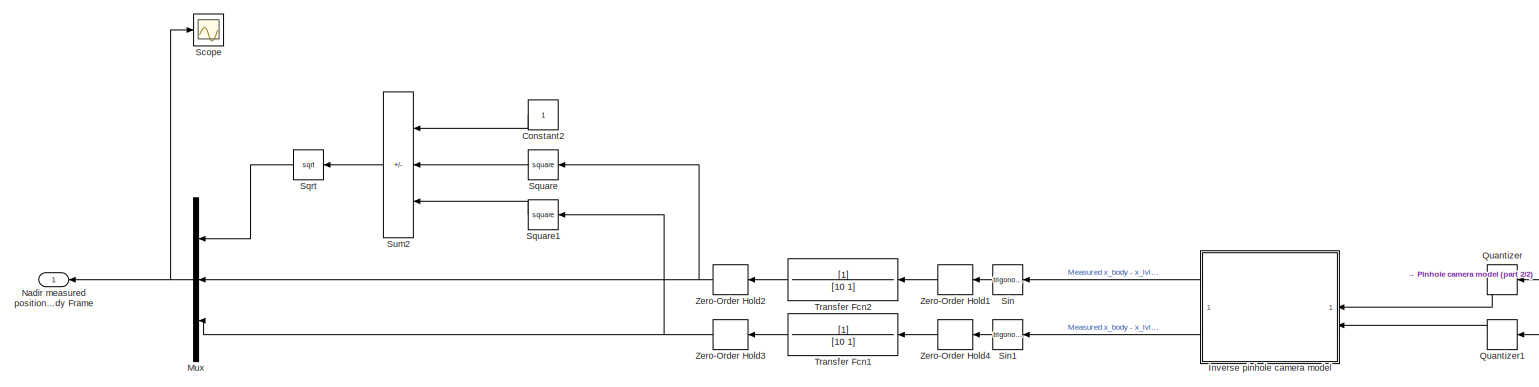
[diagram: SENSORS/Horizon Sensor - part 1/2, left side, full height]
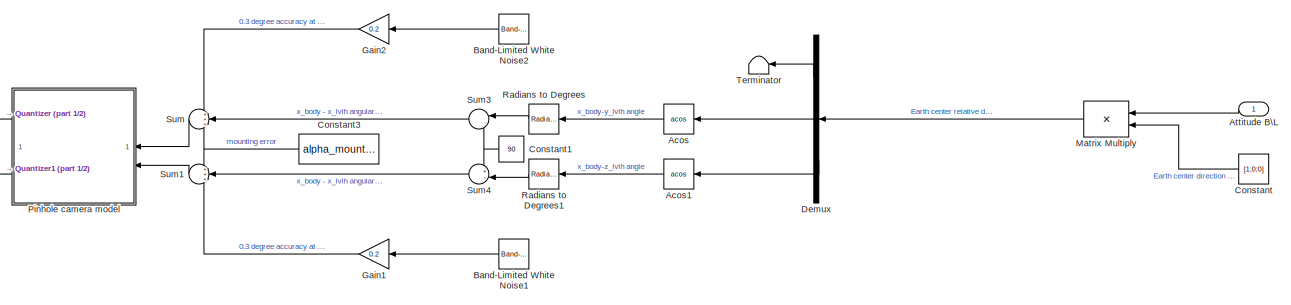
[diagram: SENSORS/Horizon Sensor - part 2/2, bottom right region]
BLOCK [SubSystem] SENSORS/Horizon Sensor
  NameLocation = top
BLOCK [Trigonometry] SENSORS/Horizon Sensor/Acos
  NameLocation = top
  Operator = acos
BLOCK [Trigonometry] SENSORS/Horizon Sensor/Acos1
  NameLocation = top
  Operator = acos
BLOCK [Inport] SENSORS/Horizon Sensor/Attitude B\L
  NameLocation = top
BLOCK [Reference] SENSORS/Horizon Sensor/Band-Limited White Noise1  REF=simulink/Sources/Band-Limited
White Noise
  NameLocation = top
  SourceBlock = simulink/Sources/Band-Limited\nWhite Noise
  SourceType = Band-Limited White Noise.
BLOCK [Reference] SENSORS/Horizon Sensor/Band-Limited White Noise2  REF=simulink/Sources/Band-Limited
White Noise
  NameLocation = top
  SourceBlock = simulink/Sources/Band-Limited\nWhite Noise
  SourceType = Band-Limited White Noise.
BLOCK [Constant] SENSORS/Horizon Sensor/Constant
  NameLocation = top
  Value = [1;0;0]
BLOCK [Constant] SENSORS/Horizon Sensor/Constant1
  NameLocation = top
  Value = 90
BLOCK [Constant] SENSORS/Horizon Sensor/Constant2
  NameLocation = top
BLOCK [Constant] SENSORS/Horizon Sensor/Constant3
  NameLocation = top
  Value = alpha_mount_hs
BLOCK [Demux] SENSORS/Horizon Sensor/Demux
  NameLocation = top
  Outputs = 3
BLOCK [Gain] SENSORS/Horizon Sensor/Gain1
  Gain = 0.2
  NameLocation = top
BLOCK [Gain] SENSORS/Horizon Sensor/Gain2
  Gain = 0.2
  NameLocation = top
BLOCK [SubSystem] SENSORS/Horizon Sensor/Inverse pinhole camera model
  NameLocation = top
BLOCK [Trigonometry] SENSORS/Horizon Sensor/Inverse pinhole camera model/Atan
  NameLocation = top
  Operator = atan
BLOCK [Trigonometry] SENSORS/Horizon Sensor/Inverse pinhole camera model/Atan1
  NameLocation = top
  Operator = atan
BLOCK [Constant] SENSORS/Horizon Sensor/Inverse pinhole camera model/Constant8
  NameLocation = top
  Value = FOV/2
BLOCK [Constant] SENSORS/Horizon Sensor/Inverse pinhole camera model/Constant9
  NameLocation = top
  Value = f
BLOCK [Product] SENSORS/Horizon Sensor/Inverse pinhole camera model/Divide4
  Inputs = */
  NameLocation = top
BLOCK [Product] SENSORS/Horizon Sensor/Inverse pinhole camera model/Divide5
  Inputs = */
  NameLocation = top
BLOCK [Inport] SENSORS/Horizon Sensor/Inverse pinhole camera model/In1
BLOCK [Inport] SENSORS/Horizon Sensor/Inverse pinhole camera model/In2
  Port = 2
BLOCK [Outport] SENSORS/Horizon Sensor/Inverse pinhole camera model/Out1
BLOCK [Outport] SENSORS/Horizon Sensor/Inverse pinhole camera model/Out2
  Port = 2
BLOCK [Sum] SENSORS/Horizon Sensor/Inverse pinhole camera model/Sum6
  Inputs = |+-
  NameLocation = top
BLOCK [Sum] SENSORS/Horizon Sensor/Inverse pinhole camera model/Sum7
  Inputs = -+|
  NameLocation = top
BLOCK [Product] SENSORS/Horizon Sensor/Matrix Multiply
  Multiplication = Matrix(*)
  NameLocation = top
BLOCK [Mux] SENSORS/Horizon Sensor/Mux
  DisplayOption = bar
  Inputs = 3
  NameLocation = top
BLOCK [Outport] SENSORS/Horizon Sensor/Nadir measured position in Body Frame
  NameLocation = top
BLOCK [SubSystem] SENSORS/Horizon Sensor/Pinhole camera model
  NameLocation = top
BLOCK [Constant] SENSORS/Horizon Sensor/Pinhole camera model/Constant4
  NameLocation = top
  Value = f
BLOCK [Constant] SENSORS/Horizon Sensor/Pinhole camera model/Constant5
  NameLocation = top
  Value = FOV/2
BLOCK [Reference] SENSORS/Horizon Sensor/Pinhole camera model/Degrees to Radians  REF=simulink_extras/Transformations/Degrees to
Radians
  NameLocation = top
  SourceBlock = simulink_extras/Transformations/Degrees to\nRadians
  SourceType = DegreesToRadians
BLOCK [Reference] SENSORS/Horizon Sensor/Pinhole camera model/Degrees to Radians1  REF=simulink_extras/Transformations/Degrees to
Radians
  NameLocation = top
  SourceBlock = simulink_extras/Transformations/Degrees to\nRadians
  SourceType = DegreesToRadians
BLOCK [Inport] SENSORS/Horizon Sensor/Pinhole camera model/In1
BLOCK [Inport] SENSORS/Horizon Sensor/Pinhole camera model/In2
  Port = 2
BLOCK [Outport] SENSORS/Horizon Sensor/Pinhole camera model/Out1
BLOCK [Outport] SENSORS/Horizon Sensor/Pinhole camera model/Out2
  Port = 2
BLOCK [Product] SENSORS/Horizon Sensor/Pinhole camera model/Product2
  NameLocation = top
BLOCK [Product] SENSORS/Horizon Sensor/Pinhole camera model/Product3
  NameLocation = top
BLOCK [Sum] SENSORS/Horizon Sensor/Pinhole camera model/Sum2
  Inputs = |++
  NameLocation = top
BLOCK [Sum] SENSORS/Horizon Sensor/Pinhole camera model/Sum3
  Inputs = ++|
  NameLocation = top
BLOCK [Trigonometry] SENSORS/Horizon Sensor/Pinhole camera model/Tan
  NameLocation = top
  Operator = tan
BLOCK [Trigonometry] SENSORS/Horizon Sensor/Pinhole camera model/Tan1
  NameLocation = top
  Operator = tan
BLOCK [Quantizer] SENSORS/Horizon Sensor/Quantizer
  NameLocation = top
  QuantizationInterval = 0.2
BLOCK [Quantizer] SENSORS/Horizon Sensor/Quantizer1
  NameLocation = top
  QuantizationInterval = 0.2
BLOCK [Reference] SENSORS/Horizon Sensor/Radians to Degrees  REF=simulink_extras/Transformations/Radians
to Degrees
  NameLocation = top
  SourceBlock = simulink_extras/Transformations/Radians\nto Degrees
  SourceType = RadiansToDegrees
BLOCK [Reference] SENSORS/Horizon Sensor/Radians to Degrees1  REF=simulink_extras/Transformations/Radians
to Degrees
  NameLocation = top
  SourceBlock = simulink_extras/Transformations/Radians\nto Degrees
  SourceType = RadiansToDegrees
BLOCK [Scope] SENSORS/Horizon Sensor/Scope
  Floating = off
  NumInputPorts = 1
  ScopeSpecificationString = Simulink.scopes.TimeScopeBlockCfg('CurrentConfiguration', extmgr.ConfigurationSet(extmgr.Configuration('Core','General UI',true),extmgr.Configuration('Core','Source UI',true),extmgr.Configuration('Sources','WiredSimulink',true,'DataLoggingVariableName','ScopeData3'),extmgr.Configuration('Visuals','Time Domain',true,'SerializedDisplays',{struct('MinYLimReal','-0.26552','MaxYLimReal','1.14061','YLab...<+1424ch>
BLOCK [Trigonometry] SENSORS/Horizon Sensor/Sin
  NameLocation = top
BLOCK [Trigonometry] SENSORS/Horizon Sensor/Sin1
  NameLocation = top
BLOCK [Sqrt] SENSORS/Horizon Sensor/Sqrt
  NameLocation = top
BLOCK [Math] SENSORS/Horizon Sensor/Square
  NameLocation = top
  Operator = square
BLOCK [Math] SENSORS/Horizon Sensor/Square1
  NameLocation = top
  Operator = square
BLOCK [Sum] SENSORS/Horizon Sensor/Sum
  Inputs = +++
  NameLocation = top
BLOCK [Sum] SENSORS/Horizon Sensor/Sum1
  Inputs = +++
  NameLocation = top
BLOCK [Sum] SENSORS/Horizon Sensor/Sum2
  IconShape = rectangular
  Inputs = +--
  NameLocation = top
BLOCK [Sum] SENSORS/Horizon Sensor/Sum3
  Inputs = |-+
  NameLocation = top
BLOCK [Sum] SENSORS/Horizon Sensor/Sum4
  Inputs = +-|
  NameLocation = top
BLOCK [Terminator] SENSORS/Horizon Sensor/Terminator
  NameLocation = top
BLOCK [TransferFcn] SENSORS/Horizon Sensor/Transfer Fcn1
  Denominator = [10 1]
  NameLocation = top
BLOCK [TransferFcn] SENSORS/Horizon Sensor/Transfer Fcn2
  Denominator = [10 1]
  NameLocation = top
BLOCK [ZeroOrderHold] SENSORS/Horizon Sensor/Zero-Order Hold1
  NameLocation = top
  SampleTime = 0.2
BLOCK [ZeroOrderHold] SENSORS/Horizon Sensor/Zero-Order Hold2
  NameLocation = top
  SampleTime = 0.2
BLOCK [ZeroOrderHold] SENSORS/Horizon Sensor/Zero-Order Hold3
  NameLocation = top
  SampleTime = 0.2
BLOCK [ZeroOrderHold] SENSORS/Horizon Sensor/Zero-Order Hold4
  NameLocation = top
  SampleTime = 0.2
BLOCK [Outport] SENSORS/Nadir measured position in Body Frame
BLOCK [SubSystem] SENSORS/Sun Sensor
  NameLocation = top
BLOCK [Trigonometry] SENSORS/Sun Sensor/Acos
  NameLocation = top
  Operator = acos
BLOCK [Trigonometry] SENSORS/Sun Sensor/Acos1
  NameLocation = top
  Operator = acos
BLOCK [Inport] SENSORS/Sun Sensor/Attitude B\ECI
  NameLocation = top
BLOCK [Reference] SENSORS/Sun Sensor/Band-Limited White Noise  REF=simulink/Sources/Band-Limited
White Noise
  NameLocation = top
  SourceBlock = simulink/Sources/Band-Limited\nWhite Noise
  SourceType = Band-Limited White Noise.
BLOCK [Reference] SENSORS/Sun Sensor/Band-Limited White Noise1  REF=simulink/Sources/Band-Limited
White Noise
  NameLocation = top
  SourceBlock = simulink/Sources/Band-Limited\nWhite Noise
  SourceType = Band-Limited White Noise.
BLOCK [Constant] SENSORS/Sun Sensor/Constant1
  NameLocation = top
  Value = 90
BLOCK [Constant] SENSORS/Sun Sensor/Constant2
  NameLocation = top
BLOCK [Constant] SENSORS/Sun Sensor/Constant3
  NameLocation = top
  Value = alpha_mount_ss
BLOCK [Reference] SENSORS/Sun Sensor/Degrees to Radians  REF=simulink_extras/Transformations/Degrees to
Radians
  NameLocation = top
  SourceBlock = simulink_extras/Transformations/Degrees to\nRadians
  SourceType = DegreesToRadians
BLOCK [Reference] SENSORS/Sun Sensor/Degrees to Radians1  REF=simulink_extras/Transformations/Degrees to
Radians
  NameLocation = top
  SourceBlock = simulink_extras/Transformations/Degrees to\nRadians
  SourceType = DegreesToRadians
BLOCK [Demux] SENSORS/Sun Sensor/Demux
  NameLocation = top
  Outputs = 3
BLOCK [Gain] SENSORS/Sun Sensor/Gain
  Gain = 0.5
  NameLocation = top
BLOCK [Gain] SENSORS/Sun Sensor/Gain1
  Gain = 0.5
  NameLocation = top
BLOCK [Product] SENSORS/Sun Sensor/Matrix Multiply
  Multiplication = Matrix(*)
  NameLocation = top
BLOCK [Mux] SENSORS/Sun Sensor/Mux
  DisplayOption = bar
  Inputs = 3
  NameLocation = top
BLOCK [Reference] SENSORS/Sun Sensor/Radians to Degrees  REF=simulink_extras/Transformations/Radians
to Degrees
  NameLocation = top
  SourceBlock = simulink_extras/Transformations/Radians\nto Degrees
  SourceType = RadiansToDegrees
BLOCK [Reference] SENSORS/Sun Sensor/Radians to Degrees1  REF=simulink_extras/Transformations/Radians
to Degrees
  NameLocation = top
  SourceBlock = simulink_extras/Transformations/Radians\nto Degrees
  SourceType = RadiansToDegrees
BLOCK [Trigonometry] SENSORS/Sun Sensor/Sin
  NameLocation = top
BLOCK [Trigonometry] SENSORS/Sun Sensor/Sin1
  NameLocation = top
BLOCK [Sqrt] SENSORS/Sun Sensor/Sqrt
  NameLocation = top
BLOCK [Math] SENSORS/Sun Sensor/Square
  NameLocation = top
  Operator = square
BLOCK [Math] SENSORS/Sun Sensor/Square1
  NameLocation = top
  Operator = square
BLOCK [Sum] SENSORS/Sun Sensor/Sum
  Inputs = +++
  NameLocation = top
BLOCK [Sum] SENSORS/Sun Sensor/Sum1
  Inputs = +++
  NameLocation = top
BLOCK [Sum] SENSORS/Sun Sensor/Sum2
  IconShape = rectangular
  Inputs = --+
  NameLocation = top
BLOCK [Sum] SENSORS/Sun Sensor/Sum3
  Inputs = |-+
  NameLocation = top
BLOCK [Sum] SENSORS/Sun Sensor/Sum4
  Inputs = +-|
  NameLocation = top
BLOCK [Outport] SENSORS/Sun Sensor/Sun measured direction in Body Frame
  NameLocation = top
BLOCK [Inport] SENSORS/Sun Sensor/Sun relative direction in ECI
  Port = 2
BLOCK [Terminator] SENSORS/Sun Sensor/Terminator
  NameLocation = top
BLOCK [TransferFcn] SENSORS/Sun Sensor/Transfer Fcn
  Denominator = [10 1]
  NameLocation = top
BLOCK [TransferFcn] SENSORS/Sun Sensor/Transfer Fcn1
  Denominator = [10 1]
  NameLocation = top
BLOCK [ZeroOrderHold] SENSORS/Sun Sensor/Zero-Order Hold
  NameLocation = top
  SampleTime = 0.2
BLOCK [ZeroOrderHold] SENSORS/Sun Sensor/Zero-Order Hold1
  NameLocation = top
  SampleTime = 0.2
BLOCK [Outport] SENSORS/Sun measured direction in Body Frame
  Port = 2
BLOCK [Inport] SENSORS/Sun relative direction ECI
  Port = 3
BLOCK [Selector] Selector1
  IndexOptions = Index vector (dialog)
  Indices = [1,5,9]
  InputPortWidth = 9
  OutputSizes = 1
BLOCK [Sum] Sum
  Inputs = +-+
BLOCK [SubSystem] TRIAD
  NameLocation = top
BLOCK [Outport] TRIAD/A_TRIAD
  NameLocation = top
BLOCK [Inport] TRIAD/Att_LVLH//ECI
  NameLocation = top
BLOCK [Constant] TRIAD/Constant
  NameLocation = top
  Value = [1;0;0]
BLOCK [Product] TRIAD/Matrix Multiply
  Multiplication = Matrix(*)
  NameLocation = top
BLOCK [Inport] TRIAD/Nadir measured in B
  Port = 2
BLOCK [SubSystem] TRIAD/Subsystem
  NameLocation = top
BLOCK [Reference] TRIAD/Subsystem/Cross Product1  REF=matrix_library/Cross Product
  LibrarySourceBlock = simulink/Matrix\nOperations/Cross Product
  NameLocation = top
  SourceBlock = matrix_library/Cross Product
  SourceType = CrossProduct
BLOCK [Reference] TRIAD/Subsystem/Cross Product3  REF=matrix_library/Cross Product
  LibrarySourceBlock = simulink/Matrix\nOperations/Cross Product
  NameLocation = top
  SourceBlock = matrix_library/Cross Product
  SourceType = CrossProduct
BLOCK [Product] TRIAD/Subsystem/Divide3
  Inputs = */
  NameLocation = top
BLOCK [DotProduct] TRIAD/Subsystem/Dot Product3
  NameLocation = top
  OutDataTypeStr = Inherit: Inherit via internal rule
BLOCK [Concatenate] TRIAD/Subsystem/Matrix Concatenate1
  ConcatenateDimension = 2
  Mode = Multidimensional array
  NameLocation = top
  NumInputs = 3
BLOCK [Outport] TRIAD/Subsystem/Measures in Body
BLOCK [Sqrt] TRIAD/Subsystem/Sqrt4
  NameLocation = top
BLOCK [Inport] TRIAD/Subsystem/a
BLOCK [Inport] TRIAD/Subsystem/b
  Port = 2
BLOCK [SubSystem] TRIAD/Subsystem1
  NameLocation = top
BLOCK [Inport] TRIAD/Subsystem1/Att_LVLH//ECI
  NameLocation = top
BLOCK [Product] TRIAD/Subsystem1/Matrix Multiply
  Multiplication = Matrix(*)
  NameLocation = top
BLOCK [Outport] TRIAD/Subsystem1/Sun direction in LVLH
BLOCK [Inport] TRIAD/Subsystem1/Sun relative direction ECI
  NameLocation = top
  Port = 2
BLOCK [SubSystem] TRIAD/Subsystem2
  NameLocation = top
BLOCK [Reference] TRIAD/Subsystem2/Cross Product2  REF=matrix_library/Cross Product
  LibrarySourceBlock = simulink/Matrix\nOperations/Cross Product
  NameLocation = top
  SourceBlock = matrix_library/Cross Product
  SourceType = CrossProduct
BLOCK [Reference] TRIAD/Subsystem2/Cross Product5  REF=matrix_library/Cross Product
  LibrarySourceBlock = simulink/Matrix\nOperations/Cross Product
  NameLocation = top
  SourceBlock = matrix_library/Cross Product
  SourceType = CrossProduct
BLOCK [Product] TRIAD/Subsystem2/Divide1
  Inputs = */
  NameLocation = top
BLOCK [DotProduct] TRIAD/Subsystem2/Dot Product1
  NameLocation = top
  OutDataTypeStr = Inherit: Inherit via internal rule
BLOCK [Concatenate] TRIAD/Subsystem2/Matrix Concatenate
  ConcatenateDimension = 2
  Mode = Multidimensional array
  NameLocation = top
  NumInputs = 3
BLOCK [Inport] TRIAD/Subsystem2/Nadir in LVLH
BLOCK [Outport] TRIAD/Subsystem2/Out1
BLOCK [Sqrt] TRIAD/Subsystem2/Sqrt2
  NameLocation = top
BLOCK [Inport] TRIAD/Subsystem2/Sun in LVLH
  Port = 2
BLOCK [Math] TRIAD/Subsystem2/Transpose
  NameLocation = top
  Operator = transpose
BLOCK [Inport] TRIAD/Sun measured in B
  Port = 3
BLOCK [Inport] TRIAD/Sun relative direction ECI
  NameLocation = top
  Port = 4
BLOCK [ZeroOrderHold] TRIAD/Zero-Order Hold
  NameLocation = top
  SampleTime = 0.2
BLOCK [ToWorkspace] To Workspace4
  FixptAsFi = on
  MaxDataPoints = inf
  SampleTime = -1
  Save2DSignal = 2-D array (concatenate along first dimension)
  VariableName = gamma
ANNOTATION S//C ATTITUDE DYNAMICS: omega
LINE Acos:1 -> To Workspace4:1
LINE CONTROL LOGIC SWITCH/Abs1:1 -> CONTROL LOGIC SWITCH/Relay1:1
LINE CONTROL LOGIC SWITCH/Abs2:1 -> CONTROL LOGIC SWITCH/Relay2:1
LINE CONTROL LOGIC SWITCH/Abs:1 -> CONTROL LOGIC SWITCH/Relay:1
LINE CONTROL LOGIC SWITCH/Demux:1 -> CONTROL LOGIC SWITCH/Abs:1
LINE CONTROL LOGIC SWITCH/Demux:2 -> CONTROL LOGIC SWITCH/Abs1:1
LINE CONTROL LOGIC SWITCH/Demux:3 -> CONTROL LOGIC SWITCH/Abs2:1
LINE CONTROL LOGIC SWITCH/If:1 -> CONTROL LOGIC SWITCH/Desaturation RW 1:1
LINE CONTROL LOGIC SWITCH/If:2 -> CONTROL LOGIC SWITCH/Desaturation RW 2:1
LINE CONTROL LOGIC SWITCH/If:3 -> CONTROL LOGIC SWITCH/Desaturation RW 3:1
LINE CONTROL LOGIC SWITCH/If:4 -> CONTROL LOGIC SWITCH/Activate Observer:1
LINE CONTROL LOGIC SWITCH/Relay1:1 -> CONTROL LOGIC SWITCH/If:2
LINE CONTROL LOGIC SWITCH/Relay2:1 -> CONTROL LOGIC SWITCH/If:3
LINE CONTROL LOGIC SWITCH/Relay:1 -> CONTROL LOGIC SWITCH/If:1
LINE CONTROL LOGIC SWITCH/om_rw:1 -> CONTROL LOGIC SWITCH/Demux:1
LINE CONTROL LOGIC SWITCH:1 -> DESATURATION CONTROL LOGIC:3
LINE CONTROL LOGIC SWITCH:2 -> DESATURATION CONTROL LOGIC:4
LINE CONTROL LOGIC SWITCH:3 -> DESATURATION CONTROL LOGIC:5
LINE CONTROL LOGIC SWITCH:4 -> OBSERVER + NOMINAL CONTROLLER:ifaction
NET DESATURATION CONTROL LOGIC/B:1 -> DESATURATION CONTROL LOGIC/RW 1 Desaturation:1, DESATURATION CONTROL LOGIC/RW 2 Desaturation:1, DESATURATION CONTROL LOGIC/RW 3 Desaturation:1
LINE DESATURATION CONTROL LOGIC/Desaturation RW 1:1 -> DESATURATION CONTROL LOGIC/RW 1 Desaturation:ifaction
LINE DESATURATION CONTROL LOGIC/Desaturation RW 2:1 -> DESATURATION CONTROL LOGIC/RW 2 Desaturation:ifaction
LINE DESATURATION CONTROL LOGIC/Desaturation RW 3:1 -> DESATURATION CONTROL LOGIC/RW 3 Desaturation:ifaction
NET DESATURATION CONTROL LOGIC/RW 1 Desaturation/B:1 -> DESATURATION CONTROL LOGIC/RW 1 Desaturation/Cross Product1:1, DESATURATION CONTROL LOGIC/RW 1 Desaturation/Cross Product2:2, DESATURATION CONTROL LOGIC/RW 1 Desaturation/Dot Product:1, DESATURATION CONTROL LOGIC/RW 1 Desaturation/Dot Product:2
LINE DESATURATION CONTROL LOGIC/RW 1 Desaturation/Constant1:1 -> DESATURATION CONTROL LOGIC/RW 1 Desaturation/Product:1
LINE DESATURATION CONTROL LOGIC/RW 1 Desaturation/Constant3:1 -> DESATURATION CONTROL LOGIC/RW 1 Desaturation/Matrix Multiply1:1
LINE DESATURATION CONTROL LOGIC/RW 1 Desaturation/Constant4:1 -> DESATURATION CONTROL LOGIC/RW 1 Desaturation/Matrix Multiply:1
LINE DESATURATION CONTROL LOGIC/RW 1 Desaturation/Cross Product1:1 -> DESATURATION CONTROL LOGIC/RW 1 Desaturation/Divide:1
NET DESATURATION CONTROL LOGIC/RW 1 Desaturation/Cross Product2:1 -> DESATURATION CONTROL LOGIC/RW 1 Desaturation/M_mt:1, DESATURATION CONTROL LOGIC/RW 1 Desaturation/Sum2:1
LINE DESATURATION CONTROL LOGIC/RW 1 Desaturation/Demux1:1 -> DESATURATION CONTROL LOGIC/RW 1 Desaturation/Mux:2
LINE DESATURATION CONTROL LOGIC/RW 1 Desaturation/Demux1:2 -> DESATURATION CONTROL LOGIC/RW 1 Desaturation/Mux:3
LINE DESATURATION CONTROL LOGIC/RW 1 Desaturation/Demux:1 -> DESATURATION CONTROL LOGIC/RW 1 Desaturation/RW BRAKING:1
LINE DESATURATION CONTROL LOGIC/RW 1 Desaturation/Demux:2 -> DESATURATION CONTROL LOGIC/RW 1 Desaturation/Terminator:1
LINE DESATURATION CONTROL LOGIC/RW 1 Desaturation/Demux:3 -> DESATURATION CONTROL LOGIC/RW 1 Desaturation/Terminator1:1
LINE DESATURATION CONTROL LOGIC/RW 1 Desaturation/Divide:1 -> DESATURATION CONTROL LOGIC/RW 1 Desaturation/Cross Product2:1
LINE DESATURATION CONTROL LOGIC/RW 1 Desaturation/Dot Product:1 -> DESATURATION CONTROL LOGIC/RW 1 Desaturation/Divide:2
LINE DESATURATION CONTROL LOGIC/RW 1 Desaturation/Gain:1 -> DESATURATION CONTROL LOGIC/RW 1 Desaturation/Sum2:2
LINE DESATURATION CONTROL LOGIC/RW 1 Desaturation/Matrix Multiply1:1 -> DESATURATION CONTROL LOGIC/RW 1 Desaturation/Demux1:1
NET DESATURATION CONTROL LOGIC/RW 1 Desaturation/Matrix Multiply:1 -> DESATURATION CONTROL LOGIC/RW 1 Desaturation/Cross Product1:2, DESATURATION CONTROL LOGIC/RW 1 Desaturation/Gain:1
LINE DESATURATION CONTROL LOGIC/RW 1 Desaturation/Mux:1 -> DESATURATION CONTROL LOGIC/RW 1 Desaturation/Product:2
LINE DESATURATION CONTROL LOGIC/RW 1 Desaturation/Product:1 -> DESATURATION CONTROL LOGIC/RW 1 Desaturation/om_rw_dot:1
LINE DESATURATION CONTROL LOGIC/RW 1 Desaturation/RW BRAKING/Constant8:1 -> DESATURATION CONTROL LOGIC/RW 1 Desaturation/RW BRAKING/Product:1
LINE DESATURATION CONTROL LOGIC/RW 1 Desaturation/RW BRAKING/Gain1:1 -> DESATURATION CONTROL LOGIC/RW 1 Desaturation/RW BRAKING/Product:2
LINE DESATURATION CONTROL LOGIC/RW 1 Desaturation/RW BRAKING/In1:1 -> DESATURATION CONTROL LOGIC/RW 1 Desaturation/RW BRAKING/Sign:1
LINE DESATURATION CONTROL LOGIC/RW 1 Desaturation/RW BRAKING/Product:1 -> DESATURATION CONTROL LOGIC/RW 1 Desaturation/RW BRAKING/M_braking:1
LINE DESATURATION CONTROL LOGIC/RW 1 Desaturation/RW BRAKING/Sign:1 -> DESATURATION CONTROL LOGIC/RW 1 Desaturation/RW BRAKING/Gain1:1
NET DESATURATION CONTROL LOGIC/RW 1 Desaturation/RW BRAKING:1 -> DESATURATION CONTROL LOGIC/RW 1 Desaturation/Matrix Multiply:2, DESATURATION CONTROL LOGIC/RW 1 Desaturation/Mux:1
LINE DESATURATION CONTROL LOGIC/RW 1 Desaturation/Sum2:1 -> DESATURATION CONTROL LOGIC/RW 1 Desaturation/Matrix Multiply1:2
LINE DESATURATION CONTROL LOGIC/RW 1 Desaturation/om_rw:1 -> DESATURATION CONTROL LOGIC/RW 1 Desaturation/Demux:1
LINE DESATURATION CONTROL LOGIC/RW 1 Desaturation:1 -> DESATURATION CONTROL LOGIC/M_mt_des1:1
LINE DESATURATION CONTROL LOGIC/RW 1 Desaturation:2 -> DESATURATION CONTROL LOGIC/om_rw_dot_des1:1
NET DESATURATION CONTROL LOGIC/RW 2 Desaturation/B:1 -> DESATURATION CONTROL LOGIC/RW 2 Desaturation/Cross Product1:1, DESATURATION CONTROL LOGIC/RW 2 Desaturation/Cross Product2:2, DESATURATION CONTROL LOGIC/RW 2 Desaturation/Dot Product:1, DESATURATION CONTROL LOGIC/RW 2 Desaturation/Dot Product:2
LINE DESATURATION CONTROL LOGIC/RW 2 Desaturation/Constant1:1 -> DESATURATION CONTROL LOGIC/RW 2 Desaturation/Product:1
LINE DESATURATION CONTROL LOGIC/RW 2 Desaturation/Constant3:1 -> DESATURATION CONTROL LOGIC/RW 2 Desaturation/Matrix Multiply1:1
LINE DESATURATION CONTROL LOGIC/RW 2 Desaturation/Constant4:1 -> DESATURATION CONTROL LOGIC/RW 2 Desaturation/Matrix Multiply:1
LINE DESATURATION CONTROL LOGIC/RW 2 Desaturation/Cross Product1:1 -> DESATURATION CONTROL LOGIC/RW 2 Desaturation/Divide:1
NET DESATURATION CONTROL LOGIC/RW 2 Desaturation/Cross Product2:1 -> DESATURATION CONTROL LOGIC/RW 2 Desaturation/M_mt:1, DESATURATION CONTROL LOGIC/RW 2 Desaturation/Sum2:1
LINE DESATURATION CONTROL LOGIC/RW 2 Desaturation/Demux1:1 -> DESATURATION CONTROL LOGIC/RW 2 Desaturation/Mux:1
LINE DESATURATION CONTROL LOGIC/RW 2 Desaturation/Demux1:2 -> DESATURATION CONTROL LOGIC/RW 2 Desaturation/Mux:3
LINE DESATURATION CONTROL LOGIC/RW 2 Desaturation/Demux:1 -> DESATURATION CONTROL LOGIC/RW 2 Desaturation/Terminator:1
LINE DESATURATION CONTROL LOGIC/RW 2 Desaturation/Demux:2 -> DESATURATION CONTROL LOGIC/RW 2 Desaturation/RW BRAKING:1
LINE DESATURATION CONTROL LOGIC/RW 2 Desaturation/Demux:3 -> DESATURATION CONTROL LOGIC/RW 2 Desaturation/Terminator1:1
LINE DESATURATION CONTROL LOGIC/RW 2 Desaturation/Divide:1 -> DESATURATION CONTROL LOGIC/RW 2 Desaturation/Cross Product2:1
LINE DESATURATION CONTROL LOGIC/RW 2 Desaturation/Dot Product:1 -> DESATURATION CONTROL LOGIC/RW 2 Desaturation/Divide:2
LINE DESATURATION CONTROL LOGIC/RW 2 Desaturation/Gain:1 -> DESATURATION CONTROL LOGIC/RW 2 Desaturation/Sum2:2
LINE DESATURATION CONTROL LOGIC/RW 2 Desaturation/Matrix Multiply1:1 -> DESATURATION CONTROL LOGIC/RW 2 Desaturation/Demux1:1
NET DESATURATION CONTROL LOGIC/RW 2 Desaturation/Matrix Multiply:1 -> DESATURATION CONTROL LOGIC/RW 2 Desaturation/Cross Product1:2, DESATURATION CONTROL LOGIC/RW 2 Desaturation/Gain:1
LINE DESATURATION CONTROL LOGIC/RW 2 Desaturation/Mux:1 -> DESATURATION CONTROL LOGIC/RW 2 Desaturation/Product:2
LINE DESATURATION CONTROL LOGIC/RW 2 Desaturation/Product:1 -> DESATURATION CONTROL LOGIC/RW 2 Desaturation/om_rw_dot:1
LINE DESATURATION CONTROL LOGIC/RW 2 Desaturation/RW BRAKING/Constant8:1 -> DESATURATION CONTROL LOGIC/RW 2 Desaturation/RW BRAKING/Product:1
LINE DESATURATION CONTROL LOGIC/RW 2 Desaturation/RW BRAKING/Gain1:1 -> DESATURATION CONTROL LOGIC/RW 2 Desaturation/RW BRAKING/Product:2
LINE DESATURATION CONTROL LOGIC/RW 2 Desaturation/RW BRAKING/In1:1 -> DESATURATION CONTROL LOGIC/RW 2 Desaturation/RW BRAKING/Sign:1
LINE DESATURATION CONTROL LOGIC/RW 2 Desaturation/RW BRAKING/Product:1 -> DESATURATION CONTROL LOGIC/RW 2 Desaturation/RW BRAKING/M_braking:1
LINE DESATURATION CONTROL LOGIC/RW 2 Desaturation/RW BRAKING/Sign:1 -> DESATURATION CONTROL LOGIC/RW 2 Desaturation/RW BRAKING/Gain1:1
NET DESATURATION CONTROL LOGIC/RW 2 Desaturation/RW BRAKING:1 -> DESATURATION CONTROL LOGIC/RW 2 Desaturation/Matrix Multiply:2, DESATURATION CONTROL LOGIC/RW 2 Desaturation/Mux:2
LINE DESATURATION CONTROL LOGIC/RW 2 Desaturation/Sum2:1 -> DESATURATION CONTROL LOGIC/RW 2 Desaturation/Matrix Multiply1:2
LINE DESATURATION CONTROL LOGIC/RW 2 Desaturation/om_rw:1 -> DESATURATION CONTROL LOGIC/RW 2 Desaturation/Demux:1
LINE DESATURATION CONTROL LOGIC/RW 2 Desaturation:1 -> DESATURATION CONTROL LOGIC/M_mt_des2:1
LINE DESATURATION CONTROL LOGIC/RW 2 Desaturation:2 -> DESATURATION CONTROL LOGIC/om_rw_dot_des2:1
NET DESATURATION CONTROL LOGIC/RW 3 Desaturation/B:1 -> DESATURATION CONTROL LOGIC/RW 3 Desaturation/Cross Product1:1, DESATURATION CONTROL LOGIC/RW 3 Desaturation/Cross Product2:2, DESATURATION CONTROL LOGIC/RW 3 Desaturation/Dot Product:1, DESATURATION CONTROL LOGIC/RW 3 Desaturation/Dot Product:2
LINE DESATURATION CONTROL LOGIC/RW 3 Desaturation/Constant1:1 -> DESATURATION CONTROL LOGIC/RW 3 Desaturation/Product:1
LINE DESATURATION CONTROL LOGIC/RW 3 Desaturation/Constant3:1 -> DESATURATION CONTROL LOGIC/RW 3 Desaturation/Matrix Multiply1:1
LINE DESATURATION CONTROL LOGIC/RW 3 Desaturation/Constant4:1 -> DESATURATION CONTROL LOGIC/RW 3 Desaturation/Matrix Multiply:1
LINE DESATURATION CONTROL LOGIC/RW 3 Desaturation/Cross Product1:1 -> DESATURATION CONTROL LOGIC/RW 3 Desaturation/Divide:1
NET DESATURATION CONTROL LOGIC/RW 3 Desaturation/Cross Product2:1 -> DESATURATION CONTROL LOGIC/RW 3 Desaturation/M_mt:1, DESATURATION CONTROL LOGIC/RW 3 Desaturation/Scope:1, DESATURATION CONTROL LOGIC/RW 3 Desaturation/Sum2:1
LINE DESATURATION CONTROL LOGIC/RW 3 Desaturation/Demux1:1 -> DESATURATION CONTROL LOGIC/RW 3 Desaturation/Mux:1
LINE DESATURATION CONTROL LOGIC/RW 3 Desaturation/Demux1:2 -> DESATURATION CONTROL LOGIC/RW 3 Desaturation/Mux:2
LINE DESATURATION CONTROL LOGIC/RW 3 Desaturation/Demux:1 -> DESATURATION CONTROL LOGIC/RW 3 Desaturation/Terminator:1
LINE DESATURATION CONTROL LOGIC/RW 3 Desaturation/Demux:2 -> DESATURATION CONTROL LOGIC/RW 3 Desaturation/Terminator1:1
LINE DESATURATION CONTROL LOGIC/RW 3 Desaturation/Demux:3 -> DESATURATION CONTROL LOGIC/RW 3 Desaturation/RW BRAKING:1
LINE DESATURATION CONTROL LOGIC/RW 3 Desaturation/Divide:1 -> DESATURATION CONTROL LOGIC/RW 3 Desaturation/Cross Product2:1
LINE DESATURATION CONTROL LOGIC/RW 3 Desaturation/Dot Product:1 -> DESATURATION CONTROL LOGIC/RW 3 Desaturation/Divide:2
NET DESATURATION CONTROL LOGIC/RW 3 Desaturation/Gain:1 -> DESATURATION CONTROL LOGIC/RW 3 Desaturation/Scope1:1, DESATURATION CONTROL LOGIC/RW 3 Desaturation/Sum2:2
NET DESATURATION CONTROL LOGIC/RW 3 Desaturation/Matrix Multiply1:1 -> DESATURATION CONTROL LOGIC/RW 3 Desaturation/Demux1:1, DESATURATION CONTROL LOGIC/RW 3 Desaturation/Scope2:1
NET DESATURATION CONTROL LOGIC/RW 3 Desaturation/Matrix Multiply:1 -> DESATURATION CONTROL LOGIC/RW 3 Desaturation/Cross Product1:2, DESATURATION CONTROL LOGIC/RW 3 Desaturation/Gain:1
LINE DESATURATION CONTROL LOGIC/RW 3 Desaturation/Mux:1 -> DESATURATION CONTROL LOGIC/RW 3 Desaturation/Product:2
LINE DESATURATION CONTROL LOGIC/RW 3 Desaturation/Product:1 -> DESATURATION CONTROL LOGIC/RW 3 Desaturation/om_rw_dot:1
LINE DESATURATION CONTROL LOGIC/RW 3 Desaturation/RW BRAKING/Constant8:1 -> DESATURATION CONTROL LOGIC/RW 3 Desaturation/RW BRAKING/Product:1
LINE DESATURATION CONTROL LOGIC/RW 3 Desaturation/RW BRAKING/Gain1:1 -> DESATURATION CONTROL LOGIC/RW 3 Desaturation/RW BRAKING/Product:2
LINE DESATURATION CONTROL LOGIC/RW 3 Desaturation/RW BRAKING/In1:1 -> DESATURATION CONTROL LOGIC/RW 3 Desaturation/RW BRAKING/Sign:1
LINE DESATURATION CONTROL LOGIC/RW 3 Desaturation/RW BRAKING/Product:1 -> DESATURATION CONTROL LOGIC/RW 3 Desaturation/RW BRAKING/M_braking:1
LINE DESATURATION CONTROL LOGIC/RW 3 Desaturation/RW BRAKING/Sign:1 -> DESATURATION CONTROL LOGIC/RW 3 Desaturation/RW BRAKING/Gain1:1
NET DESATURATION CONTROL LOGIC/RW 3 Desaturation/RW BRAKING:1 -> DESATURATION CONTROL LOGIC/RW 3 Desaturation/Matrix Multiply:2, DESATURATION CONTROL LOGIC/RW 3 Desaturation/Mux:3
LINE DESATURATION CONTROL LOGIC/RW 3 Desaturation/Sum2:1 -> DESATURATION CONTROL LOGIC/RW 3 Desaturation/Matrix Multiply1:2
LINE DESATURATION CONTROL LOGIC/RW 3 Desaturation/om_rw:1 -> DESATURATION CONTROL LOGIC/RW 3 Desaturation/Demux:1
LINE DESATURATION CONTROL LOGIC/RW 3 Desaturation:1 -> DESATURATION CONTROL LOGIC/M_mt_des3:1
LINE DESATURATION CONTROL LOGIC/RW 3 Desaturation:2 -> DESATURATION CONTROL LOGIC/om_rw_dot_des3:1
NET DESATURATION CONTROL LOGIC/om_rw:1 -> DESATURATION CONTROL LOGIC/RW 1 Desaturation:2, DESATURATION CONTROL LOGIC/RW 2 Desaturation:2, DESATURATION CONTROL LOGIC/RW 3 Desaturation:2
LINE DESATURATION CONTROL LOGIC:1 -> REACTION WHEELS:4
LINE DESATURATION CONTROL LOGIC:2 -> REACTION WHEELS:3
LINE DESATURATION CONTROL LOGIC:3 -> REACTION WHEELS:2
LINE DESATURATION CONTROL LOGIC:4 -> MAGNETOTORQUERS:4
LINE DESATURATION CONTROL LOGIC:5 -> MAGNETOTORQUERS:3
LINE DESATURATION CONTROL LOGIC:6 -> MAGNETOTORQUERS:2
LINE ENVIRONMENT/Att_B\ECI:1 -> ENVIRONMENT/Magnetic Torque:2
LINE ENVIRONMENT/Att_B\LVLH:1 -> ENVIRONMENT/Gravity Gradient:1
NET ENVIRONMENT/Gravity Gradient/Att_B\L:1 -> ENVIRONMENT/Gravity Gradient/Matrix Multiply5:1, ENVIRONMENT/Gravity Gradient/Subsystem:1
LINE ENVIRONMENT/Gravity Gradient/Constant7:1 -> ENVIRONMENT/Gravity Gradient/Subsystem:2
LINE ENVIRONMENT/Gravity Gradient/Constant8:1 -> ENVIRONMENT/Gravity Gradient/Mux4:1
LINE ENVIRONMENT/Gravity Gradient/Constant:1 -> ENVIRONMENT/Gravity Gradient/Power:2
LINE ENVIRONMENT/Gravity Gradient/Demux:1 -> ENVIRONMENT/Gravity Gradient/Mux4:3
LINE ENVIRONMENT/Gravity Gradient/Demux:2 -> ENVIRONMENT/Gravity Gradient/Gain3:1
LINE ENVIRONMENT/Gravity Gradient/Dot Product:1 -> ENVIRONMENT/Gravity Gradient/Power:1
LINE ENVIRONMENT/Gravity Gradient/Gain2:1 -> ENVIRONMENT/Gravity Gradient/Product:1
LINE ENVIRONMENT/Gravity Gradient/Gain3:1 -> ENVIRONMENT/Gravity Gradient/Mux4:2
LINE ENVIRONMENT/Gravity Gradient/Matrix Multiply5:1 -> ENVIRONMENT/Gravity Gradient/GG_Torque:1
LINE ENVIRONMENT/Gravity Gradient/Mux4:1 -> ENVIRONMENT/Gravity Gradient/Gain2:1
LINE ENVIRONMENT/Gravity Gradient/Power:1 -> ENVIRONMENT/Gravity Gradient/Product:2
LINE ENVIRONMENT/Gravity Gradient/Product:1 -> ENVIRONMENT/Gravity Gradient/Matrix Multiply5:2
LINE ENVIRONMENT/Gravity Gradient/Reshape:1 -> ENVIRONMENT/Gravity Gradient/Selector:1
NET ENVIRONMENT/Gravity Gradient/S//C Position:1 -> ENVIRONMENT/Gravity Gradient/Dot Product:1, ENVIRONMENT/Gravity Gradient/Dot Product:2
LINE ENVIRONMENT/Gravity Gradient/Selector:1 -> ENVIRONMENT/Gravity Gradient/Demux:1
NET ENVIRONMENT/Gravity Gradient/Subsystem/Att_B\L:1 -> ENVIRONMENT/Gravity Gradient/Subsystem/Matrix Multiply3:2, ENVIRONMENT/Gravity Gradient/Subsystem/Transpose2:1
LINE ENVIRONMENT/Gravity Gradient/Subsystem/I_Body:1 -> ENVIRONMENT/Gravity Gradient/Subsystem/Matrix Multiply4:2
LINE ENVIRONMENT/Gravity Gradient/Subsystem/Matrix Multiply3:1 -> ENVIRONMENT/Gravity Gradient/Subsystem/I LVLH FRAME:1
LINE ENVIRONMENT/Gravity Gradient/Subsystem/Matrix Multiply4:1 -> ENVIRONMENT/Gravity Gradient/Subsystem/Matrix Multiply3:1
LINE ENVIRONMENT/Gravity Gradient/Subsystem/Transpose2:1 -> ENVIRONMENT/Gravity Gradient/Subsystem/Matrix Multiply4:1
LINE ENVIRONMENT/Gravity Gradient/Subsystem:1 -> ENVIRONMENT/Gravity Gradient/Reshape:1
LINE ENVIRONMENT/Gravity Gradient:1 -> ENVIRONMENT/Sum:1
LINE ENVIRONMENT/Magnetic Torque/Cartesian 2 spherical/Asin:1 -> ENVIRONMENT/Magnetic Torque/Cartesian 2 spherical/lat:1
LINE ENVIRONMENT/Magnetic Torque/Cartesian 2 spherical/Atan2:1 -> ENVIRONMENT/Magnetic Torque/Cartesian 2 spherical/Mod:1
LINE ENVIRONMENT/Magnetic Torque/Cartesian 2 spherical/Constant1:1 -> ENVIRONMENT/Magnetic Torque/Cartesian 2 spherical/Mod1:2
LINE ENVIRONMENT/Magnetic Torque/Cartesian 2 spherical/Constant2:1 -> ENVIRONMENT/Magnetic Torque/Cartesian 2 spherical/Mod2:2
LINE ENVIRONMENT/Magnetic Torque/Cartesian 2 spherical/Constant:1 -> ENVIRONMENT/Magnetic Torque/Cartesian 2 spherical/Mod:2
LINE ENVIRONMENT/Magnetic Torque/Cartesian 2 spherical/Demux:1 -> ENVIRONMENT/Magnetic Torque/Cartesian 2 spherical/Atan2:2
LINE ENVIRONMENT/Magnetic Torque/Cartesian 2 spherical/Demux:2 -> ENVIRONMENT/Magnetic Torque/Cartesian 2 spherical/Atan2:1
LINE ENVIRONMENT/Magnetic Torque/Cartesian 2 spherical/Demux:3 -> ENVIRONMENT/Magnetic Torque/Cartesian 2 spherical/Divide:1
LINE ENVIRONMENT/Magnetic Torque/Cartesian 2 spherical/Divide:1 -> ENVIRONMENT/Magnetic Torque/Cartesian 2 spherical/Asin:1
LINE ENVIRONMENT/Magnetic Torque/Cartesian 2 spherical/Dot Product:1 -> ENVIRONMENT/Magnetic Torque/Cartesian 2 spherical/Sqrt:1
NET ENVIRONMENT/Magnetic Torque/Cartesian 2 spherical/Mod1:1 -> ENVIRONMENT/Magnetic Torque/Cartesian 2 spherical/Long:1, ENVIRONMENT/Magnetic Torque/Cartesian 2 spherical/Sum:1
LINE ENVIRONMENT/Magnetic Torque/Cartesian 2 spherical/Mod2:1 -> ENVIRONMENT/Magnetic Torque/Cartesian 2 spherical/LST:1
LINE ENVIRONMENT/Magnetic Torque/Cartesian 2 spherical/Mod:1 -> ENVIRONMENT/Magnetic Torque/Cartesian 2 spherical/Subtract:1
NET ENVIRONMENT/Magnetic Torque/Cartesian 2 spherical/Sqrt:1 -> ENVIRONMENT/Magnetic Torque/Cartesian 2 spherical/Divide:2, ENVIRONMENT/Magnetic Torque/Cartesian 2 spherical/radius:1
LINE ENVIRONMENT/Magnetic Torque/Cartesian 2 spherical/Subsystem/Clock:1 -> ENVIRONMENT/Magnetic Torque/Cartesian 2 spherical/Subsystem/Product:2
LINE ENVIRONMENT/Magnetic Torque/Cartesian 2 spherical/Subsystem/Constant1:1 -> ENVIRONMENT/Magnetic Torque/Cartesian 2 spherical/Subsystem/Product:1
LINE ENVIRONMENT/Magnetic Torque/Cartesian 2 spherical/Subsystem/Constant2:1 -> ENVIRONMENT/Magnetic Torque/Cartesian 2 spherical/Subsystem/Mod:2
LINE ENVIRONMENT/Magnetic Torque/Cartesian 2 spherical/Subsystem/Constant:1 -> ENVIRONMENT/Magnetic Torque/Cartesian 2 spherical/Subsystem/Sum:1
LINE ENVIRONMENT/Magnetic Torque/Cartesian 2 spherical/Subsystem/Mod:1 -> ENVIRONMENT/Magnetic Torque/Cartesian 2 spherical/Subsystem/Output:1
LINE ENVIRONMENT/Magnetic Torque/Cartesian 2 spherical/Subsystem/Product:1 -> ENVIRONMENT/Magnetic Torque/Cartesian 2 spherical/Subsystem/Sum:2
LINE ENVIRONMENT/Magnetic Torque/Cartesian 2 spherical/Subsystem/Sum:1 -> ENVIRONMENT/Magnetic Torque/Cartesian 2 spherical/Subsystem/Mod:1
NET ENVIRONMENT/Magnetic Torque/Cartesian 2 spherical/Subsystem:1 -> ENVIRONMENT/Magnetic Torque/Cartesian 2 spherical/Subtract:2, ENVIRONMENT/Magnetic Torque/Cartesian 2 spherical/Sum:2
LINE ENVIRONMENT/Magnetic Torque/Cartesian 2 spherical/Subtract:1 -> ENVIRONMENT/Magnetic Torque/Cartesian 2 spherical/Mod1:1
LINE ENVIRONMENT/Magnetic Torque/Cartesian 2 spherical/Sum:1 -> ENVIRONMENT/Magnetic Torque/Cartesian 2 spherical/Mod2:1
NET ENVIRONMENT/Magnetic Torque/Cartesian 2 spherical/[km]:1 -> ENVIRONMENT/Magnetic Torque/Cartesian 2 spherical/Demux:1, ENVIRONMENT/Magnetic Torque/Cartesian 2 spherical/Dot Product:1, ENVIRONMENT/Magnetic Torque/Cartesian 2 spherical/Dot Product:2
LINE ENVIRONMENT/Magnetic Torque/Cartesian 2 spherical:1 -> ENVIRONMENT/Magnetic Torque/MAGNETIC TORQUE in BODY:1
LINE ENVIRONMENT/Magnetic Torque/Cartesian 2 spherical:2 -> ENVIRONMENT/Magnetic Torque/MAGNETIC TORQUE in BODY:2
LINE ENVIRONMENT/Magnetic Torque/Cartesian 2 spherical:3 -> ENVIRONMENT/Magnetic Torque/MAGNETIC TORQUE in BODY:3
LINE ENVIRONMENT/Magnetic Torque/Cartesian 2 spherical:4 -> ENVIRONMENT/Magnetic Torque/MAGNETIC TORQUE in BODY:4
LINE ENVIRONMENT/Magnetic Torque/Constant1:1 -> ENVIRONMENT/Magnetic Torque/MAGNETIC TORQUE in BODY:6
LINE ENVIRONMENT/Magnetic Torque/MAGNETIC TORQUE in BODY/B in ECI system/Bphi cos:1 -> ENVIRONMENT/Magnetic Torque/MAGNETIC TORQUE in BODY/B in ECI system/Sum3:1
LINE ENVIRONMENT/Magnetic Torque/MAGNETIC TORQUE in BODY/B in ECI system/Bphi sin:1 -> ENVIRONMENT/Magnetic Torque/MAGNETIC TORQUE in BODY/B in ECI system/Sum1:1
LINE ENVIRONMENT/Magnetic Torque/MAGNETIC TORQUE in BODY/B in ECI system/Br cos:1 -> ENVIRONMENT/Magnetic Torque/MAGNETIC TORQUE in BODY/B in ECI system/Sum:1
LINE ENVIRONMENT/Magnetic Torque/MAGNETIC TORQUE in BODY/B in ECI system/Br sin:1 -> ENVIRONMENT/Magnetic Torque/MAGNETIC TORQUE in BODY/B in ECI system/Sum2:1
LINE ENVIRONMENT/Magnetic Torque/MAGNETIC TORQUE in BODY/B in ECI system/Btheta cos:1 -> ENVIRONMENT/Magnetic Torque/MAGNETIC TORQUE in BODY/B in ECI system/Sum2:2
LINE ENVIRONMENT/Magnetic Torque/MAGNETIC TORQUE in BODY/B in ECI system/Btheta sin:1 -> ENVIRONMENT/Magnetic Torque/MAGNETIC TORQUE in BODY/B in ECI system/Sum:2
LINE ENVIRONMENT/Magnetic Torque/MAGNETIC TORQUE in BODY/B in ECI system/Product1:1 -> ENVIRONMENT/Magnetic Torque/MAGNETIC TORQUE in BODY/B in ECI system/Sum3:2
LINE ENVIRONMENT/Magnetic Torque/MAGNETIC TORQUE in BODY/B in ECI system/Product:1 -> ENVIRONMENT/Magnetic Torque/MAGNETIC TORQUE in BODY/B in ECI system/Sum1:2
NET ENVIRONMENT/Magnetic Torque/MAGNETIC TORQUE in BODY/B in ECI system/SinCos1:1 -> ENVIRONMENT/Magnetic Torque/MAGNETIC TORQUE in BODY/B in ECI system/Br sin:2, ENVIRONMENT/Magnetic Torque/MAGNETIC TORQUE in BODY/B in ECI system/Btheta sin:2
NET ENVIRONMENT/Magnetic Torque/MAGNETIC TORQUE in BODY/B in ECI system/SinCos1:2 -> ENVIRONMENT/Magnetic Torque/MAGNETIC TORQUE in BODY/B in ECI system/Br cos:2, ENVIRONMENT/Magnetic Torque/MAGNETIC TORQUE in BODY/B in ECI system/Btheta cos:2
NET ENVIRONMENT/Magnetic Torque/MAGNETIC TORQUE in BODY/B in ECI system/SinCos:1 -> ENVIRONMENT/Magnetic Torque/MAGNETIC TORQUE in BODY/B in ECI system/Bphi sin:2, ENVIRONMENT/Magnetic Torque/MAGNETIC TORQUE in BODY/B in ECI system/Product1:2
NET ENVIRONMENT/Magnetic Torque/MAGNETIC TORQUE in BODY/B in ECI system/SinCos:2 -> ENVIRONMENT/Magnetic Torque/MAGNETIC TORQUE in BODY/B in ECI system/Bphi cos:2, ENVIRONMENT/Magnetic Torque/MAGNETIC TORQUE in BODY/B in ECI system/Product:2
LINE ENVIRONMENT/Magnetic Torque/MAGNETIC TORQUE in BODY/B in ECI system/Sum1:1 -> ENVIRONMENT/Magnetic Torque/MAGNETIC TORQUE in BODY/B in ECI system/Out1:1
LINE ENVIRONMENT/Magnetic Torque/MAGNETIC TORQUE in BODY/B in ECI system/Sum2:1 -> ENVIRONMENT/Magnetic Torque/MAGNETIC TORQUE in BODY/B in ECI system/Out3:1
LINE ENVIRONMENT/Magnetic Torque/MAGNETIC TORQUE in BODY/B in ECI system/Sum3:1 -> ENVIRONMENT/Magnetic Torque/MAGNETIC TORQUE in BODY/B in ECI system/Out2:1
NET ENVIRONMENT/Magnetic Torque/MAGNETIC TORQUE in BODY/B in ECI system/Sum:1 -> ENVIRONMENT/Magnetic Torque/MAGNETIC TORQUE in BODY/B in ECI system/Product1:1, ENVIRONMENT/Magnetic Torque/MAGNETIC TORQUE in BODY/B in ECI system/Product:1
NET ENVIRONMENT/Magnetic Torque/MAGNETIC TORQUE in BODY/B in ECI system/latitude:1 -> ENVIRONMENT/Magnetic Torque/MAGNETIC TORQUE in BODY/B in ECI system/SinCos1:1, ENVIRONMENT/Magnetic Torque/MAGNETIC TORQUE in BODY/B in ECI system/spherical coordinates:3
LINE ENVIRONMENT/Magnetic Torque/MAGNETIC TORQUE in BODY/B in ECI system/local siderial time:1 -> ENVIRONMENT/Magnetic Torque/MAGNETIC TORQUE in BODY/B in ECI system/SinCos:1
LINE ENVIRONMENT/Magnetic Torque/MAGNETIC TORQUE in BODY/B in ECI system/longitude:1 -> ENVIRONMENT/Magnetic Torque/MAGNETIC TORQUE in BODY/B in ECI system/spherical coordinates:1
LINE ENVIRONMENT/Magnetic Torque/MAGNETIC TORQUE in BODY/B in ECI system/r:1 -> ENVIRONMENT/Magnetic Torque/MAGNETIC TORQUE in BODY/B in ECI system/spherical coordinates:2
LINE ENVIRONMENT/Magnetic Torque/MAGNETIC TORQUE in BODY/B in ECI system/spherical coordinates/ (nxm):1 -> ENVIRONMENT/Magnetic Torque/MAGNETIC TORQUE in BODY/B in ECI system/spherical coordinates/For Iterator Subsystem2:1
LINE ENVIRONMENT/Magnetic Torque/MAGNETIC TORQUE in BODY/B in ECI system/spherical coordinates/(nxm):1 -> ENVIRONMENT/Magnetic Torque/MAGNETIC TORQUE in BODY/B in ECI system/spherical coordinates/For Iterator Subsystem2:2
LINE ENVIRONMENT/Magnetic Torque/MAGNETIC TORQUE in BODY/B in ECI system/spherical coordinates/Constant11:1 -> ENVIRONMENT/Magnetic Torque/MAGNETIC TORQUE in BODY/B in ECI system/spherical coordinates/Sum:2
LINE ENVIRONMENT/Magnetic Torque/MAGNETIC TORQUE in BODY/B in ECI system/spherical coordinates/Constant12:1 -> ENVIRONMENT/Magnetic Torque/MAGNETIC TORQUE in BODY/B in ECI system/spherical coordinates/For Iterator Subsystem2:10
LINE ENVIRONMENT/Magnetic Torque/MAGNETIC TORQUE in BODY/B in ECI system/spherical coordinates/Constant13:1 -> ENVIRONMENT/Magnetic Torque/MAGNETIC TORQUE in BODY/B in ECI system/spherical coordinates/For Iterator Subsystem2:11
LINE ENVIRONMENT/Magnetic Torque/MAGNETIC TORQUE in BODY/B in ECI system/spherical coordinates/Constant14:1 -> ENVIRONMENT/Magnetic Torque/MAGNETIC TORQUE in BODY/B in ECI system/spherical coordinates/For Iterator Subsystem2:12
LINE ENVIRONMENT/Magnetic Torque/MAGNETIC TORQUE in BODY/B in ECI system/spherical coordinates/Divide:1 -> ENVIRONMENT/Magnetic Torque/MAGNETIC TORQUE in BODY/B in ECI system/spherical coordinates/B_p:1
LINE ENVIRONMENT/Magnetic Torque/MAGNETIC TORQUE in BODY/B in ECI system/spherical coordinates/Earth's Radius [km]:1 -> ENVIRONMENT/Magnetic Torque/MAGNETIC TORQUE in BODY/B in ECI system/spherical coordinates/For Iterator Subsystem2:9
LINE ENVIRONMENT/Magnetic Torque/MAGNETIC TORQUE in BODY/B in ECI system/spherical coordinates/For Iterator Subsystem2/Constant1:1 -> ENVIRONMENT/Magnetic Torque/MAGNETIC TORQUE in BODY/B in ECI system/spherical coordinates/For Iterator Subsystem2/Sum4:1
LINE ENVIRONMENT/Magnetic Torque/MAGNETIC TORQUE in BODY/B in ECI system/spherical coordinates/For Iterator Subsystem2/Constant:1 -> ENVIRONMENT/Magnetic Torque/MAGNETIC TORQUE in BODY/B in ECI system/spherical coordinates/For Iterator Subsystem2/Sum3:1
LINE ENVIRONMENT/Magnetic Torque/MAGNETIC TORQUE in BODY/B in ECI system/spherical coordinates/For Iterator Subsystem2/Delay1:1 -> ENVIRONMENT/Magnetic Torque/MAGNETIC TORQUE in BODY/B in ECI system/spherical coordinates/For Iterator Subsystem2/Sum1:2
LINE ENVIRONMENT/Magnetic Torque/MAGNETIC TORQUE in BODY/B in ECI system/spherical coordinates/For Iterator Subsystem2/Delay2:1 -> ENVIRONMENT/Magnetic Torque/MAGNETIC TORQUE in BODY/B in ECI system/spherical coordinates/For Iterator Subsystem2/Sum2:2
LINE ENVIRONMENT/Magnetic Torque/MAGNETIC TORQUE in BODY/B in ECI system/spherical coordinates/For Iterator Subsystem2/Delay:1 -> ENVIRONMENT/Magnetic Torque/MAGNETIC TORQUE in BODY/B in ECI system/spherical coordinates/For Iterator Subsystem2/Sum:2
LINE ENVIRONMENT/Magnetic Torque/MAGNETIC TORQUE in BODY/B in ECI system/spherical coordinates/For Iterator Subsystem2/Divide:1 -> ENVIRONMENT/Magnetic Torque/MAGNETIC TORQUE in BODY/B in ECI system/spherical coordinates/For Iterator Subsystem2/Power:1
LINE ENVIRONMENT/Magnetic Torque/MAGNETIC TORQUE in BODY/B in ECI system/spherical coordinates/For Iterator Subsystem2/For Iterator Subsystem/Constant1:1 -> ENVIRONMENT/Magnetic Torque/MAGNETIC TORQUE in BODY/B in ECI system/spherical coordinates/For Iterator Subsystem2/For Iterator Subsystem/Divide:2
LINE ENVIRONMENT/Magnetic Torque/MAGNETIC TORQUE in BODY/B in ECI system/spherical coordinates/For Iterator Subsystem2/For Iterator Subsystem/Constant:1 -> ENVIRONMENT/Magnetic Torque/MAGNETIC TORQUE in BODY/B in ECI system/spherical coordinates/For Iterator Subsystem2/For Iterator Subsystem/Sum3:2
LINE ENVIRONMENT/Magnetic Torque/MAGNETIC TORQUE in BODY/B in ECI system/spherical coordinates/For Iterator Subsystem2/For Iterator Subsystem/Delay1:1 -> ENVIRONMENT/Magnetic Torque/MAGNETIC TORQUE in BODY/B in ECI system/spherical coordinates/For Iterator Subsystem2/For Iterator Subsystem/Sum1:2
LINE ENVIRONMENT/Magnetic Torque/MAGNETIC TORQUE in BODY/B in ECI system/spherical coordinates/For Iterator Subsystem2/For Iterator Subsystem/Delay2:1 -> ENVIRONMENT/Magnetic Torque/MAGNETIC TORQUE in BODY/B in ECI system/spherical coordinates/For Iterator Subsystem2/For Iterator Subsystem/Sum2:2
LINE ENVIRONMENT/Magnetic Torque/MAGNETIC TORQUE in BODY/B in ECI system/spherical coordinates/For Iterator Subsystem2/For Iterator Subsystem/Delay:1 -> ENVIRONMENT/Magnetic Torque/MAGNETIC TORQUE in BODY/B in ECI system/spherical coordinates/For Iterator Subsystem2/For Iterator Subsystem/Sum:2
NET ENVIRONMENT/Magnetic Torque/MAGNETIC TORQUE in BODY/B in ECI system/spherical coordinates/For Iterator Subsystem2/For Iterator Subsystem/Divide:1 -> ENVIRONMENT/Magnetic Torque/MAGNETIC TORQUE in BODY/B in ECI system/spherical coordinates/For Iterator Subsystem2/For Iterator Subsystem/Product5:2, ENVIRONMENT/Magnetic Torque/MAGNETIC TORQUE in BODY/B in ECI system/spherical coordinates/For Iterator Subsystem2/For Iterator Subsystem/Product6:2
NET ENVIRONMENT/Magnetic Torque/MAGNETIC TORQUE in BODY/B in ECI system/spherical coordinates/For Iterator Subsystem2/For Iterator Subsystem/For Iterator:1 -> ENVIRONMENT/Magnetic Torque/MAGNETIC TORQUE in BODY/B in ECI system/spherical coordinates/For Iterator Subsystem2/For Iterator Subsystem/Product12:2, ENVIRONMENT/Magnetic Torque/MAGNETIC TORQUE in BODY/B in ECI system/spherical coordinates/For Iterator Subsystem2/For Iterator Subsystem/Product:2, ENVIRONMENT/Magnetic Torque/MAGNETIC TORQUE in BODY/B in ECI system/spherical coordinates/For Iterator Subsystem2/For Iterator Subsystem/Sum3:1
LINE ENVIRONMENT/Magnetic Torque/MAGNETIC TORQUE in BODY/B in ECI system/spherical coordinates/For Iterator Subsystem2/For Iterator Subsystem/P:1 -> ENVIRONMENT/Magnetic Torque/MAGNETIC TORQUE in BODY/B in ECI system/spherical coordinates/For Iterator Subsystem2/For Iterator Subsystem/P_nm:1
LINE ENVIRONMENT/Magnetic Torque/MAGNETIC TORQUE in BODY/B in ECI system/spherical coordinates/For Iterator Subsystem2/For Iterator Subsystem/P_nm:1 -> ENVIRONMENT/Magnetic Torque/MAGNETIC TORQUE in BODY/B in ECI system/spherical coordinates/For Iterator Subsystem2/For Iterator Subsystem/Product4:1
LINE ENVIRONMENT/Magnetic Torque/MAGNETIC TORQUE in BODY/B in ECI system/spherical coordinates/For Iterator Subsystem2/For Iterator Subsystem/Product10:1 -> ENVIRONMENT/Magnetic Torque/MAGNETIC TORQUE in BODY/B in ECI system/spherical coordinates/For Iterator Subsystem2/For Iterator Subsystem/Sum7:2
LINE ENVIRONMENT/Magnetic Torque/MAGNETIC TORQUE in BODY/B in ECI system/spherical coordinates/For Iterator Subsystem2/For Iterator Subsystem/Product11:1 -> ENVIRONMENT/Magnetic Torque/MAGNETIC TORQUE in BODY/B in ECI system/spherical coordinates/For Iterator Subsystem2/For Iterator Subsystem/Product12:1
LINE ENVIRONMENT/Magnetic Torque/MAGNETIC TORQUE in BODY/B in ECI system/spherical coordinates/For Iterator Subsystem2/For Iterator Subsystem/Product12:1 -> ENVIRONMENT/Magnetic Torque/MAGNETIC TORQUE in BODY/B in ECI system/spherical coordinates/For Iterator Subsystem2/For Iterator Subsystem/Sum2:1
LINE ENVIRONMENT/Magnetic Torque/MAGNETIC TORQUE in BODY/B in ECI system/spherical coordinates/For Iterator Subsystem2/For Iterator Subsystem/Product1:1 -> ENVIRONMENT/Magnetic Torque/MAGNETIC TORQUE in BODY/B in ECI system/spherical coordinates/For Iterator Subsystem2/For Iterator Subsystem/Sum4:1
LINE ENVIRONMENT/Magnetic Torque/MAGNETIC TORQUE in BODY/B in ECI system/spherical coordinates/For Iterator Subsystem2/For Iterator Subsystem/Product2:1 -> ENVIRONMENT/Magnetic Torque/MAGNETIC TORQUE in BODY/B in ECI system/spherical coordinates/For Iterator Subsystem2/For Iterator Subsystem/Sum4:2
LINE ENVIRONMENT/Magnetic Torque/MAGNETIC TORQUE in BODY/B in ECI system/spherical coordinates/For Iterator Subsystem2/For Iterator Subsystem/Product3:1 -> ENVIRONMENT/Magnetic Torque/MAGNETIC TORQUE in BODY/B in ECI system/spherical coordinates/For Iterator Subsystem2/For Iterator Subsystem/Sum:1
NET ENVIRONMENT/Magnetic Torque/MAGNETIC TORQUE in BODY/B in ECI system/spherical coordinates/For Iterator Subsystem2/For Iterator Subsystem/Product4:1 -> ENVIRONMENT/Magnetic Torque/MAGNETIC TORQUE in BODY/B in ECI system/spherical coordinates/For Iterator Subsystem2/For Iterator Subsystem/Product11:2, ENVIRONMENT/Magnetic Torque/MAGNETIC TORQUE in BODY/B in ECI system/spherical coordinates/For Iterator Subsystem2/For Iterator Subsystem/Product3:2
LINE ENVIRONMENT/Magnetic Torque/MAGNETIC TORQUE in BODY/B in ECI system/spherical coordinates/For Iterator Subsystem2/For Iterator Subsystem/Product5:1 -> ENVIRONMENT/Magnetic Torque/MAGNETIC TORQUE in BODY/B in ECI system/spherical coordinates/For Iterator Subsystem2/For Iterator Subsystem/Sum5:2
LINE ENVIRONMENT/Magnetic Torque/MAGNETIC TORQUE in BODY/B in ECI system/spherical coordinates/For Iterator Subsystem2/For Iterator Subsystem/Product6:1 -> ENVIRONMENT/Magnetic Torque/MAGNETIC TORQUE in BODY/B in ECI system/spherical coordinates/For Iterator Subsystem2/For Iterator Subsystem/Sum6:2
LINE ENVIRONMENT/Magnetic Torque/MAGNETIC TORQUE in BODY/B in ECI system/spherical coordinates/For Iterator Subsystem2/For Iterator Subsystem/Product7:1 -> ENVIRONMENT/Magnetic Torque/MAGNETIC TORQUE in BODY/B in ECI system/spherical coordinates/For Iterator Subsystem2/For Iterator Subsystem/Product8:2
LINE ENVIRONMENT/Magnetic Torque/MAGNETIC TORQUE in BODY/B in ECI system/spherical coordinates/For Iterator Subsystem2/For Iterator Subsystem/Product8:1 -> ENVIRONMENT/Magnetic Torque/MAGNETIC TORQUE in BODY/B in ECI system/spherical coordinates/For Iterator Subsystem2/For Iterator Subsystem/Sum1:1
LINE ENVIRONMENT/Magnetic Torque/MAGNETIC TORQUE in BODY/B in ECI system/spherical coordinates/For Iterator Subsystem2/For Iterator Subsystem/Product9:1 -> ENVIRONMENT/Magnetic Torque/MAGNETIC TORQUE in BODY/B in ECI system/spherical coordinates/For Iterator Subsystem2/For Iterator Subsystem/Sum7:1
LINE ENVIRONMENT/Magnetic Torque/MAGNETIC TORQUE in BODY/B in ECI system/spherical coordinates/For Iterator Subsystem2/For Iterator Subsystem/Product:1 -> ENVIRONMENT/Magnetic Torque/MAGNETIC TORQUE in BODY/B in ECI system/spherical coordinates/For Iterator Subsystem2/For Iterator Subsystem/SinCos:1
NET ENVIRONMENT/Magnetic Torque/MAGNETIC TORQUE in BODY/B in ECI system/spherical coordinates/For Iterator Subsystem2/For Iterator Subsystem/SinCos:1 -> ENVIRONMENT/Magnetic Torque/MAGNETIC TORQUE in BODY/B in ECI system/spherical coordinates/For Iterator Subsystem2/For Iterator Subsystem/Product1:2, ENVIRONMENT/Magnetic Torque/MAGNETIC TORQUE in BODY/B in ECI system/spherical coordinates/For Iterator Subsystem2/For Iterator Subsystem/Product9:1
NET ENVIRONMENT/Magnetic Torque/MAGNETIC TORQUE in BODY/B in ECI system/spherical coordinates/For Iterator Subsystem2/For Iterator Subsystem/SinCos:2 -> ENVIRONMENT/Magnetic Torque/MAGNETIC TORQUE in BODY/B in ECI system/spherical coordinates/For Iterator Subsystem2/For Iterator Subsystem/Product10:1, ENVIRONMENT/Magnetic Torque/MAGNETIC TORQUE in BODY/B in ECI system/spherical coordinates/For Iterator Subsystem2/For Iterator Subsystem/Product2:2
NET ENVIRONMENT/Magnetic Torque/MAGNETIC TORQUE in BODY/B in ECI system/spherical coordinates/For Iterator Subsystem2/For Iterator Subsystem/Sum1:1 -> ENVIRONMENT/Magnetic Torque/MAGNETIC TORQUE in BODY/B in ECI system/spherical coordinates/For Iterator Subsystem2/For Iterator Subsystem/B_theta:1, ENVIRONMENT/Magnetic Torque/MAGNETIC TORQUE in BODY/B in ECI system/spherical coordinates/For Iterator Subsystem2/For Iterator Subsystem/Delay1:1
NET ENVIRONMENT/Magnetic Torque/MAGNETIC TORQUE in BODY/B in ECI system/spherical coordinates/For Iterator Subsystem2/For Iterator Subsystem/Sum2:1 -> ENVIRONMENT/Magnetic Torque/MAGNETIC TORQUE in BODY/B in ECI system/spherical coordinates/For Iterator Subsystem2/For Iterator Subsystem/B_phi:1, ENVIRONMENT/Magnetic Torque/MAGNETIC TORQUE in BODY/B in ECI system/spherical coordinates/For Iterator Subsystem2/For Iterator Subsystem/Delay2:1
NET ENVIRONMENT/Magnetic Torque/MAGNETIC TORQUE in BODY/B in ECI system/spherical coordinates/For Iterator Subsystem2/For Iterator Subsystem/Sum3:1 -> ENVIRONMENT/Magnetic Torque/MAGNETIC TORQUE in BODY/B in ECI system/spherical coordinates/For Iterator Subsystem2/For Iterator Subsystem/P_nm:3, ENVIRONMENT/Magnetic Torque/MAGNETIC TORQUE in BODY/B in ECI system/spherical coordinates/For Iterator Subsystem2/For Iterator Subsystem/dP_nm:3, ENVIRONMENT/Magnetic Torque/MAGNETIC TORQUE in BODY/B in ECI system/spherical coordinates/For Iterator Subsystem2/For Iterator Subsystem/g_factor _correct:3, ENVIRONMENT/Magnetic Torque/MAGNETIC TORQUE in BODY/B in ECI system/spherical coordinates/For Iterator Subsystem2/For Iterator Subsystem/g_n^m:3, ENVIRONMENT/Magnetic Torque/MAGNETIC TORQUE in BODY/B in ECI system/spherical coordinates/For Iterator Subsystem2/For Iterator Subsystem/h_factor _correc:3, ENVIRONMENT/Magnetic Torque/MAGNETIC TORQUE in BODY/B in ECI system/spherical coordinates/For Iterator Subsystem2/For Iterator Subsystem/h_n^m1:3, ENVIRONMENT/Magnetic Torque/MAGNETIC TORQUE in BODY/B in ECI system/spherical coordinates/For Iterator Subsystem2/For Iterator Subsystem/smith normalization:3
NET ENVIRONMENT/Magnetic Torque/MAGNETIC TORQUE in BODY/B in ECI system/spherical coordinates/For Iterator Subsystem2/For Iterator Subsystem/Sum4:1 -> ENVIRONMENT/Magnetic Torque/MAGNETIC TORQUE in BODY/B in ECI system/spherical coordinates/For Iterator Subsystem2/For Iterator Subsystem/Product3:1, ENVIRONMENT/Magnetic Torque/MAGNETIC TORQUE in BODY/B in ECI system/spherical coordinates/For Iterator Subsystem2/For Iterator Subsystem/Product8:1
NET ENVIRONMENT/Magnetic Torque/MAGNETIC TORQUE in BODY/B in ECI system/spherical coordinates/For Iterator Subsystem2/For Iterator Subsystem/Sum5:1 -> ENVIRONMENT/Magnetic Torque/MAGNETIC TORQUE in BODY/B in ECI system/spherical coordinates/For Iterator Subsystem2/For Iterator Subsystem/Product10:2, ENVIRONMENT/Magnetic Torque/MAGNETIC TORQUE in BODY/B in ECI system/spherical coordinates/For Iterator Subsystem2/For Iterator Subsystem/Product1:1
NET ENVIRONMENT/Magnetic Torque/MAGNETIC TORQUE in BODY/B in ECI system/spherical coordinates/For Iterator Subsystem2/For Iterator Subsystem/Sum6:1 -> ENVIRONMENT/Magnetic Torque/MAGNETIC TORQUE in BODY/B in ECI system/spherical coordinates/For Iterator Subsystem2/For Iterator Subsystem/Product2:1, ENVIRONMENT/Magnetic Torque/MAGNETIC TORQUE in BODY/B in ECI system/spherical coordinates/For Iterator Subsystem2/For Iterator Subsystem/Product9:2
LINE ENVIRONMENT/Magnetic Torque/MAGNETIC TORQUE in BODY/B in ECI system/spherical coordinates/For Iterator Subsystem2/For Iterator Subsystem/Sum7:1 -> ENVIRONMENT/Magnetic Torque/MAGNETIC TORQUE in BODY/B in ECI system/spherical coordinates/For Iterator Subsystem2/For Iterator Subsystem/Product11:1
NET ENVIRONMENT/Magnetic Torque/MAGNETIC TORQUE in BODY/B in ECI system/spherical coordinates/For Iterator Subsystem2/For Iterator Subsystem/Sum:1 -> ENVIRONMENT/Magnetic Torque/MAGNETIC TORQUE in BODY/B in ECI system/spherical coordinates/For Iterator Subsystem2/For Iterator Subsystem/Br:1, ENVIRONMENT/Magnetic Torque/MAGNETIC TORQUE in BODY/B in ECI system/spherical coordinates/For Iterator Subsystem2/For Iterator Subsystem/Delay:1
LINE ENVIRONMENT/Magnetic Torque/MAGNETIC TORQUE in BODY/B in ECI system/spherical coordinates/For Iterator Subsystem2/For Iterator Subsystem/correct_g:1 -> ENVIRONMENT/Magnetic Torque/MAGNETIC TORQUE in BODY/B in ECI system/spherical coordinates/For Iterator Subsystem2/For Iterator Subsystem/g_factor _correct:1
LINE ENVIRONMENT/Magnetic Torque/MAGNETIC TORQUE in BODY/B in ECI system/spherical coordinates/For Iterator Subsystem2/For Iterator Subsystem/correct_h :1 -> ENVIRONMENT/Magnetic Torque/MAGNETIC TORQUE in BODY/B in ECI system/spherical coordinates/For Iterator Subsystem2/For Iterator Subsystem/h_factor _correc:1
LINE ENVIRONMENT/Magnetic Torque/MAGNETIC TORQUE in BODY/B in ECI system/spherical coordinates/For Iterator Subsystem2/For Iterator Subsystem/dP:1 -> ENVIRONMENT/Magnetic Torque/MAGNETIC TORQUE in BODY/B in ECI system/spherical coordinates/For Iterator Subsystem2/For Iterator Subsystem/dP_nm:1
LINE ENVIRONMENT/Magnetic Torque/MAGNETIC TORQUE in BODY/B in ECI system/spherical coordinates/For Iterator Subsystem2/For Iterator Subsystem/dP_nm:1 -> ENVIRONMENT/Magnetic Torque/MAGNETIC TORQUE in BODY/B in ECI system/spherical coordinates/For Iterator Subsystem2/For Iterator Subsystem/Product7:1
LINE ENVIRONMENT/Magnetic Torque/MAGNETIC TORQUE in BODY/B in ECI system/spherical coordinates/For Iterator Subsystem2/For Iterator Subsystem/days:1 -> ENVIRONMENT/Magnetic Torque/MAGNETIC TORQUE in BODY/B in ECI system/spherical coordinates/For Iterator Subsystem2/For Iterator Subsystem/Divide:1
LINE ENVIRONMENT/Magnetic Torque/MAGNETIC TORQUE in BODY/B in ECI system/spherical coordinates/For Iterator Subsystem2/For Iterator Subsystem/g_factor _correct:1 -> ENVIRONMENT/Magnetic Torque/MAGNETIC TORQUE in BODY/B in ECI system/spherical coordinates/For Iterator Subsystem2/For Iterator Subsystem/Product6:1
LINE ENVIRONMENT/Magnetic Torque/MAGNETIC TORQUE in BODY/B in ECI system/spherical coordinates/For Iterator Subsystem2/For Iterator Subsystem/g_n^m:1 -> ENVIRONMENT/Magnetic Torque/MAGNETIC TORQUE in BODY/B in ECI system/spherical coordinates/For Iterator Subsystem2/For Iterator Subsystem/Sum6:1
LINE ENVIRONMENT/Magnetic Torque/MAGNETIC TORQUE in BODY/B in ECI system/spherical coordinates/For Iterator Subsystem2/For Iterator Subsystem/h_factor _correc:1 -> ENVIRONMENT/Magnetic Torque/MAGNETIC TORQUE in BODY/B in ECI system/spherical coordinates/For Iterator Subsystem2/For Iterator Subsystem/Product5:1
LINE ENVIRONMENT/Magnetic Torque/MAGNETIC TORQUE in BODY/B in ECI system/spherical coordinates/For Iterator Subsystem2/For Iterator Subsystem/h_n^m1:1 -> ENVIRONMENT/Magnetic Torque/MAGNETIC TORQUE in BODY/B in ECI system/spherical coordinates/For Iterator Subsystem2/For Iterator Subsystem/Sum5:1
LINE ENVIRONMENT/Magnetic Torque/MAGNETIC TORQUE in BODY/B in ECI system/spherical coordinates/For Iterator Subsystem2/For Iterator Subsystem/m (number of iterations):1 -> ENVIRONMENT/Magnetic Torque/MAGNETIC TORQUE in BODY/B in ECI system/spherical coordinates/For Iterator Subsystem2/For Iterator Subsystem/For Iterator:1
LINE ENVIRONMENT/Magnetic Torque/MAGNETIC TORQUE in BODY/B in ECI system/spherical coordinates/For Iterator Subsystem2/For Iterator Subsystem/matrix g:1 -> ENVIRONMENT/Magnetic Torque/MAGNETIC TORQUE in BODY/B in ECI system/spherical coordinates/For Iterator Subsystem2/For Iterator Subsystem/g_n^m:1
LINE ENVIRONMENT/Magnetic Torque/MAGNETIC TORQUE in BODY/B in ECI system/spherical coordinates/For Iterator Subsystem2/For Iterator Subsystem/matrix h:1 -> ENVIRONMENT/Magnetic Torque/MAGNETIC TORQUE in BODY/B in ECI system/spherical coordinates/For Iterator Subsystem2/For Iterator Subsystem/h_n^m1:1
NET ENVIRONMENT/Magnetic Torque/MAGNETIC TORQUE in BODY/B in ECI system/spherical coordinates/For Iterator Subsystem2/For Iterator Subsystem/n (loops):1 -> ENVIRONMENT/Magnetic Torque/MAGNETIC TORQUE in BODY/B in ECI system/spherical coordinates/For Iterator Subsystem2/For Iterator Subsystem/P_nm:2, ENVIRONMENT/Magnetic Torque/MAGNETIC TORQUE in BODY/B in ECI system/spherical coordinates/For Iterator Subsystem2/For Iterator Subsystem/dP_nm:2, ENVIRONMENT/Magnetic Torque/MAGNETIC TORQUE in BODY/B in ECI system/spherical coordinates/For Iterator Subsystem2/For Iterator Subsystem/g_factor _correct:2, ENVIRONMENT/Magnetic Torque/MAGNETIC TORQUE in BODY/B in ECI system/spherical coordinates/For Iterator Subsystem2/For Iterator Subsystem/g_n^m:2, ENVIRONMENT/Magnetic Torque/MAGNETIC TORQUE in BODY/B in ECI system/spherical coordinates/For Iterator Subsystem2/For Iterator Subsystem/h_factor _correc:2, ENVIRONMENT/Magnetic Torque/MAGNETIC TORQUE in BODY/B in ECI system/spherical coordinates/For Iterator Subsystem2/For Iterator Subsystem/h_n^m1:2, ENVIRONMENT/Magnetic Torque/MAGNETIC TORQUE in BODY/B in ECI system/spherical coordinates/For Iterator Subsystem2/For Iterator Subsystem/smith normalization:2
LINE ENVIRONMENT/Magnetic Torque/MAGNETIC TORQUE in BODY/B in ECI system/spherical coordinates/For Iterator Subsystem2/For Iterator Subsystem/phi:1 -> ENVIRONMENT/Magnetic Torque/MAGNETIC TORQUE in BODY/B in ECI system/spherical coordinates/For Iterator Subsystem2/For Iterator Subsystem/Product:1
NET ENVIRONMENT/Magnetic Torque/MAGNETIC TORQUE in BODY/B in ECI system/spherical coordinates/For Iterator Subsystem2/For Iterator Subsystem/smith normalization:1 -> ENVIRONMENT/Magnetic Torque/MAGNETIC TORQUE in BODY/B in ECI system/spherical coordinates/For Iterator Subsystem2/For Iterator Subsystem/Product4:2, ENVIRONMENT/Magnetic Torque/MAGNETIC TORQUE in BODY/B in ECI system/spherical coordinates/For Iterator Subsystem2/For Iterator Subsystem/Product7:2
LINE ENVIRONMENT/Magnetic Torque/MAGNETIC TORQUE in BODY/B in ECI system/spherical coordinates/For Iterator Subsystem2/For Iterator Subsystem/smith_norm:1 -> ENVIRONMENT/Magnetic Torque/MAGNETIC TORQUE in BODY/B in ECI system/spherical coordinates/For Iterator Subsystem2/For Iterator Subsystem/smith normalization:1
LINE ENVIRONMENT/Magnetic Torque/MAGNETIC TORQUE in BODY/B in ECI system/spherical coordinates/For Iterator Subsystem2/For Iterator Subsystem:1 -> ENVIRONMENT/Magnetic Torque/MAGNETIC TORQUE in BODY/B in ECI system/spherical coordinates/For Iterator Subsystem2/Product1:2
LINE ENVIRONMENT/Magnetic Torque/MAGNETIC TORQUE in BODY/B in ECI system/spherical coordinates/For Iterator Subsystem2/For Iterator Subsystem:2 -> ENVIRONMENT/Magnetic Torque/MAGNETIC TORQUE in BODY/B in ECI system/spherical coordinates/For Iterator Subsystem2/Product2:2
LINE ENVIRONMENT/Magnetic Torque/MAGNETIC TORQUE in BODY/B in ECI system/spherical coordinates/For Iterator Subsystem2/For Iterator Subsystem:3 -> ENVIRONMENT/Magnetic Torque/MAGNETIC TORQUE in BODY/B in ECI system/spherical coordinates/For Iterator Subsystem2/Product3:2
NET ENVIRONMENT/Magnetic Torque/MAGNETIC TORQUE in BODY/B in ECI system/spherical coordinates/For Iterator Subsystem2/For Iterator:1 -> ENVIRONMENT/Magnetic Torque/MAGNETIC TORQUE in BODY/B in ECI system/spherical coordinates/For Iterator Subsystem2/For Iterator Subsystem:3, ENVIRONMENT/Magnetic Torque/MAGNETIC TORQUE in BODY/B in ECI system/spherical coordinates/For Iterator Subsystem2/Sum3:2, ENVIRONMENT/Magnetic Torque/MAGNETIC TORQUE in BODY/B in ECI system/spherical coordinates/For Iterator Subsystem2/Sum4:2
LINE ENVIRONMENT/Magnetic Torque/MAGNETIC TORQUE in BODY/B in ECI system/spherical coordinates/For Iterator Subsystem2/P:1 -> ENVIRONMENT/Magnetic Torque/MAGNETIC TORQUE in BODY/B in ECI system/spherical coordinates/For Iterator Subsystem2/For Iterator Subsystem:5
NET ENVIRONMENT/Magnetic Torque/MAGNETIC TORQUE in BODY/B in ECI system/spherical coordinates/For Iterator Subsystem2/Power:1 -> ENVIRONMENT/Magnetic Torque/MAGNETIC TORQUE in BODY/B in ECI system/spherical coordinates/For Iterator Subsystem2/Product2:1, ENVIRONMENT/Magnetic Torque/MAGNETIC TORQUE in BODY/B in ECI system/spherical coordinates/For Iterator Subsystem2/Product3:1, ENVIRONMENT/Magnetic Torque/MAGNETIC TORQUE in BODY/B in ECI system/spherical coordinates/For Iterator Subsystem2/Product:1
LINE ENVIRONMENT/Magnetic Torque/MAGNETIC TORQUE in BODY/B in ECI system/spherical coordinates/For Iterator Subsystem2/Product1:1 -> ENVIRONMENT/Magnetic Torque/MAGNETIC TORQUE in BODY/B in ECI system/spherical coordinates/For Iterator Subsystem2/Sum:1
LINE ENVIRONMENT/Magnetic Torque/MAGNETIC TORQUE in BODY/B in ECI system/spherical coordinates/For Iterator Subsystem2/Product2:1 -> ENVIRONMENT/Magnetic Torque/MAGNETIC TORQUE in BODY/B in ECI system/spherical coordinates/For Iterator Subsystem2/Sum1:1
LINE ENVIRONMENT/Magnetic Torque/MAGNETIC TORQUE in BODY/B in ECI system/spherical coordinates/For Iterator Subsystem2/Product3:1 -> ENVIRONMENT/Magnetic Torque/MAGNETIC TORQUE in BODY/B in ECI system/spherical coordinates/For Iterator Subsystem2/Sum2:1
LINE ENVIRONMENT/Magnetic Torque/MAGNETIC TORQUE in BODY/B in ECI system/spherical coordinates/For Iterator Subsystem2/Product:1 -> ENVIRONMENT/Magnetic Torque/MAGNETIC TORQUE in BODY/B in ECI system/spherical coordinates/For Iterator Subsystem2/Product1:1
LINE ENVIRONMENT/Magnetic Torque/MAGNETIC TORQUE in BODY/B in ECI system/spherical coordinates/For Iterator Subsystem2/R:1 -> ENVIRONMENT/Magnetic Torque/MAGNETIC TORQUE in BODY/B in ECI system/spherical coordinates/For Iterator Subsystem2/Divide:1
NET ENVIRONMENT/Magnetic Torque/MAGNETIC TORQUE in BODY/B in ECI system/spherical coordinates/For Iterator Subsystem2/Sum1:1 -> ENVIRONMENT/Magnetic Torque/MAGNETIC TORQUE in BODY/B in ECI system/spherical coordinates/For Iterator Subsystem2/B_theta:1, ENVIRONMENT/Magnetic Torque/MAGNETIC TORQUE in BODY/B in ECI system/spherical coordinates/For Iterator Subsystem2/Delay1:1
NET ENVIRONMENT/Magnetic Torque/MAGNETIC TORQUE in BODY/B in ECI system/spherical coordinates/For Iterator Subsystem2/Sum2:1 -> ENVIRONMENT/Magnetic Torque/MAGNETIC TORQUE in BODY/B in ECI system/spherical coordinates/For Iterator Subsystem2/B_phi:1, ENVIRONMENT/Magnetic Torque/MAGNETIC TORQUE in BODY/B in ECI system/spherical coordinates/For Iterator Subsystem2/Delay2:1
LINE ENVIRONMENT/Magnetic Torque/MAGNETIC TORQUE in BODY/B in ECI system/spherical coordinates/For Iterator Subsystem2/Sum3:1 -> ENVIRONMENT/Magnetic Torque/MAGNETIC TORQUE in BODY/B in ECI system/spherical coordinates/For Iterator Subsystem2/Product:2
LINE ENVIRONMENT/Magnetic Torque/MAGNETIC TORQUE in BODY/B in ECI system/spherical coordinates/For Iterator Subsystem2/Sum4:1 -> ENVIRONMENT/Magnetic Torque/MAGNETIC TORQUE in BODY/B in ECI system/spherical coordinates/For Iterator Subsystem2/Power:2
NET ENVIRONMENT/Magnetic Torque/MAGNETIC TORQUE in BODY/B in ECI system/spherical coordinates/For Iterator Subsystem2/Sum:1 -> ENVIRONMENT/Magnetic Torque/MAGNETIC TORQUE in BODY/B in ECI system/spherical coordinates/For Iterator Subsystem2/B_r:1, ENVIRONMENT/Magnetic Torque/MAGNETIC TORQUE in BODY/B in ECI system/spherical coordinates/For Iterator Subsystem2/Delay:1
LINE ENVIRONMENT/Magnetic Torque/MAGNETIC TORQUE in BODY/B in ECI system/spherical coordinates/For Iterator Subsystem2/correct_g:1 -> ENVIRONMENT/Magnetic Torque/MAGNETIC TORQUE in BODY/B in ECI system/spherical coordinates/For Iterator Subsystem2/For Iterator Subsystem:10
LINE ENVIRONMENT/Magnetic Torque/MAGNETIC TORQUE in BODY/B in ECI system/spherical coordinates/For Iterator Subsystem2/correct_h :1 -> ENVIRONMENT/Magnetic Torque/MAGNETIC TORQUE in BODY/B in ECI system/spherical coordinates/For Iterator Subsystem2/For Iterator Subsystem:9
LINE ENVIRONMENT/Magnetic Torque/MAGNETIC TORQUE in BODY/B in ECI system/spherical coordinates/For Iterator Subsystem2/dP:1 -> ENVIRONMENT/Magnetic Torque/MAGNETIC TORQUE in BODY/B in ECI system/spherical coordinates/For Iterator Subsystem2/For Iterator Subsystem:6
LINE ENVIRONMENT/Magnetic Torque/MAGNETIC TORQUE in BODY/B in ECI system/spherical coordinates/For Iterator Subsystem2/days:1 -> ENVIRONMENT/Magnetic Torque/MAGNETIC TORQUE in BODY/B in ECI system/spherical coordinates/For Iterator Subsystem2/For Iterator Subsystem:11
LINE ENVIRONMENT/Magnetic Torque/MAGNETIC TORQUE in BODY/B in ECI system/spherical coordinates/For Iterator Subsystem2/m_ max value:1 -> ENVIRONMENT/Magnetic Torque/MAGNETIC TORQUE in BODY/B in ECI system/spherical coordinates/For Iterator Subsystem2/For Iterator Subsystem:4
LINE ENVIRONMENT/Magnetic Torque/MAGNETIC TORQUE in BODY/B in ECI system/spherical coordinates/For Iterator Subsystem2/matrix g:1 -> ENVIRONMENT/Magnetic Torque/MAGNETIC TORQUE in BODY/B in ECI system/spherical coordinates/For Iterator Subsystem2/For Iterator Subsystem:1
LINE ENVIRONMENT/Magnetic Torque/MAGNETIC TORQUE in BODY/B in ECI system/spherical coordinates/For Iterator Subsystem2/matrix h:1 -> ENVIRONMENT/Magnetic Torque/MAGNETIC TORQUE in BODY/B in ECI system/spherical coordinates/For Iterator Subsystem2/For Iterator Subsystem:2
LINE ENVIRONMENT/Magnetic Torque/MAGNETIC TORQUE in BODY/B in ECI system/spherical coordinates/For Iterator Subsystem2/n:1 -> ENVIRONMENT/Magnetic Torque/MAGNETIC TORQUE in BODY/B in ECI system/spherical coordinates/For Iterator Subsystem2/For Iterator:1
LINE ENVIRONMENT/Magnetic Torque/MAGNETIC TORQUE in BODY/B in ECI system/spherical coordinates/For Iterator Subsystem2/phi:1 -> ENVIRONMENT/Magnetic Torque/MAGNETIC TORQUE in BODY/B in ECI system/spherical coordinates/For Iterator Subsystem2/For Iterator Subsystem:7
LINE ENVIRONMENT/Magnetic Torque/MAGNETIC TORQUE in BODY/B in ECI system/spherical coordinates/For Iterator Subsystem2/r:1 -> ENVIRONMENT/Magnetic Torque/MAGNETIC TORQUE in BODY/B in ECI system/spherical coordinates/For Iterator Subsystem2/Divide:2
LINE ENVIRONMENT/Magnetic Torque/MAGNETIC TORQUE in BODY/B in ECI system/spherical coordinates/For Iterator Subsystem2/smith_norm:1 -> ENVIRONMENT/Magnetic Torque/MAGNETIC TORQUE in BODY/B in ECI system/spherical coordinates/For Iterator Subsystem2/For Iterator Subsystem:8
LINE ENVIRONMENT/Magnetic Torque/MAGNETIC TORQUE in BODY/B in ECI system/spherical coordinates/For Iterator Subsystem2:1 -> ENVIRONMENT/Magnetic Torque/MAGNETIC TORQUE in BODY/B in ECI system/spherical coordinates/B_r:1
LINE ENVIRONMENT/Magnetic Torque/MAGNETIC TORQUE in BODY/B in ECI system/spherical coordinates/For Iterator Subsystem2:2 -> ENVIRONMENT/Magnetic Torque/MAGNETIC TORQUE in BODY/B in ECI system/spherical coordinates/Gain:1
LINE ENVIRONMENT/Magnetic Torque/MAGNETIC TORQUE in BODY/B in ECI system/spherical coordinates/For Iterator Subsystem2:3 -> ENVIRONMENT/Magnetic Torque/MAGNETIC TORQUE in BODY/B in ECI system/spherical coordinates/Gain1:1
LINE ENVIRONMENT/Magnetic Torque/MAGNETIC TORQUE in BODY/B in ECI system/spherical coordinates/Gain1:1 -> ENVIRONMENT/Magnetic Torque/MAGNETIC TORQUE in BODY/B in ECI system/spherical coordinates/Divide:1
LINE ENVIRONMENT/Magnetic Torque/MAGNETIC TORQUE in BODY/B in ECI system/spherical coordinates/Gain:1 -> ENVIRONMENT/Magnetic Torque/MAGNETIC TORQUE in BODY/B in ECI system/spherical coordinates/B_t:1
LINE ENVIRONMENT/Magnetic Torque/MAGNETIC TORQUE in BODY/B in ECI system/spherical coordinates/If Action Subsystem/Constant:1 -> ENVIRONMENT/Magnetic Torque/MAGNETIC TORQUE in BODY/B in ECI system/spherical coordinates/If Action Subsystem/Sum:2
LINE ENVIRONMENT/Magnetic Torque/MAGNETIC TORQUE in BODY/B in ECI system/spherical coordinates/If Action Subsystem/In1:1 -> ENVIRONMENT/Magnetic Torque/MAGNETIC TORQUE in BODY/B in ECI system/spherical coordinates/If Action Subsystem/Sum:1
LINE ENVIRONMENT/Magnetic Torque/MAGNETIC TORQUE in BODY/B in ECI system/spherical coordinates/If Action Subsystem/Sum:1 -> ENVIRONMENT/Magnetic Torque/MAGNETIC TORQUE in BODY/B in ECI system/spherical coordinates/If Action Subsystem/Out1:1
LINE ENVIRONMENT/Magnetic Torque/MAGNETIC TORQUE in BODY/B in ECI system/spherical coordinates/If Action Subsystem1/Constant:1 -> ENVIRONMENT/Magnetic Torque/MAGNETIC TORQUE in BODY/B in ECI system/spherical coordinates/If Action Subsystem1/Sum:2
LINE ENVIRONMENT/Magnetic Torque/MAGNETIC TORQUE in BODY/B in ECI system/spherical coordinates/If Action Subsystem1/In1:1 -> ENVIRONMENT/Magnetic Torque/MAGNETIC TORQUE in BODY/B in ECI system/spherical coordinates/If Action Subsystem1/Sum:1
LINE ENVIRONMENT/Magnetic Torque/MAGNETIC TORQUE in BODY/B in ECI system/spherical coordinates/If Action Subsystem1/Sum:1 -> ENVIRONMENT/Magnetic Torque/MAGNETIC TORQUE in BODY/B in ECI system/spherical coordinates/If Action Subsystem1/Out1:1
LINE ENVIRONMENT/Magnetic Torque/MAGNETIC TORQUE in BODY/B in ECI system/spherical coordinates/If Action Subsystem1:1 -> ENVIRONMENT/Magnetic Torque/MAGNETIC TORQUE in BODY/B in ECI system/spherical coordinates/Merge:2
LINE ENVIRONMENT/Magnetic Torque/MAGNETIC TORQUE in BODY/B in ECI system/spherical coordinates/If Action Subsystem2/In1:1 -> ENVIRONMENT/Magnetic Torque/MAGNETIC TORQUE in BODY/B in ECI system/spherical coordinates/If Action Subsystem2/Out1:1
LINE ENVIRONMENT/Magnetic Torque/MAGNETIC TORQUE in BODY/B in ECI system/spherical coordinates/If Action Subsystem2:1 -> ENVIRONMENT/Magnetic Torque/MAGNETIC TORQUE in BODY/B in ECI system/spherical coordinates/Merge:3
LINE ENVIRONMENT/Magnetic Torque/MAGNETIC TORQUE in BODY/B in ECI system/spherical coordinates/If Action Subsystem:1 -> ENVIRONMENT/Magnetic Torque/MAGNETIC TORQUE in BODY/B in ECI system/spherical coordinates/Merge:1
LINE ENVIRONMENT/Magnetic Torque/MAGNETIC TORQUE in BODY/B in ECI system/spherical coordinates/If:1 -> ENVIRONMENT/Magnetic Torque/MAGNETIC TORQUE in BODY/B in ECI system/spherical coordinates/If Action Subsystem:ifaction
LINE ENVIRONMENT/Magnetic Torque/MAGNETIC TORQUE in BODY/B in ECI system/spherical coordinates/If:2 -> ENVIRONMENT/Magnetic Torque/MAGNETIC TORQUE in BODY/B in ECI system/spherical coordinates/If Action Subsystem1:ifaction
LINE ENVIRONMENT/Magnetic Torque/MAGNETIC TORQUE in BODY/B in ECI system/spherical coordinates/If:3 -> ENVIRONMENT/Magnetic Torque/MAGNETIC TORQUE in BODY/B in ECI system/spherical coordinates/If Action Subsystem2:ifaction
LINE ENVIRONMENT/Magnetic Torque/MAGNETIC TORQUE in BODY/B in ECI system/spherical coordinates/Merge:1 -> ENVIRONMENT/Magnetic Torque/MAGNETIC TORQUE in BODY/B in ECI system/spherical coordinates/Sin:1
LINE ENVIRONMENT/Magnetic Torque/MAGNETIC TORQUE in BODY/B in ECI system/spherical coordinates/Sin:1 -> ENVIRONMENT/Magnetic Torque/MAGNETIC TORQUE in BODY/B in ECI system/spherical coordinates/Divide:2
LINE ENVIRONMENT/Magnetic Torque/MAGNETIC TORQUE in BODY/B in ECI system/spherical coordinates/Subsystem/If Action Subsystem/Constant:1 -> ENVIRONMENT/Magnetic Torque/MAGNETIC TORQUE in BODY/B in ECI system/spherical coordinates/Subsystem/If Action Subsystem/Sum:2
LINE ENVIRONMENT/Magnetic Torque/MAGNETIC TORQUE in BODY/B in ECI system/spherical coordinates/Subsystem/If Action Subsystem/In1:1 -> ENVIRONMENT/Magnetic Torque/MAGNETIC TORQUE in BODY/B in ECI system/spherical coordinates/Subsystem/If Action Subsystem/Sum:1
LINE ENVIRONMENT/Magnetic Torque/MAGNETIC TORQUE in BODY/B in ECI system/spherical coordinates/Subsystem/If Action Subsystem/Sum:1 -> ENVIRONMENT/Magnetic Torque/MAGNETIC TORQUE in BODY/B in ECI system/spherical coordinates/Subsystem/If Action Subsystem/Out1:1
LINE ENVIRONMENT/Magnetic Torque/MAGNETIC TORQUE in BODY/B in ECI system/spherical coordinates/Subsystem/If Action Subsystem1/Constant:1 -> ENVIRONMENT/Magnetic Torque/MAGNETIC TORQUE in BODY/B in ECI system/spherical coordinates/Subsystem/If Action Subsystem1/Sum:2
LINE ENVIRONMENT/Magnetic Torque/MAGNETIC TORQUE in BODY/B in ECI system/spherical coordinates/Subsystem/If Action Subsystem1/In1:1 -> ENVIRONMENT/Magnetic Torque/MAGNETIC TORQUE in BODY/B in ECI system/spherical coordinates/Subsystem/If Action Subsystem1/Sum:1
LINE ENVIRONMENT/Magnetic Torque/MAGNETIC TORQUE in BODY/B in ECI system/spherical coordinates/Subsystem/If Action Subsystem1/Sum:1 -> ENVIRONMENT/Magnetic Torque/MAGNETIC TORQUE in BODY/B in ECI system/spherical coordinates/Subsystem/If Action Subsystem1/Out1:1
LINE ENVIRONMENT/Magnetic Torque/MAGNETIC TORQUE in BODY/B in ECI system/spherical coordinates/Subsystem/If Action Subsystem1:1 -> ENVIRONMENT/Magnetic Torque/MAGNETIC TORQUE in BODY/B in ECI system/spherical coordinates/Subsystem/Merge:2
LINE ENVIRONMENT/Magnetic Torque/MAGNETIC TORQUE in BODY/B in ECI system/spherical coordinates/Subsystem/If Action Subsystem2/In1:1 -> ENVIRONMENT/Magnetic Torque/MAGNETIC TORQUE in BODY/B in ECI system/spherical coordinates/Subsystem/If Action Subsystem2/Out1:1
LINE ENVIRONMENT/Magnetic Torque/MAGNETIC TORQUE in BODY/B in ECI system/spherical coordinates/Subsystem/If Action Subsystem2:1 -> ENVIRONMENT/Magnetic Torque/MAGNETIC TORQUE in BODY/B in ECI system/spherical coordinates/Subsystem/Merge:3
LINE ENVIRONMENT/Magnetic Torque/MAGNETIC TORQUE in BODY/B in ECI system/spherical coordinates/Subsystem/If Action Subsystem:1 -> ENVIRONMENT/Magnetic Torque/MAGNETIC TORQUE in BODY/B in ECI system/spherical coordinates/Subsystem/Merge:1
LINE ENVIRONMENT/Magnetic Torque/MAGNETIC TORQUE in BODY/B in ECI system/spherical coordinates/Subsystem/If:1 -> ENVIRONMENT/Magnetic Torque/MAGNETIC TORQUE in BODY/B in ECI system/spherical coordinates/Subsystem/If Action Subsystem:ifaction
LINE ENVIRONMENT/Magnetic Torque/MAGNETIC TORQUE in BODY/B in ECI system/spherical coordinates/Subsystem/If:2 -> ENVIRONMENT/Magnetic Torque/MAGNETIC TORQUE in BODY/B in ECI system/spherical coordinates/Subsystem/If Action Subsystem1:ifaction
LINE ENVIRONMENT/Magnetic Torque/MAGNETIC TORQUE in BODY/B in ECI system/spherical coordinates/Subsystem/If:3 -> ENVIRONMENT/Magnetic Torque/MAGNETIC TORQUE in BODY/B in ECI system/spherical coordinates/Subsystem/If Action Subsystem2:ifaction
NET ENVIRONMENT/Magnetic Torque/MAGNETIC TORQUE in BODY/B in ECI system/spherical coordinates/Subsystem/In1:1 -> ENVIRONMENT/Magnetic Torque/MAGNETIC TORQUE in BODY/B in ECI system/spherical coordinates/Subsystem/If Action Subsystem1:1, ENVIRONMENT/Magnetic Torque/MAGNETIC TORQUE in BODY/B in ECI system/spherical coordinates/Subsystem/If Action Subsystem2:1, ENVIRONMENT/Magnetic Torque/MAGNETIC TORQUE in BODY/B in ECI system/spherical coordinates/Subsystem/If Action Subsystem:1, ENVIRONMENT/Magnetic Torque/MAGNETIC TORQUE in BODY/B in ECI system/spherical coordinates/Subsystem/If:1
NET ENVIRONMENT/Magnetic Torque/MAGNETIC TORQUE in BODY/B in ECI system/spherical coordinates/Subsystem/Merge:1 -> ENVIRONMENT/Magnetic Torque/MAGNETIC TORQUE in BODY/B in ECI system/spherical coordinates/Subsystem/P(v):1, ENVIRONMENT/Magnetic Torque/MAGNETIC TORQUE in BODY/B in ECI system/spherical coordinates/Subsystem/dP(v):1
LINE ENVIRONMENT/Magnetic Torque/MAGNETIC TORQUE in BODY/B in ECI system/spherical coordinates/Subsystem/P(v):1 -> ENVIRONMENT/Magnetic Torque/MAGNETIC TORQUE in BODY/B in ECI system/spherical coordinates/Subsystem/P(theta):1
LINE ENVIRONMENT/Magnetic Torque/MAGNETIC TORQUE in BODY/B in ECI system/spherical coordinates/Subsystem/dP(v):1 -> ENVIRONMENT/Magnetic Torque/MAGNETIC TORQUE in BODY/B in ECI system/spherical coordinates/Subsystem/dP(theta):1
LINE ENVIRONMENT/Magnetic Torque/MAGNETIC TORQUE in BODY/B in ECI system/spherical coordinates/Subsystem:1 -> ENVIRONMENT/Magnetic Torque/MAGNETIC TORQUE in BODY/B in ECI system/spherical coordinates/For Iterator Subsystem2:5
LINE ENVIRONMENT/Magnetic Torque/MAGNETIC TORQUE in BODY/B in ECI system/spherical coordinates/Subsystem:2 -> ENVIRONMENT/Magnetic Torque/MAGNETIC TORQUE in BODY/B in ECI system/spherical coordinates/For Iterator Subsystem2:6
NET ENVIRONMENT/Magnetic Torque/MAGNETIC TORQUE in BODY/B in ECI system/spherical coordinates/Sum:1 -> ENVIRONMENT/Magnetic Torque/MAGNETIC TORQUE in BODY/B in ECI system/spherical coordinates/If Action Subsystem1:1, ENVIRONMENT/Magnetic Torque/MAGNETIC TORQUE in BODY/B in ECI system/spherical coordinates/If Action Subsystem2:1, ENVIRONMENT/Magnetic Torque/MAGNETIC TORQUE in BODY/B in ECI system/spherical coordinates/If Action Subsystem:1, ENVIRONMENT/Magnetic Torque/MAGNETIC TORQUE in BODY/B in ECI system/spherical coordinates/If:1, ENVIRONMENT/Magnetic Torque/MAGNETIC TORQUE in BODY/B in ECI system/spherical coordinates/Subsystem:1
LINE ENVIRONMENT/Magnetic Torque/MAGNETIC TORQUE in BODY/B in ECI system/spherical coordinates/days:1 -> ENVIRONMENT/Magnetic Torque/MAGNETIC TORQUE in BODY/B in ECI system/spherical coordinates/For Iterator Subsystem2:13
LINE ENVIRONMENT/Magnetic Torque/MAGNETIC TORQUE in BODY/B in ECI system/spherical coordinates/latitude:1 -> ENVIRONMENT/Magnetic Torque/MAGNETIC TORQUE in BODY/B in ECI system/spherical coordinates/Sum:1
LINE ENVIRONMENT/Magnetic Torque/MAGNETIC TORQUE in BODY/B in ECI system/spherical coordinates/longitude:1 -> ENVIRONMENT/Magnetic Torque/MAGNETIC TORQUE in BODY/B in ECI system/spherical coordinates/For Iterator Subsystem2:7
LINE ENVIRONMENT/Magnetic Torque/MAGNETIC TORQUE in BODY/B in ECI system/spherical coordinates/m_max value (n+1):1 -> ENVIRONMENT/Magnetic Torque/MAGNETIC TORQUE in BODY/B in ECI system/spherical coordinates/For Iterator Subsystem2:4
LINE ENVIRONMENT/Magnetic Torque/MAGNETIC TORQUE in BODY/B in ECI system/spherical coordinates/n_max value:1 -> ENVIRONMENT/Magnetic Torque/MAGNETIC TORQUE in BODY/B in ECI system/spherical coordinates/For Iterator Subsystem2:3
LINE ENVIRONMENT/Magnetic Torque/MAGNETIC TORQUE in BODY/B in ECI system/spherical coordinates/r:1 -> ENVIRONMENT/Magnetic Torque/MAGNETIC TORQUE in BODY/B in ECI system/spherical coordinates/For Iterator Subsystem2:8
NET ENVIRONMENT/Magnetic Torque/MAGNETIC TORQUE in BODY/B in ECI system/spherical coordinates:1 -> ENVIRONMENT/Magnetic Torque/MAGNETIC TORQUE in BODY/B in ECI system/Br cos:1, ENVIRONMENT/Magnetic Torque/MAGNETIC TORQUE in BODY/B in ECI system/Br sin:1
NET ENVIRONMENT/Magnetic Torque/MAGNETIC TORQUE in BODY/B in ECI system/spherical coordinates:2 -> ENVIRONMENT/Magnetic Torque/MAGNETIC TORQUE in BODY/B in ECI system/Btheta cos:1, ENVIRONMENT/Magnetic Torque/MAGNETIC TORQUE in BODY/B in ECI system/Btheta sin:1
NET ENVIRONMENT/Magnetic Torque/MAGNETIC TORQUE in BODY/B in ECI system/spherical coordinates:3 -> ENVIRONMENT/Magnetic Torque/MAGNETIC TORQUE in BODY/B in ECI system/Bphi cos:1, ENVIRONMENT/Magnetic Torque/MAGNETIC TORQUE in BODY/B in ECI system/Bphi sin:1
LINE ENVIRONMENT/Magnetic Torque/MAGNETIC TORQUE in BODY/B in ECI system:1 -> ENVIRONMENT/Magnetic Torque/MAGNETIC TORQUE in BODY/B:1
LINE ENVIRONMENT/Magnetic Torque/MAGNETIC TORQUE in BODY/B in ECI system:2 -> ENVIRONMENT/Magnetic Torque/MAGNETIC TORQUE in BODY/B:2
LINE ENVIRONMENT/Magnetic Torque/MAGNETIC TORQUE in BODY/B in ECI system:3 -> ENVIRONMENT/Magnetic Torque/MAGNETIC TORQUE in BODY/B:3
LINE ENVIRONMENT/Magnetic Torque/MAGNETIC TORQUE in BODY/B:1 -> ENVIRONMENT/Magnetic Torque/MAGNETIC TORQUE in BODY/Gain:1
LINE ENVIRONMENT/Magnetic Torque/MAGNETIC TORQUE in BODY/Cross Product:1 -> ENVIRONMENT/Magnetic Torque/MAGNETIC TORQUE in BODY/M:1
LINE ENVIRONMENT/Magnetic Torque/MAGNETIC TORQUE in BODY/Gain:1 -> ENVIRONMENT/Magnetic Torque/MAGNETIC TORQUE in BODY/Matrix Multiply:2
NET ENVIRONMENT/Magnetic Torque/MAGNETIC TORQUE in BODY/Matrix Multiply:1 -> ENVIRONMENT/Magnetic Torque/MAGNETIC TORQUE in BODY/Cross Product:2, ENVIRONMENT/Magnetic Torque/MAGNETIC TORQUE in BODY/Mag_fld:1
LINE ENVIRONMENT/Magnetic Torque/MAGNETIC TORQUE in BODY/True_Att_B\N:1 -> ENVIRONMENT/Magnetic Torque/MAGNETIC TORQUE in BODY/Matrix Multiply:1
LINE ENVIRONMENT/Magnetic Torque/MAGNETIC TORQUE in BODY/a:1 -> ENVIRONMENT/Magnetic Torque/MAGNETIC TORQUE in BODY/Cross Product:1
LINE ENVIRONMENT/Magnetic Torque/MAGNETIC TORQUE in BODY/latitude:1 -> ENVIRONMENT/Magnetic Torque/MAGNETIC TORQUE in BODY/B in ECI system:4
LINE ENVIRONMENT/Magnetic Torque/MAGNETIC TORQUE in BODY/local siderial time:1 -> ENVIRONMENT/Magnetic Torque/MAGNETIC TORQUE in BODY/B in ECI system:1
LINE ENVIRONMENT/Magnetic Torque/MAGNETIC TORQUE in BODY/longitude:1 -> ENVIRONMENT/Magnetic Torque/MAGNETIC TORQUE in BODY/B in ECI system:2
LINE ENVIRONMENT/Magnetic Torque/MAGNETIC TORQUE in BODY/r:1 -> ENVIRONMENT/Magnetic Torque/MAGNETIC TORQUE in BODY/B in ECI system:3
LINE ENVIRONMENT/Magnetic Torque/MAGNETIC TORQUE in BODY:1 -> ENVIRONMENT/Magnetic Torque/MF_Torque:1
LINE ENVIRONMENT/Magnetic Torque/MAGNETIC TORQUE in BODY:2 -> ENVIRONMENT/Magnetic Torque/Mag_fld:1
LINE ENVIRONMENT/Magnetic Torque/True Attitude B\N:1 -> ENVIRONMENT/Magnetic Torque/MAGNETIC TORQUE in BODY:5
LINE ENVIRONMENT/Magnetic Torque/[km]:1 -> ENVIRONMENT/Magnetic Torque/Cartesian 2 spherical:1
LINE ENVIRONMENT/Magnetic Torque:1 -> ENVIRONMENT/Sum:2
LINE ENVIRONMENT/Magnetic Torque:2 -> ENVIRONMENT/Mag_fld:1
NET ENVIRONMENT/S//C Position ECI:1 -> ENVIRONMENT/Gravity Gradient:2, ENVIRONMENT/Magnetic Torque:1
NET ENVIRONMENT/Sum:1 -> ENVIRONMENT/Perturbing torques:1, ENVIRONMENT/To Workspace1:1
LINE ENVIRONMENT:1 -> Sum:3
LINE ENVIRONMENT:2 -> DESATURATION CONTROL LOGIC:1
LINE MAGNETOTORQUERS/M_mt_des1:1 -> MAGNETOTORQUERS/Merge1:2
LINE MAGNETOTORQUERS/M_mt_des2:1 -> MAGNETOTORQUERS/Merge1:3
LINE MAGNETOTORQUERS/M_mt_des3:1 -> MAGNETOTORQUERS/Merge1:4
LINE MAGNETOTORQUERS/M_mt_none:1 -> MAGNETOTORQUERS/Merge1:1
LINE MAGNETOTORQUERS/Merge1:1 -> MAGNETOTORQUERS/Rate Limiter:1
LINE MAGNETOTORQUERS/Rate Limiter:1 -> MAGNETOTORQUERS/M_mt:1
LINE MAGNETOTORQUERS:1 -> Sum:1
NET NAVIGATION/LVLH Kinematics/Cross Product1:1 -> NAVIGATION/LVLH Kinematics/Divide2:1, NAVIGATION/LVLH Kinematics/Dot Product2:1, NAVIGATION/LVLH Kinematics/Dot Product2:2
NET NAVIGATION/LVLH Kinematics/Cross Product:1 -> NAVIGATION/LVLH Kinematics/Cross Product1:1, NAVIGATION/LVLH Kinematics/Divide1:1, NAVIGATION/LVLH Kinematics/Dot Product1:1, NAVIGATION/LVLH Kinematics/Dot Product1:2
LINE NAVIGATION/LVLH Kinematics/Divide1:1 -> NAVIGATION/LVLH Kinematics/Matrix Concatenate:3
LINE NAVIGATION/LVLH Kinematics/Divide2:1 -> NAVIGATION/LVLH Kinematics/Matrix Concatenate:2
LINE NAVIGATION/LVLH Kinematics/Divide:1 -> NAVIGATION/LVLH Kinematics/Matrix Concatenate:1
LINE NAVIGATION/LVLH Kinematics/Dot Product1:1 -> NAVIGATION/LVLH Kinematics/Sqrt2:1
LINE NAVIGATION/LVLH Kinematics/Dot Product2:1 -> NAVIGATION/LVLH Kinematics/Sqrt1:1
LINE NAVIGATION/LVLH Kinematics/Dot Product:1 -> NAVIGATION/LVLH Kinematics/Sqrt:1
LINE NAVIGATION/LVLH Kinematics/Matrix Concatenate:1 -> NAVIGATION/LVLH Kinematics/Transpose:1
LINE NAVIGATION/LVLH Kinematics/Sqrt1:1 -> NAVIGATION/LVLH Kinematics/Divide2:2
LINE NAVIGATION/LVLH Kinematics/Sqrt2:1 -> NAVIGATION/LVLH Kinematics/Divide1:2
LINE NAVIGATION/LVLH Kinematics/Sqrt:1 -> NAVIGATION/LVLH Kinematics/Divide:2
LINE NAVIGATION/LVLH Kinematics/Transpose:1 -> NAVIGATION/LVLH Kinematics/Att_LVLH\ECI:1
NET NAVIGATION/LVLH Kinematics/position:1 -> NAVIGATION/LVLH Kinematics/Cross Product1:2, NAVIGATION/LVLH Kinematics/Cross Product:1, NAVIGATION/LVLH Kinematics/Divide:1, NAVIGATION/LVLH Kinematics/Dot Product:1, NAVIGATION/LVLH Kinematics/Dot Product:2
LINE NAVIGATION/LVLH Kinematics/velocity:1 -> NAVIGATION/LVLH Kinematics/Cross Product:2
LINE NAVIGATION/LVLH Kinematics:1 -> NAVIGATION/Att_LVLH\ECI:1
LINE NAVIGATION/S//C Orbit propagation/Constant5:1 -> NAVIGATION/S//C Orbit propagation/Integrator2:2
LINE NAVIGATION/S//C Orbit propagation/Constant6:1 -> NAVIGATION/S//C Orbit propagation/Integrator3:2
NET NAVIGATION/S//C Orbit propagation/Integrator2:1 -> NAVIGATION/S//C Orbit propagation/Integrator3:1, NAVIGATION/S//C Orbit propagation/S//C Velocity ECI:1, NAVIGATION/S//C Orbit propagation/To Workspace1:1
NET NAVIGATION/S//C Orbit propagation/Integrator3:1 -> NAVIGATION/S//C Orbit propagation/J2 perturbation:1, NAVIGATION/S//C Orbit propagation/Keplerian motion:1, NAVIGATION/S//C Orbit propagation/S//C Posiion ECI:1, NAVIGATION/S//C Orbit propagation/To Workspace:1
LINE NAVIGATION/S//C Orbit propagation/J2 perturbation/Constant7:1 -> NAVIGATION/S//C Orbit propagation/J2 perturbation/Power2:2
LINE NAVIGATION/S//C Orbit propagation/J2 perturbation/Demux:1 -> NAVIGATION/S//C Orbit propagation/J2 perturbation/Terminator:1
LINE NAVIGATION/S//C Orbit propagation/J2 perturbation/Demux:2 -> NAVIGATION/S//C Orbit propagation/J2 perturbation/Terminator1:1
LINE NAVIGATION/S//C Orbit propagation/J2 perturbation/Demux:3 -> NAVIGATION/S//C Orbit propagation/J2 perturbation/Power3:1
NET NAVIGATION/S//C Orbit propagation/J2 perturbation/Dot Product1:1 -> NAVIGATION/S//C Orbit propagation/J2 perturbation/Gain1:1, NAVIGATION/S//C Orbit propagation/J2 perturbation/Power2:1
LINE NAVIGATION/S//C Orbit propagation/J2 perturbation/Gain1:1 -> NAVIGATION/S//C Orbit propagation/J2 perturbation/Sum1:1
LINE NAVIGATION/S//C Orbit propagation/J2 perturbation/Gain2:1 -> NAVIGATION/S//C Orbit propagation/J2 perturbation/Product2:1
LINE NAVIGATION/S//C Orbit propagation/J2 perturbation/Gain3:1 -> NAVIGATION/S//C Orbit propagation/J2 perturbation/Sum1:2
NET NAVIGATION/S//C Orbit propagation/J2 perturbation/Position vector:1 -> NAVIGATION/S//C Orbit propagation/J2 perturbation/Demux:1, NAVIGATION/S//C Orbit propagation/J2 perturbation/Dot Product1:1, NAVIGATION/S//C Orbit propagation/J2 perturbation/Dot Product1:2, NAVIGATION/S//C Orbit propagation/J2 perturbation/Product4:2
LINE NAVIGATION/S//C Orbit propagation/J2 perturbation/Power2:1 -> NAVIGATION/S//C Orbit propagation/J2 perturbation/Gain2:1
LINE NAVIGATION/S//C Orbit propagation/J2 perturbation/Power3:1 -> NAVIGATION/S//C Orbit propagation/J2 perturbation/Gain3:1
LINE NAVIGATION/S//C Orbit propagation/J2 perturbation/Product2:1 -> NAVIGATION/S//C Orbit propagation/J2 perturbation/J2 acceleration:1
LINE NAVIGATION/S//C Orbit propagation/J2 perturbation/Product4:1 -> NAVIGATION/S//C Orbit propagation/J2 perturbation/Product2:2
LINE NAVIGATION/S//C Orbit propagation/J2 perturbation/Sum1:1 -> NAVIGATION/S//C Orbit propagation/J2 perturbation/Product4:1
LINE NAVIGATION/S//C Orbit propagation/J2 perturbation:1 -> NAVIGATION/S//C Orbit propagation/Sum:1
LINE NAVIGATION/S//C Orbit propagation/Keplerian motion/Constant:1 -> NAVIGATION/S//C Orbit propagation/Keplerian motion/Power:2
LINE NAVIGATION/S//C Orbit propagation/Keplerian motion/Dot Product2:1 -> NAVIGATION/S//C Orbit propagation/Keplerian motion/Power:1
LINE NAVIGATION/S//C Orbit propagation/Keplerian motion/Gain1:1 -> NAVIGATION/S//C Orbit propagation/Keplerian motion/Product1:1
NET NAVIGATION/S//C Orbit propagation/Keplerian motion/Position vector:1 -> NAVIGATION/S//C Orbit propagation/Keplerian motion/Dot Product2:1, NAVIGATION/S//C Orbit propagation/Keplerian motion/Dot Product2:2, NAVIGATION/S//C Orbit propagation/Keplerian motion/Product1:2
LINE NAVIGATION/S//C Orbit propagation/Keplerian motion/Power:1 -> NAVIGATION/S//C Orbit propagation/Keplerian motion/Gain1:1
LINE NAVIGATION/S//C Orbit propagation/Keplerian motion/Product1:1 -> NAVIGATION/S//C Orbit propagation/Keplerian motion/Keplerian acceleration:1
LINE NAVIGATION/S//C Orbit propagation/Keplerian motion:1 -> NAVIGATION/S//C Orbit propagation/Sum:2
LINE NAVIGATION/S//C Orbit propagation/Sum:1 -> NAVIGATION/S//C Orbit propagation/Integrator2:1
NET NAVIGATION/S//C Orbit propagation:1 -> NAVIGATION/LVLH Kinematics:1, NAVIGATION/S//C position ECI:1, NAVIGATION/Subsystem:2
LINE NAVIGATION/S//C Orbit propagation:2 -> NAVIGATION/LVLH Kinematics:2
LINE NAVIGATION/Subsystem/Divide2:1 -> NAVIGATION/Subsystem/Sun relative direction in ECI:1
LINE NAVIGATION/Subsystem/Dot Product2:1 -> NAVIGATION/Subsystem/Sqrt2:1
LINE NAVIGATION/Subsystem/S//C position in ECI:1 -> NAVIGATION/Subsystem/Sum1:2
LINE NAVIGATION/Subsystem/Sqrt2:1 -> NAVIGATION/Subsystem/Divide2:2
NET NAVIGATION/Subsystem/Sum1:1 -> NAVIGATION/Subsystem/Divide2:1, NAVIGATION/Subsystem/Dot Product2:1, NAVIGATION/Subsystem/Dot Product2:2
LINE NAVIGATION/Subsystem/Sun position in ECI:1 -> NAVIGATION/Subsystem/Sum1:1
LINE NAVIGATION/Subsystem:1 -> NAVIGATION/Sun relative direction ECI:1
LINE NAVIGATION/Sun orbit propagation/Constant5:1 -> NAVIGATION/Sun orbit propagation/Integrator2:2
LINE NAVIGATION/Sun orbit propagation/Constant6:1 -> NAVIGATION/Sun orbit propagation/Integrator3:2
NET NAVIGATION/Sun orbit propagation/Integrator2:1 -> NAVIGATION/Sun orbit propagation/Integrator3:1, NAVIGATION/Sun orbit propagation/To Workspace1:1
NET NAVIGATION/Sun orbit propagation/Integrator3:1 -> NAVIGATION/Sun orbit propagation/Keplerian motion:1, NAVIGATION/Sun orbit propagation/Sun position in ECI:1, NAVIGATION/Sun orbit propagation/To Workspace:1
LINE NAVIGATION/Sun orbit propagation/Keplerian motion/Constant4:1 -> NAVIGATION/Sun orbit propagation/Keplerian motion/Power:2
LINE NAVIGATION/Sun orbit propagation/Keplerian motion/Dot Product2:1 -> NAVIGATION/Sun orbit propagation/Keplerian motion/Power:1
LINE NAVIGATION/Sun orbit propagation/Keplerian motion/Gain:1 -> NAVIGATION/Sun orbit propagation/Keplerian motion/Product1:1
NET NAVIGATION/Sun orbit propagation/Keplerian motion/Position vector:1 -> NAVIGATION/Sun orbit propagation/Keplerian motion/Dot Product2:1, NAVIGATION/Sun orbit propagation/Keplerian motion/Dot Product2:2, NAVIGATION/Sun orbit propagation/Keplerian motion/Product1:2
LINE NAVIGATION/Sun orbit propagation/Keplerian motion/Power:1 -> NAVIGATION/Sun orbit propagation/Keplerian motion/Gain:1
LINE NAVIGATION/Sun orbit propagation/Keplerian motion/Product1:1 -> NAVIGATION/Sun orbit propagation/Keplerian motion/Keplerian acceleration:1
LINE NAVIGATION/Sun orbit propagation/Keplerian motion:1 -> NAVIGATION/Sun orbit propagation/Sum2:2
LINE NAVIGATION/Sun orbit propagation/Sum2:1 -> NAVIGATION/Sun orbit propagation/Integrator2:1
LINE NAVIGATION/Sun orbit propagation:1 -> NAVIGATION/Subsystem:1
NET NAVIGATION:1 -> SENSORS:3, TRIAD:4
LINE NAVIGATION:2 -> ENVIRONMENT:3
NET NAVIGATION:3 -> RELATIVE KINEMATICS B//LVLH:1, TRIAD:1
LINE OBSERVER + NOMINAL CONTROLLER/A_TRIAD:1 -> OBSERVER + NOMINAL CONTROLLER/Reshape1:1
LINE OBSERVER + NOMINAL CONTROLLER/Gain1:1 -> OBSERVER + NOMINAL CONTROLLER/Sum4:1
LINE OBSERVER + NOMINAL CONTROLLER/Gain2:1 -> OBSERVER + NOMINAL CONTROLLER/Sum2:2
LINE OBSERVER + NOMINAL CONTROLLER/Gain3:1 -> OBSERVER + NOMINAL CONTROLLER/Sum4:2
LINE OBSERVER + NOMINAL CONTROLLER/Gain:1 -> OBSERVER + NOMINAL CONTROLLER/Sum4:3
NET OBSERVER + NOMINAL CONTROLLER/Integrator:1 -> OBSERVER + NOMINAL CONTROLLER/Gain2:1, OBSERVER + NOMINAL CONTROLLER/Gain:1, OBSERVER + NOMINAL CONTROLLER/NOMINAL CONTROL:1
LINE OBSERVER + NOMINAL CONTROLLER/NOMINAL CONTROL/Constant1:1 -> OBSERVER + NOMINAL CONTROLLER/NOMINAL CONTROL/M_mt:1
LINE OBSERVER + NOMINAL CONTROLLER/NOMINAL CONTROL/Constant2:1 -> OBSERVER + NOMINAL CONTROLLER/NOMINAL CONTROL/Matrix Multiply1:1
LINE OBSERVER + NOMINAL CONTROLLER/NOMINAL CONTROL/Constant3:1 -> OBSERVER + NOMINAL CONTROLLER/NOMINAL CONTROL/Product:1
LINE OBSERVER + NOMINAL CONTROLLER/NOMINAL CONTROL/Constant4:1 -> OBSERVER + NOMINAL CONTROLLER/NOMINAL CONTROL/Matrix Multiply3:1
LINE OBSERVER + NOMINAL CONTROLLER/NOMINAL CONTROL/Constant5:1 -> OBSERVER + NOMINAL CONTROLLER/NOMINAL CONTROL/If:1
LINE OBSERVER + NOMINAL CONTROLLER/NOMINAL CONTROL/Constant6:1 -> OBSERVER + NOMINAL CONTROLLER/NOMINAL CONTROL/Sum1:2
LINE OBSERVER + NOMINAL CONTROLLER/NOMINAL CONTROL/Constant7:1 -> OBSERVER + NOMINAL CONTROLLER/NOMINAL CONTROL/SLEW MANEUVER:2
LINE OBSERVER + NOMINAL CONTROLLER/NOMINAL CONTROL/Constant:1 -> OBSERVER + NOMINAL CONTROLLER/NOMINAL CONTROL/Matrix Multiply6:1
LINE OBSERVER + NOMINAL CONTROLLER/NOMINAL CONTROL/Cross Product:1 -> OBSERVER + NOMINAL CONTROLLER/NOMINAL CONTROL/Sum:2
LINE OBSERVER + NOMINAL CONTROLLER/NOMINAL CONTROL/If:1 -> OBSERVER + NOMINAL CONTROLLER/NOMINAL CONTROL/SLEW MANEUVER:ifaction
LINE OBSERVER + NOMINAL CONTROLLER/NOMINAL CONTROL/If:2 -> OBSERVER + NOMINAL CONTROLLER/NOMINAL CONTROL/NADIR POINTING CONTROL:ifaction
LINE OBSERVER + NOMINAL CONTROLLER/NOMINAL CONTROL/Matrix Multiply1:1 -> OBSERVER + NOMINAL CONTROLLER/NOMINAL CONTROL/om_rw_dot:1
LINE OBSERVER + NOMINAL CONTROLLER/NOMINAL CONTROL/Matrix Multiply3:1 -> OBSERVER + NOMINAL CONTROLLER/NOMINAL CONTROL/Matrix Multiply6:2
LINE OBSERVER + NOMINAL CONTROLLER/NOMINAL CONTROL/Matrix Multiply6:1 -> OBSERVER + NOMINAL CONTROLLER/NOMINAL CONTROL/Cross Product:2
NET OBSERVER + NOMINAL CONTROLLER/NOMINAL CONTROL/Merge:1 -> OBSERVER + NOMINAL CONTROLLER/NOMINAL CONTROL/Sum:1, OBSERVER + NOMINAL CONTROLLER/NOMINAL CONTROL/u:1
LINE OBSERVER + NOMINAL CONTROLLER/NOMINAL CONTROL/NADIR POINTING CONTROL/Gain4:1 -> OBSERVER + NOMINAL CONTROLLER/NOMINAL CONTROL/NADIR POINTING CONTROL/Out1:1
LINE OBSERVER + NOMINAL CONTROLLER/NOMINAL CONTROL/NADIR POINTING CONTROL/x_hat:1 -> OBSERVER + NOMINAL CONTROLLER/NOMINAL CONTROL/NADIR POINTING CONTROL/Gain4:1
LINE OBSERVER + NOMINAL CONTROLLER/NOMINAL CONTROL/NADIR POINTING CONTROL:1 -> OBSERVER + NOMINAL CONTROLLER/NOMINAL CONTROL/Merge:2
LINE OBSERVER + NOMINAL CONTROLLER/NOMINAL CONTROL/Product:1 -> OBSERVER + NOMINAL CONTROLLER/NOMINAL CONTROL/Matrix Multiply1:2
LINE OBSERVER + NOMINAL CONTROLLER/NOMINAL CONTROL/SLEW MANEUVER/A_ref:1 -> OBSERVER + NOMINAL CONTROLLER/NOMINAL CONTROL/SLEW MANEUVER/Transpose:1
LINE OBSERVER + NOMINAL CONTROLLER/NOMINAL CONTROL/SLEW MANEUVER/Demux1:1 -> OBSERVER + NOMINAL CONTROLLER/NOMINAL CONTROL/SLEW MANEUVER/Gain3:1
LINE OBSERVER + NOMINAL CONTROLLER/NOMINAL CONTROL/SLEW MANEUVER/Demux1:2 -> OBSERVER + NOMINAL CONTROLLER/NOMINAL CONTROL/SLEW MANEUVER/Gain4:1
LINE OBSERVER + NOMINAL CONTROLLER/NOMINAL CONTROL/SLEW MANEUVER/Demux1:3 -> OBSERVER + NOMINAL CONTROLLER/NOMINAL CONTROL/SLEW MANEUVER/Gain5:1
LINE OBSERVER + NOMINAL CONTROLLER/NOMINAL CONTROL/SLEW MANEUVER/Demux:1 -> OBSERVER + NOMINAL CONTROLLER/NOMINAL CONTROL/SLEW MANEUVER/Sum:1
LINE OBSERVER + NOMINAL CONTROLLER/NOMINAL CONTROL/SLEW MANEUVER/Demux:2 -> OBSERVER + NOMINAL CONTROLLER/NOMINAL CONTROL/SLEW MANEUVER/Sum:2
LINE OBSERVER + NOMINAL CONTROLLER/NOMINAL CONTROL/SLEW MANEUVER/Demux:3 -> OBSERVER + NOMINAL CONTROLLER/NOMINAL CONTROL/SLEW MANEUVER/Sum1:1
LINE OBSERVER + NOMINAL CONTROLLER/NOMINAL CONTROL/SLEW MANEUVER/Demux:4 -> OBSERVER + NOMINAL CONTROLLER/NOMINAL CONTROL/SLEW MANEUVER/Sum1:2
LINE OBSERVER + NOMINAL CONTROLLER/NOMINAL CONTROL/SLEW MANEUVER/Demux:5 -> OBSERVER + NOMINAL CONTROLLER/NOMINAL CONTROL/SLEW MANEUVER/Sum2:1
LINE OBSERVER + NOMINAL CONTROLLER/NOMINAL CONTROL/SLEW MANEUVER/Demux:6 -> OBSERVER + NOMINAL CONTROLLER/NOMINAL CONTROL/SLEW MANEUVER/Sum2:2
LINE OBSERVER + NOMINAL CONTROLLER/NOMINAL CONTROL/SLEW MANEUVER/Gain1:1 -> OBSERVER + NOMINAL CONTROLLER/NOMINAL CONTROL/SLEW MANEUVER/Sum4:1
LINE OBSERVER + NOMINAL CONTROLLER/NOMINAL CONTROL/SLEW MANEUVER/Gain2:1 -> OBSERVER + NOMINAL CONTROLLER/NOMINAL CONTROL/SLEW MANEUVER/Sum5:1
LINE OBSERVER + NOMINAL CONTROLLER/NOMINAL CONTROL/SLEW MANEUVER/Gain3:1 -> OBSERVER + NOMINAL CONTROLLER/NOMINAL CONTROL/SLEW MANEUVER/Sum3:2
LINE OBSERVER + NOMINAL CONTROLLER/NOMINAL CONTROL/SLEW MANEUVER/Gain4:1 -> OBSERVER + NOMINAL CONTROLLER/NOMINAL CONTROL/SLEW MANEUVER/Sum4:2
LINE OBSERVER + NOMINAL CONTROLLER/NOMINAL CONTROL/SLEW MANEUVER/Gain5:1 -> OBSERVER + NOMINAL CONTROLLER/NOMINAL CONTROL/SLEW MANEUVER/Sum5:2
LINE OBSERVER + NOMINAL CONTROLLER/NOMINAL CONTROL/SLEW MANEUVER/Gain6:1 -> OBSERVER + NOMINAL CONTROLLER/NOMINAL CONTROL/SLEW MANEUVER/u:1
LINE OBSERVER + NOMINAL CONTROLLER/NOMINAL CONTROL/SLEW MANEUVER/Gain:1 -> OBSERVER + NOMINAL CONTROLLER/NOMINAL CONTROL/SLEW MANEUVER/Sum3:1
LINE OBSERVER + NOMINAL CONTROLLER/NOMINAL CONTROL/SLEW MANEUVER/Matrix Multiply:1 -> OBSERVER + NOMINAL CONTROLLER/NOMINAL CONTROL/SLEW MANEUVER/Reshape1:1
LINE OBSERVER + NOMINAL CONTROLLER/NOMINAL CONTROL/SLEW MANEUVER/Mux:1 -> OBSERVER + NOMINAL CONTROLLER/NOMINAL CONTROL/SLEW MANEUVER/Gain6:1
LINE OBSERVER + NOMINAL CONTROLLER/NOMINAL CONTROL/SLEW MANEUVER/Reshape1:1 -> OBSERVER + NOMINAL CONTROLLER/NOMINAL CONTROL/SLEW MANEUVER/Selector1:1
LINE OBSERVER + NOMINAL CONTROLLER/NOMINAL CONTROL/SLEW MANEUVER/Selector1:1 -> OBSERVER + NOMINAL CONTROLLER/NOMINAL CONTROL/SLEW MANEUVER/Demux:1
NET OBSERVER + NOMINAL CONTROLLER/NOMINAL CONTROL/SLEW MANEUVER/Selector:1 -> OBSERVER + NOMINAL CONTROLLER/NOMINAL CONTROL/SLEW MANEUVER/Demux1:1, OBSERVER + NOMINAL CONTROLLER/NOMINAL CONTROL/SLEW MANEUVER/Scope2:1
LINE OBSERVER + NOMINAL CONTROLLER/NOMINAL CONTROL/SLEW MANEUVER/Subsystem/Constant1:1 -> OBSERVER + NOMINAL CONTROLLER/NOMINAL CONTROL/SLEW MANEUVER/Subsystem/Sum1:2
LINE OBSERVER + NOMINAL CONTROLLER/NOMINAL CONTROL/SLEW MANEUVER/Subsystem/Constant2:1 -> OBSERVER + NOMINAL CONTROLLER/NOMINAL CONTROL/SLEW MANEUVER/Subsystem/Sum2:3
LINE OBSERVER + NOMINAL CONTROLLER/NOMINAL CONTROL/SLEW MANEUVER/Subsystem/Constant:1 -> OBSERVER + NOMINAL CONTROLLER/NOMINAL CONTROL/SLEW MANEUVER/Subsystem/Sum:1
NET OBSERVER + NOMINAL CONTROLLER/NOMINAL CONTROL/SLEW MANEUVER/Subsystem/Demux:1 -> OBSERVER + NOMINAL CONTROLLER/NOMINAL CONTROL/SLEW MANEUVER/Subsystem/Gain1:1, OBSERVER + NOMINAL CONTROLLER/NOMINAL CONTROL/SLEW MANEUVER/Subsystem/Mux1:3, OBSERVER + NOMINAL CONTROLLER/NOMINAL CONTROL/SLEW MANEUVER/Subsystem/Square3:1
NET OBSERVER + NOMINAL CONTROLLER/NOMINAL CONTROL/SLEW MANEUVER/Subsystem/Demux:2 -> OBSERVER + NOMINAL CONTROLLER/NOMINAL CONTROL/SLEW MANEUVER/Subsystem/Gain:1, OBSERVER + NOMINAL CONTROLLER/NOMINAL CONTROL/SLEW MANEUVER/Subsystem/Mux2:1, OBSERVER + NOMINAL CONTROLLER/NOMINAL CONTROL/SLEW MANEUVER/Subsystem/Square4:1
NET OBSERVER + NOMINAL CONTROLLER/NOMINAL CONTROL/SLEW MANEUVER/Subsystem/Demux:3 -> OBSERVER + NOMINAL CONTROLLER/NOMINAL CONTROL/SLEW MANEUVER/Subsystem/Gain2:1, OBSERVER + NOMINAL CONTROLLER/NOMINAL CONTROL/SLEW MANEUVER/Subsystem/Mux:2, OBSERVER + NOMINAL CONTROLLER/NOMINAL CONTROL/SLEW MANEUVER/Subsystem/Square:1
NET OBSERVER + NOMINAL CONTROLLER/NOMINAL CONTROL/SLEW MANEUVER/Subsystem/Gain1:1 -> OBSERVER + NOMINAL CONTROLLER/NOMINAL CONTROL/SLEW MANEUVER/Subsystem/Mux2:2, OBSERVER + NOMINAL CONTROLLER/NOMINAL CONTROL/SLEW MANEUVER/Subsystem/Square5:1
NET OBSERVER + NOMINAL CONTROLLER/NOMINAL CONTROL/SLEW MANEUVER/Subsystem/Gain2:1 -> OBSERVER + NOMINAL CONTROLLER/NOMINAL CONTROL/SLEW MANEUVER/Subsystem/Mux1:1, OBSERVER + NOMINAL CONTROLLER/NOMINAL CONTROL/SLEW MANEUVER/Subsystem/Square2:1
NET OBSERVER + NOMINAL CONTROLLER/NOMINAL CONTROL/SLEW MANEUVER/Subsystem/Gain:1 -> OBSERVER + NOMINAL CONTROLLER/NOMINAL CONTROL/SLEW MANEUVER/Subsystem/Mux:3, OBSERVER + NOMINAL CONTROLLER/NOMINAL CONTROL/SLEW MANEUVER/Subsystem/Square1:1
LINE OBSERVER + NOMINAL CONTROLLER/NOMINAL CONTROL/SLEW MANEUVER/Subsystem/In1:1 -> OBSERVER + NOMINAL CONTROLLER/NOMINAL CONTROL/SLEW MANEUVER/Subsystem/Selector:1
LINE OBSERVER + NOMINAL CONTROLLER/NOMINAL CONTROL/SLEW MANEUVER/Subsystem/Matrix Concatenate:1 -> OBSERVER + NOMINAL CONTROLLER/NOMINAL CONTROL/SLEW MANEUVER/Subsystem/Transpose:1
LINE OBSERVER + NOMINAL CONTROLLER/NOMINAL CONTROL/SLEW MANEUVER/Subsystem/Mux1:1 -> OBSERVER + NOMINAL CONTROLLER/NOMINAL CONTROL/SLEW MANEUVER/Subsystem/Matrix Concatenate:2
LINE OBSERVER + NOMINAL CONTROLLER/NOMINAL CONTROL/SLEW MANEUVER/Subsystem/Mux2:1 -> OBSERVER + NOMINAL CONTROLLER/NOMINAL CONTROL/SLEW MANEUVER/Subsystem/Matrix Concatenate:3
LINE OBSERVER + NOMINAL CONTROLLER/NOMINAL CONTROL/SLEW MANEUVER/Subsystem/Mux:1 -> OBSERVER + NOMINAL CONTROLLER/NOMINAL CONTROL/SLEW MANEUVER/Subsystem/Matrix Concatenate:1
LINE OBSERVER + NOMINAL CONTROLLER/NOMINAL CONTROL/SLEW MANEUVER/Subsystem/Selector:1 -> OBSERVER + NOMINAL CONTROLLER/NOMINAL CONTROL/SLEW MANEUVER/Subsystem/Demux:1
LINE OBSERVER + NOMINAL CONTROLLER/NOMINAL CONTROL/SLEW MANEUVER/Subsystem/Square Root1:1 -> OBSERVER + NOMINAL CONTROLLER/NOMINAL CONTROL/SLEW MANEUVER/Subsystem/Mux1:2
LINE OBSERVER + NOMINAL CONTROLLER/NOMINAL CONTROL/SLEW MANEUVER/Subsystem/Square Root2:1 -> OBSERVER + NOMINAL CONTROLLER/NOMINAL CONTROL/SLEW MANEUVER/Subsystem/Mux2:3
LINE OBSERVER + NOMINAL CONTROLLER/NOMINAL CONTROL/SLEW MANEUVER/Subsystem/Square Root:1 -> OBSERVER + NOMINAL CONTROLLER/NOMINAL CONTROL/SLEW MANEUVER/Subsystem/Mux:1
LINE OBSERVER + NOMINAL CONTROLLER/NOMINAL CONTROL/SLEW MANEUVER/Subsystem/Square1:1 -> OBSERVER + NOMINAL CONTROLLER/NOMINAL CONTROL/SLEW MANEUVER/Subsystem/Sum:3
LINE OBSERVER + NOMINAL CONTROLLER/NOMINAL CONTROL/SLEW MANEUVER/Subsystem/Square2:1 -> OBSERVER + NOMINAL CONTROLLER/NOMINAL CONTROL/SLEW MANEUVER/Subsystem/Sum1:1
LINE OBSERVER + NOMINAL CONTROLLER/NOMINAL CONTROL/SLEW MANEUVER/Subsystem/Square3:1 -> OBSERVER + NOMINAL CONTROLLER/NOMINAL CONTROL/SLEW MANEUVER/Subsystem/Sum1:3
LINE OBSERVER + NOMINAL CONTROLLER/NOMINAL CONTROL/SLEW MANEUVER/Subsystem/Square4:1 -> OBSERVER + NOMINAL CONTROLLER/NOMINAL CONTROL/SLEW MANEUVER/Subsystem/Sum2:2
LINE OBSERVER + NOMINAL CONTROLLER/NOMINAL CONTROL/SLEW MANEUVER/Subsystem/Square5:1 -> OBSERVER + NOMINAL CONTROLLER/NOMINAL CONTROL/SLEW MANEUVER/Subsystem/Sum2:1
LINE OBSERVER + NOMINAL CONTROLLER/NOMINAL CONTROL/SLEW MANEUVER/Subsystem/Square:1 -> OBSERVER + NOMINAL CONTROLLER/NOMINAL CONTROL/SLEW MANEUVER/Subsystem/Sum:2
LINE OBSERVER + NOMINAL CONTROLLER/NOMINAL CONTROL/SLEW MANEUVER/Subsystem/Sum1:1 -> OBSERVER + NOMINAL CONTROLLER/NOMINAL CONTROL/SLEW MANEUVER/Subsystem/Square Root1:1
LINE OBSERVER + NOMINAL CONTROLLER/NOMINAL CONTROL/SLEW MANEUVER/Subsystem/Sum2:1 -> OBSERVER + NOMINAL CONTROLLER/NOMINAL CONTROL/SLEW MANEUVER/Subsystem/Square Root2:1
LINE OBSERVER + NOMINAL CONTROLLER/NOMINAL CONTROL/SLEW MANEUVER/Subsystem/Sum:1 -> OBSERVER + NOMINAL CONTROLLER/NOMINAL CONTROL/SLEW MANEUVER/Subsystem/Square Root:1
LINE OBSERVER + NOMINAL CONTROLLER/NOMINAL CONTROL/SLEW MANEUVER/Subsystem/Transpose:1 -> OBSERVER + NOMINAL CONTROLLER/NOMINAL CONTROL/SLEW MANEUVER/Subsystem/Out1:1
LINE OBSERVER + NOMINAL CONTROLLER/NOMINAL CONTROL/SLEW MANEUVER/Subsystem:1 -> OBSERVER + NOMINAL CONTROLLER/NOMINAL CONTROL/SLEW MANEUVER/Matrix Multiply:1
LINE OBSERVER + NOMINAL CONTROLLER/NOMINAL CONTROL/SLEW MANEUVER/Sum1:1 -> OBSERVER + NOMINAL CONTROLLER/NOMINAL CONTROL/SLEW MANEUVER/Gain1:1
LINE OBSERVER + NOMINAL CONTROLLER/NOMINAL CONTROL/SLEW MANEUVER/Sum2:1 -> OBSERVER + NOMINAL CONTROLLER/NOMINAL CONTROL/SLEW MANEUVER/Gain2:1
LINE OBSERVER + NOMINAL CONTROLLER/NOMINAL CONTROL/SLEW MANEUVER/Sum3:1 -> OBSERVER + NOMINAL CONTROLLER/NOMINAL CONTROL/SLEW MANEUVER/Mux:1
LINE OBSERVER + NOMINAL CONTROLLER/NOMINAL CONTROL/SLEW MANEUVER/Sum4:1 -> OBSERVER + NOMINAL CONTROLLER/NOMINAL CONTROL/SLEW MANEUVER/Mux:2
LINE OBSERVER + NOMINAL CONTROLLER/NOMINAL CONTROL/SLEW MANEUVER/Sum5:1 -> OBSERVER + NOMINAL CONTROLLER/NOMINAL CONTROL/SLEW MANEUVER/Mux:3
LINE OBSERVER + NOMINAL CONTROLLER/NOMINAL CONTROL/SLEW MANEUVER/Sum:1 -> OBSERVER + NOMINAL CONTROLLER/NOMINAL CONTROL/SLEW MANEUVER/Gain:1
LINE OBSERVER + NOMINAL CONTROLLER/NOMINAL CONTROL/SLEW MANEUVER/Transpose:1 -> OBSERVER + NOMINAL CONTROLLER/NOMINAL CONTROL/SLEW MANEUVER/Matrix Multiply:2
NET OBSERVER + NOMINAL CONTROLLER/NOMINAL CONTROL/SLEW MANEUVER/x_hat:1 -> OBSERVER + NOMINAL CONTROLLER/NOMINAL CONTROL/SLEW MANEUVER/Selector:1, OBSERVER + NOMINAL CONTROLLER/NOMINAL CONTROL/SLEW MANEUVER/Subsystem:1
LINE OBSERVER + NOMINAL CONTROLLER/NOMINAL CONTROL/SLEW MANEUVER:1 -> OBSERVER + NOMINAL CONTROLLER/NOMINAL CONTROL/Merge:1
LINE OBSERVER + NOMINAL CONTROLLER/NOMINAL CONTROL/Selector:1 -> OBSERVER + NOMINAL CONTROLLER/NOMINAL CONTROL/Sum1:1
LINE OBSERVER + NOMINAL CONTROLLER/NOMINAL CONTROL/Sum1:1 -> OBSERVER + NOMINAL CONTROLLER/NOMINAL CONTROL/Cross Product:1
LINE OBSERVER + NOMINAL CONTROLLER/NOMINAL CONTROL/Sum:1 -> OBSERVER + NOMINAL CONTROLLER/NOMINAL CONTROL/Product:2
LINE OBSERVER + NOMINAL CONTROLLER/NOMINAL CONTROL/om_rw:1 -> OBSERVER + NOMINAL CONTROLLER/NOMINAL CONTROL/Matrix Multiply3:2
NET OBSERVER + NOMINAL CONTROLLER/NOMINAL CONTROL/x_hat:1 -> OBSERVER + NOMINAL CONTROLLER/NOMINAL CONTROL/NADIR POINTING CONTROL:1, OBSERVER + NOMINAL CONTROLLER/NOMINAL CONTROL/SLEW MANEUVER:1, OBSERVER + NOMINAL CONTROLLER/NOMINAL CONTROL/Selector:1
LINE OBSERVER + NOMINAL CONTROLLER/NOMINAL CONTROL:1 -> OBSERVER + NOMINAL CONTROLLER/Gain1:1
LINE OBSERVER + NOMINAL CONTROLLER/NOMINAL CONTROL:2 -> OBSERVER + NOMINAL CONTROLLER/om_rw_dot:1
LINE OBSERVER + NOMINAL CONTROLLER/NOMINAL CONTROL:3 -> OBSERVER + NOMINAL CONTROLLER/M_mt:1
LINE OBSERVER + NOMINAL CONTROLLER/Reshape1:1 -> OBSERVER + NOMINAL CONTROLLER/Selector1:1
LINE OBSERVER + NOMINAL CONTROLLER/Selector1:1 -> OBSERVER + NOMINAL CONTROLLER/Sum2:1
LINE OBSERVER + NOMINAL CONTROLLER/Sum2:1 -> OBSERVER + NOMINAL CONTROLLER/Gain3:1
LINE OBSERVER + NOMINAL CONTROLLER/Sum4:1 -> OBSERVER + NOMINAL CONTROLLER/Integrator:1
LINE OBSERVER + NOMINAL CONTROLLER/om_rw:1 -> OBSERVER + NOMINAL CONTROLLER/NOMINAL CONTROL:2
LINE OBSERVER + NOMINAL CONTROLLER:1 -> REACTION WHEELS:1
LINE OBSERVER + NOMINAL CONTROLLER:2 -> MAGNETOTORQUERS:1
LINE REACTION WHEELS/Band-Limited White Noise:1 -> REACTION WHEELS/Gain:1
LINE REACTION WHEELS/Constant1:1 -> REACTION WHEELS/Integrator:2
LINE REACTION WHEELS/Constant5:1 -> REACTION WHEELS/Matrix Multiply4:1
LINE REACTION WHEELS/Constant7:1 -> REACTION WHEELS/Matrix Multiply7:1
LINE REACTION WHEELS/Gain:1 -> REACTION WHEELS/Transfer Fcn:1
LINE REACTION WHEELS/Integrator:1 -> REACTION WHEELS/Sum:2
LINE REACTION WHEELS/Matrix Multiply4:1 -> REACTION WHEELS/Matrix Multiply7:2
LINE REACTION WHEELS/Matrix Multiply7:1 -> REACTION WHEELS/Rate Limiter1:1
LINE REACTION WHEELS/Merge:1 -> REACTION WHEELS/Saturation:1
LINE REACTION WHEELS/Rate Limiter1:1 -> REACTION WHEELS/Sum1:1
NET REACTION WHEELS/Saturation:1 -> REACTION WHEELS/Integrator:1, REACTION WHEELS/Matrix Multiply4:2
LINE REACTION WHEELS/Subsystem1/Demux:1 -> REACTION WHEELS/Subsystem1/static unbalance rw1:1
LINE REACTION WHEELS/Subsystem1/Demux:2 -> REACTION WHEELS/Subsystem1/static unbalance rw2:1
LINE REACTION WHEELS/Subsystem1/Demux:3 -> REACTION WHEELS/Subsystem1/static unbalance rw3:1
LINE REACTION WHEELS/Subsystem1/Sum:1 -> REACTION WHEELS/Subsystem1/disturbance torque:1
LINE REACTION WHEELS/Subsystem1/om_rw:1 -> REACTION WHEELS/Subsystem1/Demux:1
LINE REACTION WHEELS/Subsystem1/static unbalance rw1/Constant1:1 -> REACTION WHEELS/Subsystem1/static unbalance rw1/Matrix Multiply1:1
LINE REACTION WHEELS/Subsystem1/static unbalance rw1/Constant2:1 -> REACTION WHEELS/Subsystem1/static unbalance rw1/Matrix Multiply2:1
LINE REACTION WHEELS/Subsystem1/static unbalance rw1/Constant3:1 -> REACTION WHEELS/Subsystem1/static unbalance rw1/Mod:2
LINE REACTION WHEELS/Subsystem1/static unbalance rw1/Constant4:1 -> REACTION WHEELS/Subsystem1/static unbalance rw1/Sum:1
LINE REACTION WHEELS/Subsystem1/static unbalance rw1/Constant6:1 -> REACTION WHEELS/Subsystem1/static unbalance rw1/Matrix Multiply:1
LINE REACTION WHEELS/Subsystem1/static unbalance rw1/Constant7:1 -> REACTION WHEELS/Subsystem1/static unbalance rw1/Mux:1
LINE REACTION WHEELS/Subsystem1/static unbalance rw1/Constant:1 -> REACTION WHEELS/Subsystem1/static unbalance rw1/Integrator:2
LINE REACTION WHEELS/Subsystem1/static unbalance rw1/Cos:1 -> REACTION WHEELS/Subsystem1/static unbalance rw1/Mux:2
LINE REACTION WHEELS/Subsystem1/static unbalance rw1/Cross Product1:1 -> REACTION WHEELS/Subsystem1/static unbalance rw1/Matrix Multiply1:2
LINE REACTION WHEELS/Subsystem1/static unbalance rw1/Cross Product2:1 -> REACTION WHEELS/Subsystem1/static unbalance rw1/Output:1
LINE REACTION WHEELS/Subsystem1/static unbalance rw1/Cross Product:1 -> REACTION WHEELS/Subsystem1/static unbalance rw1/Cross Product1:2
NET REACTION WHEELS/Subsystem1/static unbalance rw1/Gain:1 -> REACTION WHEELS/Subsystem1/static unbalance rw1/Cross Product:2, REACTION WHEELS/Subsystem1/static unbalance rw1/Sum:2
LINE REACTION WHEELS/Subsystem1/static unbalance rw1/Integrator:1 -> REACTION WHEELS/Subsystem1/static unbalance rw1/Mod:1
LINE REACTION WHEELS/Subsystem1/static unbalance rw1/Matrix Multiply1:1 -> REACTION WHEELS/Subsystem1/static unbalance rw1/Matrix Multiply2:2
LINE REACTION WHEELS/Subsystem1/static unbalance rw1/Matrix Multiply2:1 -> REACTION WHEELS/Subsystem1/static unbalance rw1/Cross Product2:2
NET REACTION WHEELS/Subsystem1/static unbalance rw1/Matrix Multiply:1 -> REACTION WHEELS/Subsystem1/static unbalance rw1/Cross Product1:1, REACTION WHEELS/Subsystem1/static unbalance rw1/Cross Product:1
NET REACTION WHEELS/Subsystem1/static unbalance rw1/Mod:1 -> REACTION WHEELS/Subsystem1/static unbalance rw1/Cos:1, REACTION WHEELS/Subsystem1/static unbalance rw1/Sin:1
LINE REACTION WHEELS/Subsystem1/static unbalance rw1/Mux:1 -> REACTION WHEELS/Subsystem1/static unbalance rw1/Gain:1
LINE REACTION WHEELS/Subsystem1/static unbalance rw1/Sin:1 -> REACTION WHEELS/Subsystem1/static unbalance rw1/Mux:3
LINE REACTION WHEELS/Subsystem1/static unbalance rw1/Sum:1 -> REACTION WHEELS/Subsystem1/static unbalance rw1/Cross Product2:1
NET REACTION WHEELS/Subsystem1/static unbalance rw1/om_rw_1:1 -> REACTION WHEELS/Subsystem1/static unbalance rw1/Integrator:1, REACTION WHEELS/Subsystem1/static unbalance rw1/Matrix Multiply:2
LINE REACTION WHEELS/Subsystem1/static unbalance rw1:1 -> REACTION WHEELS/Subsystem1/Sum:1
LINE REACTION WHEELS/Subsystem1/static unbalance rw2/Constant1:1 -> REACTION WHEELS/Subsystem1/static unbalance rw2/Matrix Multiply1:1
LINE REACTION WHEELS/Subsystem1/static unbalance rw2/Constant2:1 -> REACTION WHEELS/Subsystem1/static unbalance rw2/Matrix Multiply2:1
LINE REACTION WHEELS/Subsystem1/static unbalance rw2/Constant3:1 -> REACTION WHEELS/Subsystem1/static unbalance rw2/Mod:2
LINE REACTION WHEELS/Subsystem1/static unbalance rw2/Constant4:1 -> REACTION WHEELS/Subsystem1/static unbalance rw2/Sum:1
LINE REACTION WHEELS/Subsystem1/static unbalance rw2/Constant6:1 -> REACTION WHEELS/Subsystem1/static unbalance rw2/Matrix Multiply:1
LINE REACTION WHEELS/Subsystem1/static unbalance rw2/Constant7:1 -> REACTION WHEELS/Subsystem1/static unbalance rw2/Mux:1
LINE REACTION WHEELS/Subsystem1/static unbalance rw2/Constant:1 -> REACTION WHEELS/Subsystem1/static unbalance rw2/Integrator:2
LINE REACTION WHEELS/Subsystem1/static unbalance rw2/Cos:1 -> REACTION WHEELS/Subsystem1/static unbalance rw2/Mux:2
LINE REACTION WHEELS/Subsystem1/static unbalance rw2/Cross Product1:1 -> REACTION WHEELS/Subsystem1/static unbalance rw2/Matrix Multiply1:2
LINE REACTION WHEELS/Subsystem1/static unbalance rw2/Cross Product2:1 -> REACTION WHEELS/Subsystem1/static unbalance rw2/Output:1
LINE REACTION WHEELS/Subsystem1/static unbalance rw2/Cross Product:1 -> REACTION WHEELS/Subsystem1/static unbalance rw2/Cross Product1:2
NET REACTION WHEELS/Subsystem1/static unbalance rw2/Gain:1 -> REACTION WHEELS/Subsystem1/static unbalance rw2/Cross Product:2, REACTION WHEELS/Subsystem1/static unbalance rw2/Sum:2
LINE REACTION WHEELS/Subsystem1/static unbalance rw2/Integrator:1 -> REACTION WHEELS/Subsystem1/static unbalance rw2/Mod:1
LINE REACTION WHEELS/Subsystem1/static unbalance rw2/Matrix Multiply1:1 -> REACTION WHEELS/Subsystem1/static unbalance rw2/Matrix Multiply2:2
LINE REACTION WHEELS/Subsystem1/static unbalance rw2/Matrix Multiply2:1 -> REACTION WHEELS/Subsystem1/static unbalance rw2/Cross Product2:2
NET REACTION WHEELS/Subsystem1/static unbalance rw2/Matrix Multiply:1 -> REACTION WHEELS/Subsystem1/static unbalance rw2/Cross Product1:1, REACTION WHEELS/Subsystem1/static unbalance rw2/Cross Product:1
NET REACTION WHEELS/Subsystem1/static unbalance rw2/Mod:1 -> REACTION WHEELS/Subsystem1/static unbalance rw2/Cos:1, REACTION WHEELS/Subsystem1/static unbalance rw2/Sin:1
LINE REACTION WHEELS/Subsystem1/static unbalance rw2/Mux:1 -> REACTION WHEELS/Subsystem1/static unbalance rw2/Gain:1
LINE REACTION WHEELS/Subsystem1/static unbalance rw2/Sin:1 -> REACTION WHEELS/Subsystem1/static unbalance rw2/Mux:3
LINE REACTION WHEELS/Subsystem1/static unbalance rw2/Sum:1 -> REACTION WHEELS/Subsystem1/static unbalance rw2/Cross Product2:1
NET REACTION WHEELS/Subsystem1/static unbalance rw2/om_rw_2:1 -> REACTION WHEELS/Subsystem1/static unbalance rw2/Integrator:1, REACTION WHEELS/Subsystem1/static unbalance rw2/Matrix Multiply:2
LINE REACTION WHEELS/Subsystem1/static unbalance rw2:1 -> REACTION WHEELS/Subsystem1/Sum:2
LINE REACTION WHEELS/Subsystem1/static unbalance rw3/Constant1:1 -> REACTION WHEELS/Subsystem1/static unbalance rw3/Matrix Multiply1:1
LINE REACTION WHEELS/Subsystem1/static unbalance rw3/Constant2:1 -> REACTION WHEELS/Subsystem1/static unbalance rw3/Matrix Multiply2:1
LINE REACTION WHEELS/Subsystem1/static unbalance rw3/Constant3:1 -> REACTION WHEELS/Subsystem1/static unbalance rw3/Mod:2
LINE REACTION WHEELS/Subsystem1/static unbalance rw3/Constant4:1 -> REACTION WHEELS/Subsystem1/static unbalance rw3/Sum:1
LINE REACTION WHEELS/Subsystem1/static unbalance rw3/Constant6:1 -> REACTION WHEELS/Subsystem1/static unbalance rw3/Matrix Multiply:1
LINE REACTION WHEELS/Subsystem1/static unbalance rw3/Constant7:1 -> REACTION WHEELS/Subsystem1/static unbalance rw3/Mux:1
LINE REACTION WHEELS/Subsystem1/static unbalance rw3/Constant:1 -> REACTION WHEELS/Subsystem1/static unbalance rw3/Integrator:2
LINE REACTION WHEELS/Subsystem1/static unbalance rw3/Cos:1 -> REACTION WHEELS/Subsystem1/static unbalance rw3/Mux:2
LINE REACTION WHEELS/Subsystem1/static unbalance rw3/Cross Product1:1 -> REACTION WHEELS/Subsystem1/static unbalance rw3/Matrix Multiply1:2
LINE REACTION WHEELS/Subsystem1/static unbalance rw3/Cross Product2:1 -> REACTION WHEELS/Subsystem1/static unbalance rw3/Output:1
LINE REACTION WHEELS/Subsystem1/static unbalance rw3/Cross Product:1 -> REACTION WHEELS/Subsystem1/static unbalance rw3/Cross Product1:2
NET REACTION WHEELS/Subsystem1/static unbalance rw3/Gain:1 -> REACTION WHEELS/Subsystem1/static unbalance rw3/Cross Product:2, REACTION WHEELS/Subsystem1/static unbalance rw3/Sum:2
LINE REACTION WHEELS/Subsystem1/static unbalance rw3/Integrator:1 -> REACTION WHEELS/Subsystem1/static unbalance rw3/Mod:1
LINE REACTION WHEELS/Subsystem1/static unbalance rw3/Matrix Multiply1:1 -> REACTION WHEELS/Subsystem1/static unbalance rw3/Matrix Multiply2:2
LINE REACTION WHEELS/Subsystem1/static unbalance rw3/Matrix Multiply2:1 -> REACTION WHEELS/Subsystem1/static unbalance rw3/Cross Product2:2
NET REACTION WHEELS/Subsystem1/static unbalance rw3/Matrix Multiply:1 -> REACTION WHEELS/Subsystem1/static unbalance rw3/Cross Product1:1, REACTION WHEELS/Subsystem1/static unbalance rw3/Cross Product:1
NET REACTION WHEELS/Subsystem1/static unbalance rw3/Mod:1 -> REACTION WHEELS/Subsystem1/static unbalance rw3/Cos:1, REACTION WHEELS/Subsystem1/static unbalance rw3/Sin:1
LINE REACTION WHEELS/Subsystem1/static unbalance rw3/Mux:1 -> REACTION WHEELS/Subsystem1/static unbalance rw3/Gain:1
LINE REACTION WHEELS/Subsystem1/static unbalance rw3/Sin:1 -> REACTION WHEELS/Subsystem1/static unbalance rw3/Mux:3
LINE REACTION WHEELS/Subsystem1/static unbalance rw3/Sum:1 -> REACTION WHEELS/Subsystem1/static unbalance rw3/Cross Product2:1
NET REACTION WHEELS/Subsystem1/static unbalance rw3/om_rw_1:1 -> REACTION WHEELS/Subsystem1/static unbalance rw3/Integrator:1, REACTION WHEELS/Subsystem1/static unbalance rw3/Matrix Multiply:2
LINE REACTION WHEELS/Subsystem1/static unbalance rw3:1 -> REACTION WHEELS/Subsystem1/Sum:3
NET REACTION WHEELS/Subsystem1:1 -> REACTION WHEELS/Sum1:2, REACTION WHEELS/To Workspace:1
LINE REACTION WHEELS/Sum1:1 -> REACTION WHEELS/h_dot_rw:1
NET REACTION WHEELS/Sum:1 -> REACTION WHEELS/Subsystem1:1, REACTION WHEELS/om_rw:1
LINE REACTION WHEELS/Transfer Fcn:1 -> REACTION WHEELS/Sum:1
LINE REACTION WHEELS/om_rw_dot_des1:1 -> REACTION WHEELS/Merge:2
LINE REACTION WHEELS/om_rw_dot_des2:1 -> REACTION WHEELS/Merge:3
LINE REACTION WHEELS/om_rw_dot_des3:1 -> REACTION WHEELS/Merge:4
LINE REACTION WHEELS/om_rw_dot_nominal:1 -> REACTION WHEELS/Merge:1
LINE REACTION WHEELS:1 -> Sum:2
NET REACTION WHEELS:2 -> CONTROL LOGIC SWITCH:1, DESATURATION CONTROL LOGIC:2, OBSERVER + NOMINAL CONTROLLER:2, S//C ATTITUDE DYNAMICS:2
LINE RELATIVE KINEMATICS B//LVLH/Acos:1 -> RELATIVE KINEMATICS B//LVLH/Radians to Degrees:1
LINE RELATIVE KINEMATICS B//LVLH/Att_B\ECI:1 -> RELATIVE KINEMATICS B//LVLH/Matrix Multiply1:1
LINE RELATIVE KINEMATICS B//LVLH/Att_LVLH\ECI:1 -> RELATIVE KINEMATICS B//LVLH/Transpose1:1
LINE RELATIVE KINEMATICS B//LVLH/Demux:1 -> RELATIVE KINEMATICS B//LVLH/To Workspace2:1
LINE RELATIVE KINEMATICS B//LVLH/Demux:2 -> RELATIVE KINEMATICS B//LVLH/To Workspace3:1
NET RELATIVE KINEMATICS B//LVLH/Matrix Multiply1:1 -> RELATIVE KINEMATICS B//LVLH/Att_B\LVLH:1, RELATIVE KINEMATICS B//LVLH/Reshape:1
LINE RELATIVE KINEMATICS B//LVLH/Radians to Degrees:1 -> RELATIVE KINEMATICS B//LVLH/Demux:1
LINE RELATIVE KINEMATICS B//LVLH/Reshape:1 -> RELATIVE KINEMATICS B//LVLH/Selector:1
LINE RELATIVE KINEMATICS B//LVLH/Selector:1 -> RELATIVE KINEMATICS B//LVLH/Acos:1
LINE RELATIVE KINEMATICS B//LVLH/Transpose1:1 -> RELATIVE KINEMATICS B//LVLH/Matrix Multiply1:2
NET RELATIVE KINEMATICS B//LVLH:1 -> ENVIRONMENT:2, SENSORS:1
LINE Reshape:1 -> Selector1:1
NET S//C ATTITUDE DYNAMICS/Angular velocity wheel:1 -> S//C ATTITUDE DYNAMICS/Matrix Multiply1:2, S//C ATTITUDE DYNAMICS/To Workspace:1
LINE S//C ATTITUDE DYNAMICS/Constant1:1 -> S//C ATTITUDE DYNAMICS/Product:1
LINE S//C ATTITUDE DYNAMICS/Constant2:1 -> S//C ATTITUDE DYNAMICS/Matrix Multiply2:1
LINE S//C ATTITUDE DYNAMICS/Constant3:1 -> S//C ATTITUDE DYNAMICS/Matrix Multiply:1
LINE S//C ATTITUDE DYNAMICS/Constant4:1 -> S//C ATTITUDE DYNAMICS/Matrix Multiply1:1
LINE S//C ATTITUDE DYNAMICS/Constant:1 -> S//C ATTITUDE DYNAMICS/Integrator:2
LINE S//C ATTITUDE DYNAMICS/Cross Product:1 -> S//C ATTITUDE DYNAMICS/Sum:2
NET S//C ATTITUDE DYNAMICS/Integrator:1 -> S//C ATTITUDE DYNAMICS/Cross Product:1, S//C ATTITUDE DYNAMICS/Product:2, S//C ATTITUDE DYNAMICS/S//C omega B:1, S//C ATTITUDE DYNAMICS/To Workspace4:1
LINE S//C ATTITUDE DYNAMICS/Matrix Multiply1:1 -> S//C ATTITUDE DYNAMICS/Matrix Multiply2:2
LINE S//C ATTITUDE DYNAMICS/Matrix Multiply2:1 -> S//C ATTITUDE DYNAMICS/Sum1:2
LINE S//C ATTITUDE DYNAMICS/Matrix Multiply:1 -> S//C ATTITUDE DYNAMICS/Integrator:1
LINE S//C ATTITUDE DYNAMICS/Product:1 -> S//C ATTITUDE DYNAMICS/Sum1:1
LINE S//C ATTITUDE DYNAMICS/Sum1:1 -> S//C ATTITUDE DYNAMICS/Cross Product:2
LINE S//C ATTITUDE DYNAMICS/Sum:1 -> S//C ATTITUDE DYNAMICS/Matrix Multiply:2
LINE S//C ATTITUDE DYNAMICS/Torques:1 -> S//C ATTITUDE DYNAMICS/Sum:1
LINE S//C ATTITUDE DYNAMICS:1 -> S//C ATTITUDE KINEMATICS:1
LINE S//C ATTITUDE KINEMATICS/1st order orthon./Gain1:1 -> S//C ATTITUDE KINEMATICS/1st order orthon./Sum1:1
LINE S//C ATTITUDE KINEMATICS/1st order orthon./Gain2:1 -> S//C ATTITUDE KINEMATICS/1st order orthon./Matrix Multiply1:1
NET S//C ATTITUDE KINEMATICS/1st order orthon./In1:1 -> S//C ATTITUDE KINEMATICS/1st order orthon./Gain1:1, S//C ATTITUDE KINEMATICS/1st order orthon./Gain2:1, S//C ATTITUDE KINEMATICS/1st order orthon./Matrix Multiply2:2, S//C ATTITUDE KINEMATICS/1st order orthon./Transpose:1
LINE S//C ATTITUDE KINEMATICS/1st order orthon./Matrix Multiply1:1 -> S//C ATTITUDE KINEMATICS/1st order orthon./Matrix Multiply2:1
LINE S//C ATTITUDE KINEMATICS/1st order orthon./Matrix Multiply2:1 -> S//C ATTITUDE KINEMATICS/1st order orthon./Sum1:2
LINE S//C ATTITUDE KINEMATICS/1st order orthon./Sum1:1 -> S//C ATTITUDE KINEMATICS/1st order orthon./Out1:1
LINE S//C ATTITUDE KINEMATICS/1st order orthon./Transpose:1 -> S//C ATTITUDE KINEMATICS/1st order orthon./Matrix Multiply1:2
NET S//C ATTITUDE KINEMATICS/1st order orthon.:1 -> S//C ATTITUDE KINEMATICS/Att_B\ECI:1, S//C ATTITUDE KINEMATICS/Matrix Multiply:2
NET S//C ATTITUDE KINEMATICS/Angular velocity tensor/Constant:1 -> S//C ATTITUDE KINEMATICS/Angular velocity tensor/Mux3:1, S//C ATTITUDE KINEMATICS/Angular velocity tensor/Mux4:2, S//C ATTITUDE KINEMATICS/Angular velocity tensor/Mux5:3
NET S//C ATTITUDE KINEMATICS/Angular velocity tensor/Demux1:1 -> S//C ATTITUDE KINEMATICS/Angular velocity tensor/Gain5:1, S//C ATTITUDE KINEMATICS/Angular velocity tensor/Mux4:3
NET S//C ATTITUDE KINEMATICS/Angular velocity tensor/Demux1:2 -> S//C ATTITUDE KINEMATICS/Angular velocity tensor/Gain3:1, S//C ATTITUDE KINEMATICS/Angular velocity tensor/Mux5:1
NET S//C ATTITUDE KINEMATICS/Angular velocity tensor/Demux1:3 -> S//C ATTITUDE KINEMATICS/Angular velocity tensor/Gain4:1, S//C ATTITUDE KINEMATICS/Angular velocity tensor/Mux3:2
LINE S//C ATTITUDE KINEMATICS/Angular velocity tensor/Gain3:1 -> S//C ATTITUDE KINEMATICS/Angular velocity tensor/Mux3:3
LINE S//C ATTITUDE KINEMATICS/Angular velocity tensor/Gain4:1 -> S//C ATTITUDE KINEMATICS/Angular velocity tensor/Mux4:1
LINE S//C ATTITUDE KINEMATICS/Angular velocity tensor/Gain5:1 -> S//C ATTITUDE KINEMATICS/Angular velocity tensor/Mux5:2
LINE S//C ATTITUDE KINEMATICS/Angular velocity tensor/In1:1 -> S//C ATTITUDE KINEMATICS/Angular velocity tensor/Demux1:1
LINE S//C ATTITUDE KINEMATICS/Angular velocity tensor/Mux3:1 -> S//C ATTITUDE KINEMATICS/Angular velocity tensor/Vector Concatenate:1
LINE S//C ATTITUDE KINEMATICS/Angular velocity tensor/Mux4:1 -> S//C ATTITUDE KINEMATICS/Angular velocity tensor/Vector Concatenate:2
LINE S//C ATTITUDE KINEMATICS/Angular velocity tensor/Mux5:1 -> S//C ATTITUDE KINEMATICS/Angular velocity tensor/Vector Concatenate:3
LINE S//C ATTITUDE KINEMATICS/Angular velocity tensor/Vector Concatenate:1 -> S//C ATTITUDE KINEMATICS/Angular velocity tensor/Out1:1
LINE S//C ATTITUDE KINEMATICS/Angular velocity tensor:1 -> S//C ATTITUDE KINEMATICS/Gain:1
LINE S//C ATTITUDE KINEMATICS/Constant3:1 -> S//C ATTITUDE KINEMATICS/Integrator1:2
LINE S//C ATTITUDE KINEMATICS/Gain:1 -> S//C ATTITUDE KINEMATICS/Matrix Multiply:1
LINE S//C ATTITUDE KINEMATICS/Integrator1:1 -> S//C ATTITUDE KINEMATICS/1st order orthon.:1
LINE S//C ATTITUDE KINEMATICS/Matrix Multiply:1 -> S//C ATTITUDE KINEMATICS/Integrator1:1
LINE S//C ATTITUDE KINEMATICS/S//C omega B:1 -> S//C ATTITUDE KINEMATICS/Angular velocity tensor:1
NET S//C ATTITUDE KINEMATICS:1 -> ENVIRONMENT:1, RELATIVE KINEMATICS B//LVLH:2, Reshape:1, SENSORS:2
LINE SENSORS/Att_B\ECI:1 -> SENSORS/Sun Sensor:1
LINE SENSORS/Att_B\LVLH:1 -> SENSORS/Horizon Sensor:1
LINE SENSORS/Horizon Sensor/Acos1:1 -> SENSORS/Horizon Sensor/Radians to Degrees1:1
LINE SENSORS/Horizon Sensor/Acos:1 -> SENSORS/Horizon Sensor/Radians to Degrees:1
LINE SENSORS/Horizon Sensor/Attitude B\L:1 -> SENSORS/Horizon Sensor/Matrix Multiply:1
LINE SENSORS/Horizon Sensor/Band-Limited White Noise1:1 -> SENSORS/Horizon Sensor/Gain1:1
LINE SENSORS/Horizon Sensor/Band-Limited White Noise2:1 -> SENSORS/Horizon Sensor/Gain2:1
NET SENSORS/Horizon Sensor/Constant1:1 -> SENSORS/Horizon Sensor/Sum3:2, SENSORS/Horizon Sensor/Sum4:1
LINE SENSORS/Horizon Sensor/Constant2:1 -> SENSORS/Horizon Sensor/Sum2:1
NET SENSORS/Horizon Sensor/Constant3:1 -> SENSORS/Horizon Sensor/Sum1:1, SENSORS/Horizon Sensor/Sum:3
LINE SENSORS/Horizon Sensor/Constant:1 -> SENSORS/Horizon Sensor/Matrix Multiply:2
LINE SENSORS/Horizon Sensor/Demux:1 -> SENSORS/Horizon Sensor/Terminator:1
LINE SENSORS/Horizon Sensor/Demux:2 -> SENSORS/Horizon Sensor/Acos:1
LINE SENSORS/Horizon Sensor/Demux:3 -> SENSORS/Horizon Sensor/Acos1:1
LINE SENSORS/Horizon Sensor/Gain1:1 -> SENSORS/Horizon Sensor/Sum1:3
LINE SENSORS/Horizon Sensor/Gain2:1 -> SENSORS/Horizon Sensor/Sum:1
LINE SENSORS/Horizon Sensor/Inverse pinhole camera model/Atan1:1 -> SENSORS/Horizon Sensor/Inverse pinhole camera model/Out2:1
LINE SENSORS/Horizon Sensor/Inverse pinhole camera model/Atan:1 -> SENSORS/Horizon Sensor/Inverse pinhole camera model/Out1:1
NET SENSORS/Horizon Sensor/Inverse pinhole camera model/Constant8:1 -> SENSORS/Horizon Sensor/Inverse pinhole camera model/Sum6:2, SENSORS/Horizon Sensor/Inverse pinhole camera model/Sum7:1
NET SENSORS/Horizon Sensor/Inverse pinhole camera model/Constant9:1 -> SENSORS/Horizon Sensor/Inverse pinhole camera model/Divide4:2, SENSORS/Horizon Sensor/Inverse pinhole camera model/Divide5:2
LINE SENSORS/Horizon Sensor/Inverse pinhole camera model/Divide4:1 -> SENSORS/Horizon Sensor/Inverse pinhole camera model/Atan:1
LINE SENSORS/Horizon Sensor/Inverse pinhole camera model/Divide5:1 -> SENSORS/Horizon Sensor/Inverse pinhole camera model/Atan1:1
LINE SENSORS/Horizon Sensor/Inverse pinhole camera model/In1:1 -> SENSORS/Horizon Sensor/Inverse pinhole camera model/Sum6:1
LINE SENSORS/Horizon Sensor/Inverse pinhole camera model/In2:1 -> SENSORS/Horizon Sensor/Inverse pinhole camera model/Sum7:2
LINE SENSORS/Horizon Sensor/Inverse pinhole camera model/Sum6:1 -> SENSORS/Horizon Sensor/Inverse pinhole camera model/Divide4:1
LINE SENSORS/Horizon Sensor/Inverse pinhole camera model/Sum7:1 -> SENSORS/Horizon Sensor/Inverse pinhole camera model/Divide5:1
LINE SENSORS/Horizon Sensor/Inverse pinhole camera model:1 -> SENSORS/Horizon Sensor/Sin:1
LINE SENSORS/Horizon Sensor/Inverse pinhole camera model:2 -> SENSORS/Horizon Sensor/Sin1:1
LINE SENSORS/Horizon Sensor/Matrix Multiply:1 -> SENSORS/Horizon Sensor/Demux:1
NET SENSORS/Horizon Sensor/Mux:1 -> SENSORS/Horizon Sensor/Nadir measured position in Body Frame:1, SENSORS/Horizon Sensor/Scope:1
NET SENSORS/Horizon Sensor/Pinhole camera model/Constant4:1 -> SENSORS/Horizon Sensor/Pinhole camera model/Product2:2, SENSORS/Horizon Sensor/Pinhole camera model/Product3:1
NET SENSORS/Horizon Sensor/Pinhole camera model/Constant5:1 -> SENSORS/Horizon Sensor/Pinhole camera model/Sum2:2, SENSORS/Horizon Sensor/Pinhole camera model/Sum3:1
LINE SENSORS/Horizon Sensor/Pinhole camera model/Degrees to Radians1:1 -> SENSORS/Horizon Sensor/Pinhole camera model/Tan1:1
LINE SENSORS/Horizon Sensor/Pinhole camera model/Degrees to Radians:1 -> SENSORS/Horizon Sensor/Pinhole camera model/Tan:1
LINE SENSORS/Horizon Sensor/Pinhole camera model/In1:1 -> SENSORS/Horizon Sensor/Pinhole camera model/Degrees to Radians:1
LINE SENSORS/Horizon Sensor/Pinhole camera model/In2:1 -> SENSORS/Horizon Sensor/Pinhole camera model/Degrees to Radians1:1
LINE SENSORS/Horizon Sensor/Pinhole camera model/Product2:1 -> SENSORS/Horizon Sensor/Pinhole camera model/Sum2:1
LINE SENSORS/Horizon Sensor/Pinhole camera model/Product3:1 -> SENSORS/Horizon Sensor/Pinhole camera model/Sum3:2
LINE SENSORS/Horizon Sensor/Pinhole camera model/Sum2:1 -> SENSORS/Horizon Sensor/Pinhole camera model/Out1:1
LINE SENSORS/Horizon Sensor/Pinhole camera model/Sum3:1 -> SENSORS/Horizon Sensor/Pinhole camera model/Out2:1
LINE SENSORS/Horizon Sensor/Pinhole camera model/Tan1:1 -> SENSORS/Horizon Sensor/Pinhole camera model/Product3:2
LINE SENSORS/Horizon Sensor/Pinhole camera model/Tan:1 -> SENSORS/Horizon Sensor/Pinhole camera model/Product2:1
LINE SENSORS/Horizon Sensor/Pinhole camera model:1 -> SENSORS/Horizon Sensor/Quantizer:1
LINE SENSORS/Horizon Sensor/Pinhole camera model:2 -> SENSORS/Horizon Sensor/Quantizer1:1
LINE SENSORS/Horizon Sensor/Quantizer1:1 -> SENSORS/Horizon Sensor/Inverse pinhole camera model:2
LINE SENSORS/Horizon Sensor/Quantizer:1 -> SENSORS/Horizon Sensor/Inverse pinhole camera model:1
LINE SENSORS/Horizon Sensor/Radians to Degrees1:1 -> SENSORS/Horizon Sensor/Sum4:2
LINE SENSORS/Horizon Sensor/Radians to Degrees:1 -> SENSORS/Horizon Sensor/Sum3:1
LINE SENSORS/Horizon Sensor/Sin1:1 -> SENSORS/Horizon Sensor/Zero-Order Hold4:1
LINE SENSORS/Horizon Sensor/Sin:1 -> SENSORS/Horizon Sensor/Zero-Order Hold1:1
LINE SENSORS/Horizon Sensor/Sqrt:1 -> SENSORS/Horizon Sensor/Mux:1
LINE SENSORS/Horizon Sensor/Square1:1 -> SENSORS/Horizon Sensor/Sum2:3
LINE SENSORS/Horizon Sensor/Square:1 -> SENSORS/Horizon Sensor/Sum2:2
LINE SENSORS/Horizon Sensor/Sum1:1 -> SENSORS/Horizon Sensor/Pinhole camera model:2
LINE SENSORS/Horizon Sensor/Sum2:1 -> SENSORS/Horizon Sensor/Sqrt:1
LINE SENSORS/Horizon Sensor/Sum3:1 -> SENSORS/Horizon Sensor/Sum:2
LINE SENSORS/Horizon Sensor/Sum4:1 -> SENSORS/Horizon Sensor/Sum1:2
LINE SENSORS/Horizon Sensor/Sum:1 -> SENSORS/Horizon Sensor/Pinhole camera model:1
LINE SENSORS/Horizon Sensor/Transfer Fcn1:1 -> SENSORS/Horizon Sensor/Zero-Order Hold3:1
LINE SENSORS/Horizon Sensor/Transfer Fcn2:1 -> SENSORS/Horizon Sensor/Zero-Order Hold2:1
LINE SENSORS/Horizon Sensor/Zero-Order Hold1:1 -> SENSORS/Horizon Sensor/Transfer Fcn2:1
NET SENSORS/Horizon Sensor/Zero-Order Hold2:1 -> SENSORS/Horizon Sensor/Mux:2, SENSORS/Horizon Sensor/Square:1
NET SENSORS/Horizon Sensor/Zero-Order Hold3:1 -> SENSORS/Horizon Sensor/Mux:3, SENSORS/Horizon Sensor/Square1:1
LINE SENSORS/Horizon Sensor/Zero-Order Hold4:1 -> SENSORS/Horizon Sensor/Transfer Fcn1:1
LINE SENSORS/Horizon Sensor:1 -> SENSORS/Nadir measured position in Body Frame:1
LINE SENSORS/Sun Sensor/Acos1:1 -> SENSORS/Sun Sensor/Radians to Degrees1:1
LINE SENSORS/Sun Sensor/Acos:1 -> SENSORS/Sun Sensor/Radians to Degrees:1
LINE SENSORS/Sun Sensor/Attitude B\ECI:1 -> SENSORS/Sun Sensor/Matrix Multiply:1
LINE SENSORS/Sun Sensor/Band-Limited White Noise1:1 -> SENSORS/Sun Sensor/Gain1:1
LINE SENSORS/Sun Sensor/Band-Limited White Noise:1 -> SENSORS/Sun Sensor/Gain:1
NET SENSORS/Sun Sensor/Constant1:1 -> SENSORS/Sun Sensor/Sum3:2, SENSORS/Sun Sensor/Sum4:1
LINE SENSORS/Sun Sensor/Constant2:1 -> SENSORS/Sun Sensor/Sum2:3
NET SENSORS/Sun Sensor/Constant3:1 -> SENSORS/Sun Sensor/Sum1:1, SENSORS/Sun Sensor/Sum:3
LINE SENSORS/Sun Sensor/Degrees to Radians1:1 -> SENSORS/Sun Sensor/Sin1:1
LINE SENSORS/Sun Sensor/Degrees to Radians:1 -> SENSORS/Sun Sensor/Sin:1
LINE SENSORS/Sun Sensor/Demux:1 -> SENSORS/Sun Sensor/Acos:1
LINE SENSORS/Sun Sensor/Demux:2 -> SENSORS/Sun Sensor/Acos1:1
LINE SENSORS/Sun Sensor/Demux:3 -> SENSORS/Sun Sensor/Terminator:1
LINE SENSORS/Sun Sensor/Gain1:1 -> SENSORS/Sun Sensor/Sum1:3
LINE SENSORS/Sun Sensor/Gain:1 -> SENSORS/Sun Sensor/Sum:1
LINE SENSORS/Sun Sensor/Matrix Multiply:1 -> SENSORS/Sun Sensor/Demux:1
LINE SENSORS/Sun Sensor/Mux:1 -> SENSORS/Sun Sensor/Sun measured direction in Body Frame:1
LINE SENSORS/Sun Sensor/Radians to Degrees1:1 -> SENSORS/Sun Sensor/Sum4:2
LINE SENSORS/Sun Sensor/Radians to Degrees:1 -> SENSORS/Sun Sensor/Sum3:1
LINE SENSORS/Sun Sensor/Sin1:1 -> SENSORS/Sun Sensor/Transfer Fcn1:1
LINE SENSORS/Sun Sensor/Sin:1 -> SENSORS/Sun Sensor/Transfer Fcn:1
LINE SENSORS/Sun Sensor/Sqrt:1 -> SENSORS/Sun Sensor/Mux:3
LINE SENSORS/Sun Sensor/Square1:1 -> SENSORS/Sun Sensor/Sum2:2
LINE SENSORS/Sun Sensor/Square:1 -> SENSORS/Sun Sensor/Sum2:1
LINE SENSORS/Sun Sensor/Sum1:1 -> SENSORS/Sun Sensor/Degrees to Radians1:1
LINE SENSORS/Sun Sensor/Sum2:1 -> SENSORS/Sun Sensor/Sqrt:1
LINE SENSORS/Sun Sensor/Sum3:1 -> SENSORS/Sun Sensor/Sum:2
LINE SENSORS/Sun Sensor/Sum4:1 -> SENSORS/Sun Sensor/Sum1:2
LINE SENSORS/Sun Sensor/Sum:1 -> SENSORS/Sun Sensor/Degrees to Radians:1
LINE SENSORS/Sun Sensor/Sun relative direction in ECI:1 -> SENSORS/Sun Sensor/Matrix Multiply:2
LINE SENSORS/Sun Sensor/Transfer Fcn1:1 -> SENSORS/Sun Sensor/Zero-Order Hold1:1
LINE SENSORS/Sun Sensor/Transfer Fcn:1 -> SENSORS/Sun Sensor/Zero-Order Hold:1
NET SENSORS/Sun Sensor/Zero-Order Hold1:1 -> SENSORS/Sun Sensor/Mux:2, SENSORS/Sun Sensor/Square1:1
NET SENSORS/Sun Sensor/Zero-Order Hold:1 -> SENSORS/Sun Sensor/Mux:1, SENSORS/Sun Sensor/Square:1
LINE SENSORS/Sun Sensor:1 -> SENSORS/Sun measured direction in Body Frame:1
LINE SENSORS/Sun relative direction ECI:1 -> SENSORS/Sun Sensor:2
LINE SENSORS:1 -> TRIAD:2
LINE SENSORS:2 -> TRIAD:3
LINE Selector1:1 -> Acos:1
LINE Sum:1 -> S//C ATTITUDE DYNAMICS:1
LINE TRIAD/Att_LVLH//ECI:1 -> TRIAD/Subsystem1:1
LINE TRIAD/Constant:1 -> TRIAD/Subsystem2:1
LINE TRIAD/Matrix Multiply:1 -> TRIAD/A_TRIAD:1
LINE TRIAD/Nadir measured in B:1 -> TRIAD/Subsystem:1
LINE TRIAD/Subsystem/Cross Product1:1 -> TRIAD/Subsystem/Matrix Concatenate1:3
NET TRIAD/Subsystem/Cross Product3:1 -> TRIAD/Subsystem/Divide3:1, TRIAD/Subsystem/Dot Product3:1, TRIAD/Subsystem/Dot Product3:2
NET TRIAD/Subsystem/Divide3:1 -> TRIAD/Subsystem/Cross Product1:2, TRIAD/Subsystem/Matrix Concatenate1:2
LINE TRIAD/Subsystem/Dot Product3:1 -> TRIAD/Subsystem/Sqrt4:1
LINE TRIAD/Subsystem/Matrix Concatenate1:1 -> TRIAD/Subsystem/Measures in Body:1
LINE TRIAD/Subsystem/Sqrt4:1 -> TRIAD/Subsystem/Divide3:2
NET TRIAD/Subsystem/a:1 -> TRIAD/Subsystem/Cross Product1:1, TRIAD/Subsystem/Cross Product3:1, TRIAD/Subsystem/Matrix Concatenate1:1
LINE TRIAD/Subsystem/b:1 -> TRIAD/Subsystem/Cross Product3:2
LINE TRIAD/Subsystem1/Att_LVLH//ECI:1 -> TRIAD/Subsystem1/Matrix Multiply:1
LINE TRIAD/Subsystem1/Matrix Multiply:1 -> TRIAD/Subsystem1/Sun direction in LVLH:1
LINE TRIAD/Subsystem1/Sun relative direction ECI:1 -> TRIAD/Subsystem1/Matrix Multiply:2
LINE TRIAD/Subsystem1:1 -> TRIAD/Subsystem2:2
LINE TRIAD/Subsystem2/Cross Product2:1 -> TRIAD/Subsystem2/Matrix Concatenate:3
NET TRIAD/Subsystem2/Cross Product5:1 -> TRIAD/Subsystem2/Divide1:1, TRIAD/Subsystem2/Dot Product1:1, TRIAD/Subsystem2/Dot Product1:2
NET TRIAD/Subsystem2/Divide1:1 -> TRIAD/Subsystem2/Cross Product2:2, TRIAD/Subsystem2/Matrix Concatenate:2
LINE TRIAD/Subsystem2/Dot Product1:1 -> TRIAD/Subsystem2/Sqrt2:1
LINE TRIAD/Subsystem2/Matrix Concatenate:1 -> TRIAD/Subsystem2/Transpose:1
NET TRIAD/Subsystem2/Nadir in LVLH:1 -> TRIAD/Subsystem2/Cross Product2:1, TRIAD/Subsystem2/Cross Product5:1, TRIAD/Subsystem2/Matrix Concatenate:1
LINE TRIAD/Subsystem2/Sqrt2:1 -> TRIAD/Subsystem2/Divide1:2
LINE TRIAD/Subsystem2/Sun in LVLH:1 -> TRIAD/Subsystem2/Cross Product5:2
LINE TRIAD/Subsystem2/Transpose:1 -> TRIAD/Subsystem2/Out1:1
LINE TRIAD/Subsystem2:1 -> TRIAD/Zero-Order Hold:1
LINE TRIAD/Subsystem:1 -> TRIAD/Matrix Multiply:1
LINE TRIAD/Sun measured in B:1 -> TRIAD/Subsystem:2
LINE TRIAD/Sun relative direction ECI:1 -> TRIAD/Subsystem1:2
LINE TRIAD/Zero-Order Hold:1 -> TRIAD/Matrix Multiply:2
LINE TRIAD:1 -> OBSERVER + NOMINAL CONTROLLER:1
note: NET lines group one-source signal fan-out (src -> all destinations, sorted); 1:1 wires keep LINE
CHART ENVIRONMENT/Magnetic Torque/MAGNETIC TORQUE in BODY/B in ECI system/spherical coordinates/Subsystem/P(v) states=1 transitions=1
  STATE_LABEL 'eML_blk_kernel()'
  STATE_LABEL 'SCRIPT:\nfunction y = fcn(u)\n\nP=@(v) [ cos(v)                         sin(v)                               0                             0                   0 \n        (3*cos(v)^2-1)/2                3*cos(v)*sin(v)                      3*sin(v)^2                    0                   0\n        (5*cos(v)^3-3*cos(v))/2         sin(v)*(15*cos(v)^2-3)/2             15*cos(v)*sin(v)^2            sin(v...<+173ch>'
CHART ENVIRONMENT/Magnetic Torque/MAGNETIC TORQUE in BODY/B in ECI system/spherical coordinates/Subsystem/dP(v) states=1 transitions=1
  STATE_LABEL 'eML_blk_kernel()'
  STATE_LABEL 'SCRIPT:\nfunction y = fcn(u)\n\ndP=@(v) [-sin(v)                                cos(v)                                                          0                                                          0                                  0\n         -3*sin(v)*cos(v)                       3*(cos(v)^2-sin(v)^2)                                           6*sin(v)*cos(v)                                    ...<+493ch>'
CHART  states=0 transitions=0
CHART  states=0 transitions=0
